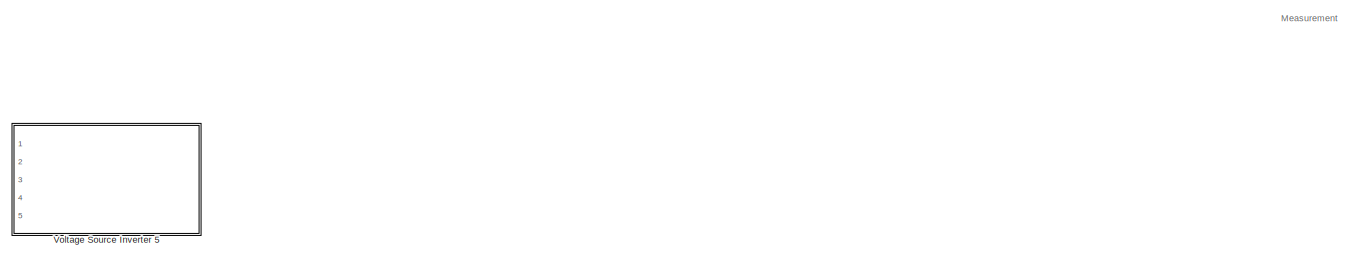
[diagram: root canvas - part 1/5, top center region]
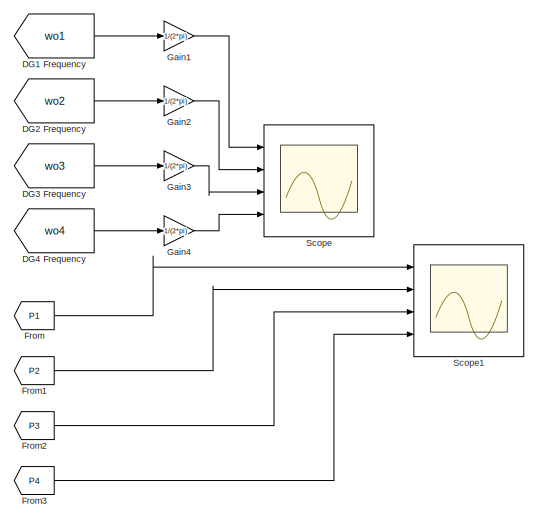
[diagram: root canvas - part 2/5, top right region]
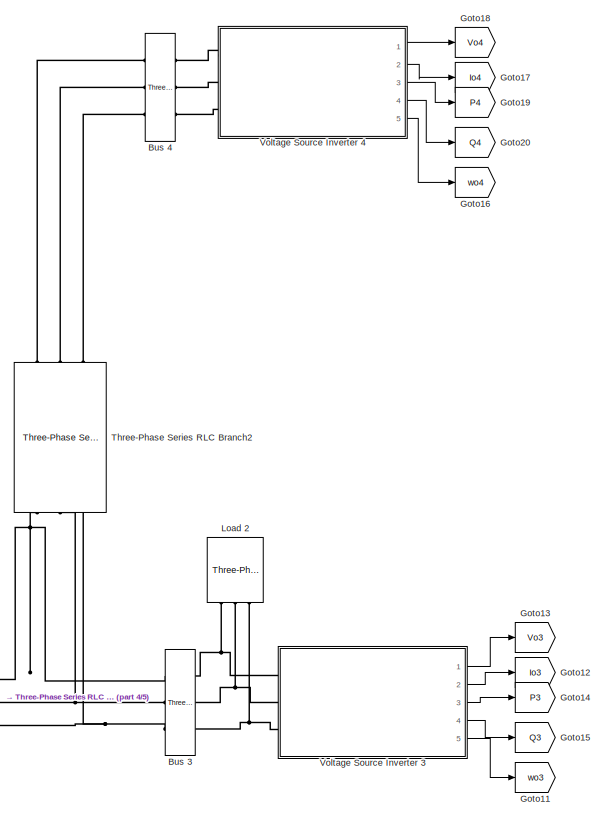
[diagram: root canvas - part 3/5, central region]
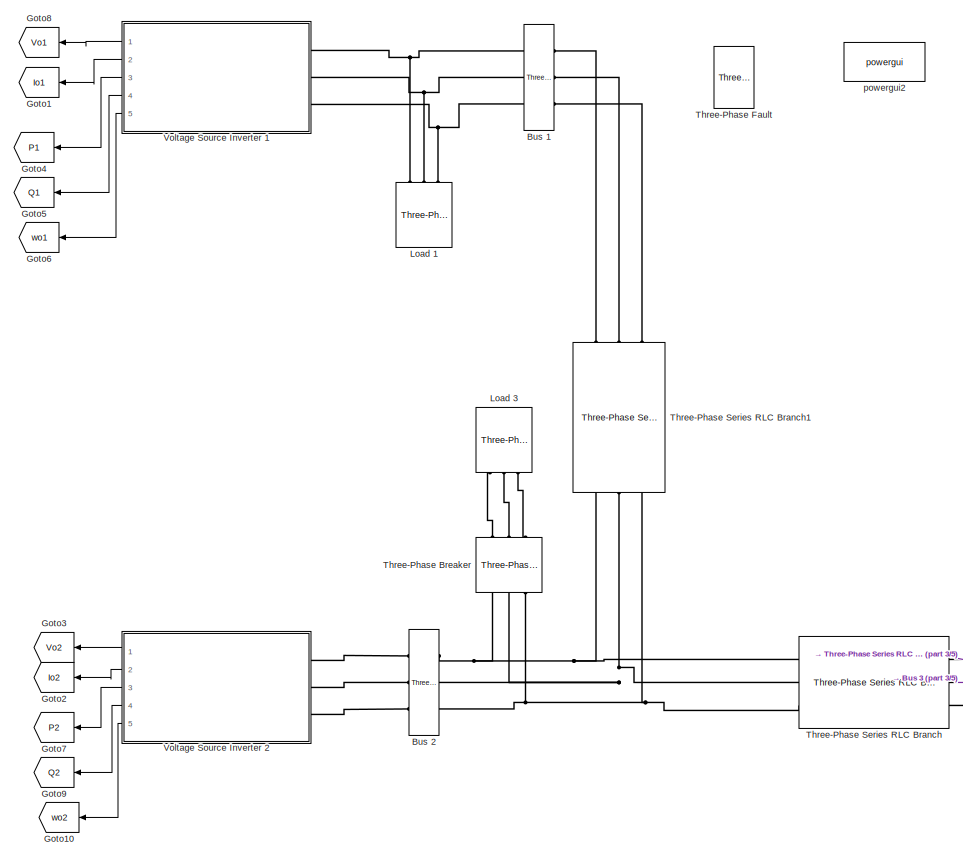
[diagram: root canvas - part 4/5, middle left region]
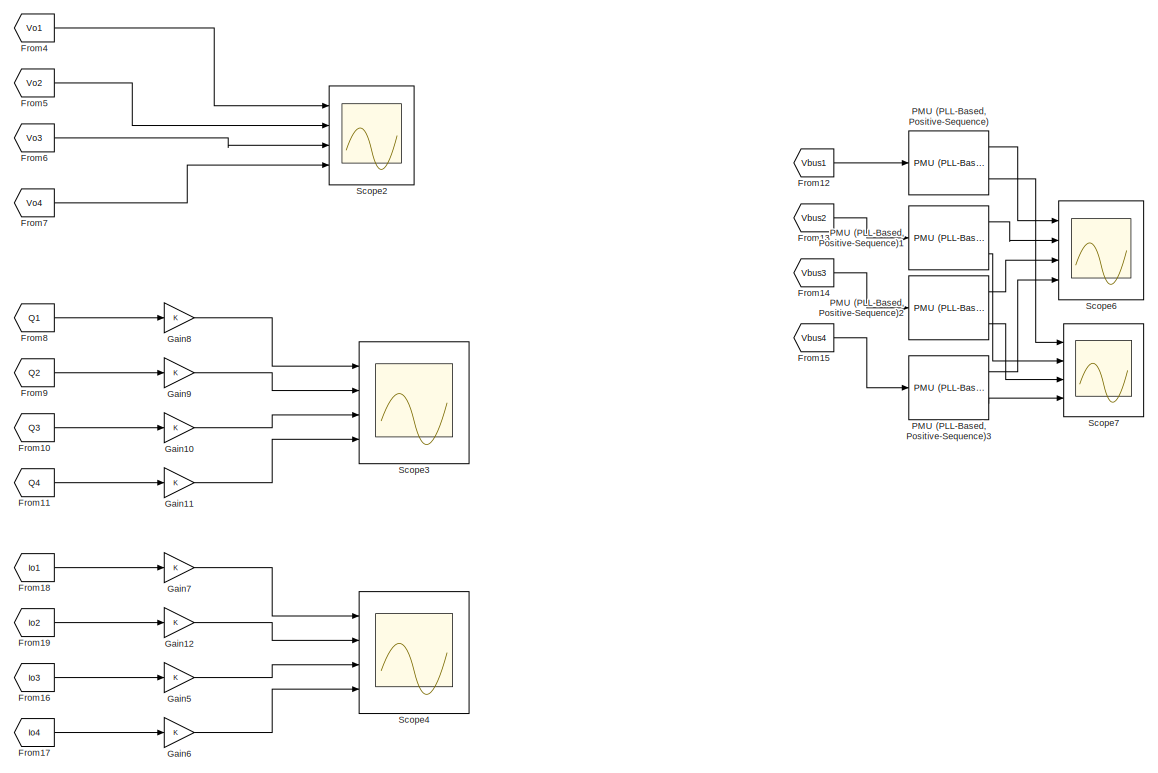
[diagram: root canvas - part 5/5, bottom right region]
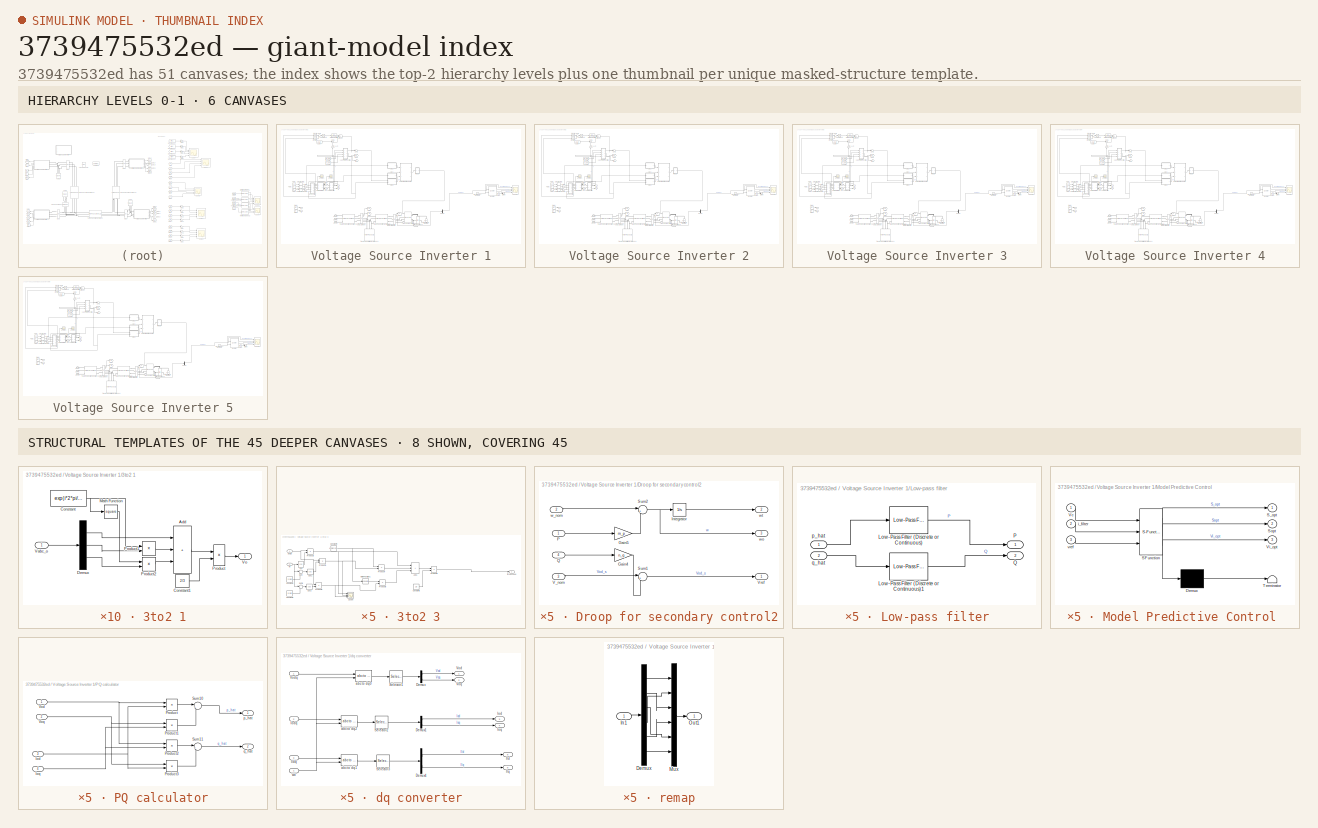
[diagram: thumbnail index - top-2 hierarchy levels (6 canvases) + 8 structural-template representatives of the remaining 45 canvases]
MODEL slx_3739475532ed
KIND model
CONFIG AbsTol = auto
CONFIG EnableMultiTasking = off
CONFIG FixedStep = auto
CONFIG MaxStep = auto
CONFIG MinStep = auto
CONFIG RelTol = 1e-3
CONFIG SampleTimeConstraint = Unconstrained
CONFIG SolverName = ode23tb
CONFIG StartTime = 0.0
CONFIG StopTime = 10
WORKSPACE source: mxarray member
WORKSPACE Ts: Simulink.Parameter (value not decoded)
WORKSPACE secondary_on: Simulink.Parameter (value not decoded)
BLOCK [Reference] Bus 1  REF=powerlib/Measurements/Three-Phase
V-I Measurement
  Ports = [0, 0, 0, 0, 0, 3, 3]
  SourceBlock = powerlib/Measurements/Three-Phase\nV-I Measurement
  SourceProductBaseCode = PS
  SourceType = Three-Phase VI Measurement
BLOCK [Reference] Bus 2  REF=powerlib/Measurements/Three-Phase
V-I Measurement
  Ports = [0, 0, 0, 0, 0, 3, 3]
  SourceBlock = powerlib/Measurements/Three-Phase\nV-I Measurement
  SourceProductBaseCode = PS
  SourceType = Three-Phase VI Measurement
BLOCK [Reference] Bus 3  REF=powerlib/Measurements/Three-Phase
V-I Measurement
  Ports = [0, 0, 0, 0, 0, 3, 3]
  SourceBlock = powerlib/Measurements/Three-Phase\nV-I Measurement
  SourceProductBaseCode = PS
  SourceType = Three-Phase VI Measurement
BLOCK [Reference] Bus 4  REF=powerlib/Measurements/Three-Phase
V-I Measurement
  Ports = [0, 0, 0, 0, 0, 3, 3]
  SourceBlock = powerlib/Measurements/Three-Phase\nV-I Measurement
  SourceProductBaseCode = PS
  SourceType = Three-Phase VI Measurement
BLOCK [From] DG1 Frequency
  GotoTag = wo1
BLOCK [From] DG2 Frequency
  GotoTag = wo2
BLOCK [From] DG3 Frequency
  GotoTag = wo3
BLOCK [From] DG4 Frequency
  GotoTag = wo4
BLOCK [From] From
  GotoTag = P1
BLOCK [From] From1
  GotoTag = P2
BLOCK [From] From10
  GotoTag = Q3
BLOCK [From] From11
  GotoTag = Q4
BLOCK [From] From12
  Commented = on
  GotoTag = Vbus1
  TagVisibility = global
BLOCK [From] From13
  Commented = on
  GotoTag = Vbus2
  TagVisibility = global
BLOCK [From] From14
  Commented = on
  GotoTag = Vbus3
  TagVisibility = global
BLOCK [From] From15
  Commented = on
  GotoTag = Vbus4
  TagVisibility = global
BLOCK [From] From16
  GotoTag = Io3
BLOCK [From] From17
  GotoTag = Io4
BLOCK [From] From18
  GotoTag = Io1
BLOCK [From] From19
  GotoTag = Io2
BLOCK [From] From2
  GotoTag = P3
BLOCK [From] From3
  GotoTag = P4
BLOCK [From] From4
  GotoTag = Vo1
BLOCK [From] From5
  GotoTag = Vo2
BLOCK [From] From6
  GotoTag = Vo3
BLOCK [From] From7
  GotoTag = Vo4
BLOCK [From] From8
  GotoTag = Q1
BLOCK [From] From9
  GotoTag = Q2
BLOCK [Gain] Gain1
  Gain = 1/(2*pi)
BLOCK [Gain] Gain10
BLOCK [Gain] Gain11
BLOCK [Gain] Gain12
BLOCK [Gain] Gain2
  Gain = 1/(2*pi)
BLOCK [Gain] Gain3
  Gain = 1/(2*pi)
BLOCK [Gain] Gain4
  Gain = 1/(2*pi)
BLOCK [Gain] Gain5
BLOCK [Gain] Gain6
BLOCK [Gain] Gain7
BLOCK [Gain] Gain8
BLOCK [Gain] Gain9
BLOCK [Goto] Goto1
  GotoTag = Io1
  NameLocation = top
BLOCK [Goto] Goto10
  GotoTag = wo2
  NameLocation = top
BLOCK [Goto] Goto11
  GotoTag = wo3
BLOCK [Goto] Goto12
  GotoTag = Io3
BLOCK [Goto] Goto13
  GotoTag = Vo3
BLOCK [Goto] Goto14
  GotoTag = P3
BLOCK [Goto] Goto15
  GotoTag = Q3
BLOCK [Goto] Goto16
  GotoTag = wo4
BLOCK [Goto] Goto17
  GotoTag = Io4
BLOCK [Goto] Goto18
  GotoTag = Vo4
BLOCK [Goto] Goto19
  GotoTag = P4
BLOCK [Goto] Goto2
  GotoTag = Io2
  NameLocation = top
BLOCK [Goto] Goto20
  GotoTag = Q4
BLOCK [Goto] Goto3
  GotoTag = Vo2
  NameLocation = top
BLOCK [Goto] Goto4
  GotoTag = P1
  NameLocation = top
BLOCK [Goto] Goto5
  GotoTag = Q1
  NameLocation = top
BLOCK [Goto] Goto6
  GotoTag = wo1
  NameLocation = top
BLOCK [Goto] Goto7
  GotoTag = P2
  NameLocation = top
BLOCK [Goto] Goto8
  GotoTag = Vo1
  NameLocation = top
BLOCK [Goto] Goto9
  GotoTag = Q2
  NameLocation = top
BLOCK [Reference] Load 1  REF=powerlib/Elements/Three-Phase
Series RLC Load
  AttributesFormatString = \n
  NameLocation = right
  Ports = [0, 0, 0, 0, 0, 3]
  SourceBlock = powerlib/Elements/Three-Phase\nSeries RLC Load
  SourceProductBaseCode = PS
  SourceType = Three-Phase Series RLC Load
BLOCK [Reference] Load 2  REF=powerlib/Elements/Three-Phase
Series RLC Load
  AttributesFormatString = \n
  NameLocation = right
  Ports = [0, 0, 0, 0, 0, 3]
  SourceBlock = powerlib/Elements/Three-Phase\nSeries RLC Load
  SourceProductBaseCode = PS
  SourceType = Three-Phase Series RLC Load
BLOCK [Reference] Load 3  REF=powerlib/Elements/Three-Phase
Series RLC Load
  AttributesFormatString = \n
  Commented = on
  NameLocation = left
  Ports = [0, 0, 0, 0, 0, 3]
  SourceBlock = powerlib/Elements/Three-Phase\nSeries RLC Load
  SourceProductBaseCode = PS
  SourceType = Three-Phase Series RLC Load
BLOCK [Reference] PMU (PLL-Based, Positive-Sequence)  REF=powerlib_meascontrol/Measurements/PMU
(PLL-Based,
Positive-Sequence)
  Commented = on
  Ports = [1, 3]
  SourceBlock = powerlib_meascontrol/Measurements/PMU\n(PLL-Based,\nPositive-Sequence)
  SourceProductBaseCode = PS
  SourceType = PMU (PLL-Based, Positive-Sequence)
BLOCK [Reference] PMU (PLL-Based, Positive-Sequence)1  REF=powerlib_meascontrol/Measurements/PMU
(PLL-Based,
Positive-Sequence)
  Commented = on
  Ports = [1, 3]
  SourceBlock = powerlib_meascontrol/Measurements/PMU\n(PLL-Based,\nPositive-Sequence)
  SourceProductBaseCode = PS
  SourceType = PMU (PLL-Based, Positive-Sequence)
BLOCK [Reference] PMU (PLL-Based, Positive-Sequence)2  REF=powerlib_meascontrol/Measurements/PMU
(PLL-Based,
Positive-Sequence)
  Commented = on
  Ports = [1, 3]
  SourceBlock = powerlib_meascontrol/Measurements/PMU\n(PLL-Based,\nPositive-Sequence)
  SourceProductBaseCode = PS
  SourceType = PMU (PLL-Based, Positive-Sequence)
BLOCK [Reference] PMU (PLL-Based, Positive-Sequence)3  REF=powerlib_meascontrol/Measurements/PMU
(PLL-Based,
Positive-Sequence)
  Commented = on
  Ports = [1, 3]
  SourceBlock = powerlib_meascontrol/Measurements/PMU\n(PLL-Based,\nPositive-Sequence)
  SourceProductBaseCode = PS
  SourceType = PMU (PLL-Based, Positive-Sequence)
BLOCK [Scope] Scope
  Floating = off
  NumInputPorts = 4
  Ports = [4]
  ScopeSpecificationString = Simulink.scopes.TimeScopeBlockCfg('CurrentConfiguration', extmgr.ConfigurationSet(extmgr.Configuration('Core','General UI',true,'FigureColor',[1 1 1]),extmgr.Configuration('Core','Source UI',true),extmgr.Configuration('Sources','WiredSimulink',true,'DataLoggingVariableName','ScopeData1'),extmgr.Configuration('Visuals','Time Domain',true,'SerializedDisplays',{struct('MinYLimReal','49.66579','MaxYLi...<+2348ch>
BLOCK [Scope] Scope1
  Floating = off
  NumInputPorts = 4
  Ports = [4]
  ScopeSpecificationString = Simulink.scopes.TimeScopeBlockCfg('CurrentConfiguration', extmgr.ConfigurationSet(extmgr.Configuration('Core','General UI',true,'FigureColor',[1 1 1]),extmgr.Configuration('Core','Source UI',true),extmgr.Configuration('Sources','WiredSimulink',true,'DataLoggingVariableName','ScopeData2'),extmgr.Configuration('Visuals','Time Domain',true,'SerializedDisplays',{struct('MinYLimReal','-2794.48265','Max...<+1970ch>
BLOCK [Scope] Scope2
  Floating = off
  NumInputPorts = 4
  Ports = [4]
  ScopeSpecificationString = Simulink.scopes.TimeScopeBlockCfg('CurrentConfiguration', extmgr.ConfigurationSet(extmgr.Configuration('Core','General UI',true,'FigureColor',[1 1 1]),extmgr.Configuration('Core','Source UI',true),extmgr.Configuration('Sources','WiredSimulink',true,'DataLoggingVariableName','ScopeData3','DataLogging',true),extmgr.Configuration('Visuals','Time Domain',true,'SerializedDisplays',{struct('MinYLimReal'...<+4400ch>
BLOCK [Scope] Scope3
  Floating = off
  NumInputPorts = 4
  Ports = [4]
  ScopeSpecificationString = Simulink.scopes.TimeScopeBlockCfg('CurrentConfiguration', extmgr.ConfigurationSet(extmgr.Configuration('Core','General UI',true),extmgr.Configuration('Core','Source UI',true),extmgr.Configuration('Sources','WiredSimulink',true,'DataLoggingVariableName','ScopeData4'),extmgr.Configuration('Visuals','Time Domain',true,'SerializedDisplays',{struct('MinYLimReal','-4459.17351','MaxYLimReal','28263.31736...<+1829ch>
BLOCK [Scope] Scope4
  Floating = off
  NumInputPorts = 4
  Ports = [4]
  ScopeSpecificationString = Simulink.scopes.TimeScopeBlockCfg('CurrentConfiguration', extmgr.ConfigurationSet(extmgr.Configuration('Core','General UI',true),extmgr.Configuration('Core','Source UI',true),extmgr.Configuration('Sources','WiredSimulink',true,'DataLoggingVariableName','ScopeData1'),extmgr.Configuration('Visuals','Time Domain',true,'SerializedDisplays',{struct('MinYLimReal','-79.68709','MaxYLimReal','83.20742','YL...<+3977ch>
BLOCK [Scope] Scope6
  Commented = on
  Floating = off
  NumInputPorts = 4
  Ports = [4]
  ScopeSpecificationString = Simulink.scopes.TimeScopeBlockCfg('CurrentConfiguration', extmgr.ConfigurationSet(extmgr.Configuration('Core','General UI',true,'FigureColor',[1 1 1]),extmgr.Configuration('Core','Source UI',true),extmgr.Configuration('Sources','WiredSimulink',true,'DataLoggingVariableName','ScopeData6'),extmgr.Configuration('Visuals','Time Domain',true,'SerializedDisplays',{struct('MinYLimReal','0.89706','MaxYLim...<+2081ch>
BLOCK [Scope] Scope7
  Commented = on
  Floating = off
  NumInputPorts = 4
  Ports = [4]
  ScopeSpecificationString = Simulink.scopes.TimeScopeBlockCfg('CurrentConfiguration', extmgr.ConfigurationSet(extmgr.Configuration('Core','General UI',true,'FigureColor',[1 1 1]),extmgr.Configuration('Core','Source UI',true),extmgr.Configuration('Sources','WiredSimulink',true,'DataLoggingVariableName','ScopeData7'),extmgr.Configuration('Visuals','Time Domain',true,'SerializedDisplays',{struct('MinYLimReal','49.48688','MaxYLi...<+1950ch>
BLOCK [Reference] Three-Phase Breaker  REF=powerlib/Elements/Three-Phase Breaker
  Commented = on
  NameLocation = right
  Ports = [0, 0, 0, 0, 0, 3, 3]
  SourceBlock = powerlib/Elements/Three-Phase Breaker
  SourceProductBaseCode = PS
  SourceType = Three-Phase Breaker
BLOCK [Reference] Three-Phase Fault  REF=powerlib/Elements/Three-Phase Fault
  Commented = on
  Ports = [0, 0, 0, 0, 0, 3]
  SourceBlock = powerlib/Elements/Three-Phase Fault
  SourceProductBaseCode = PS
  SourceType = Three-Phase Fault
BLOCK [Reference] Three-Phase Series RLC Branch  REF=powerlib/Elements/Three-Phase
Series RLC Branch
  AttributesFormatString = \n
  Ports = [0, 0, 0, 0, 0, 3, 3]
  SourceBlock = powerlib/Elements/Three-Phase\nSeries RLC Branch
  SourceProductBaseCode = PS
  SourceType = Three-Phase Series RLC Branch
BLOCK [Reference] Three-Phase Series RLC Branch1  REF=powerlib/Elements/Three-Phase
Series RLC Branch
  AttributesFormatString = \n
  NameLocation = left
  Ports = [0, 0, 0, 0, 0, 3, 3]
  SourceBlock = powerlib/Elements/Three-Phase\nSeries RLC Branch
  SourceProductBaseCode = PS
  SourceType = Three-Phase Series RLC Branch
BLOCK [Reference] Three-Phase Series RLC Branch2  REF=powerlib/Elements/Three-Phase
Series RLC Branch
  AttributesFormatString = \n
  NameLocation = left
  Ports = [0, 0, 0, 0, 0, 3, 3]
  SourceBlock = powerlib/Elements/Three-Phase\nSeries RLC Branch
  SourceProductBaseCode = PS
  SourceType = Three-Phase Series RLC Branch
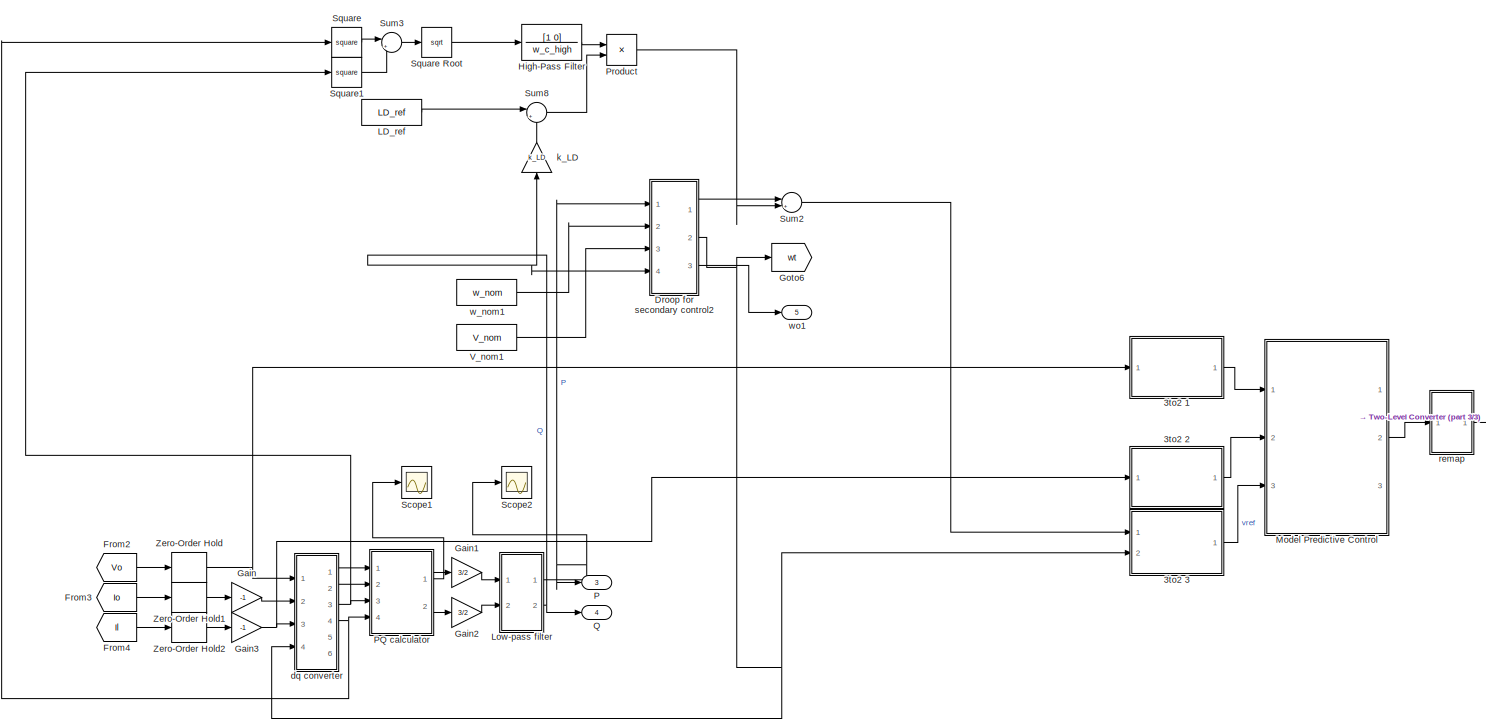
[diagram: Voltage Source Inverter 1 - part 1/3, top left region]
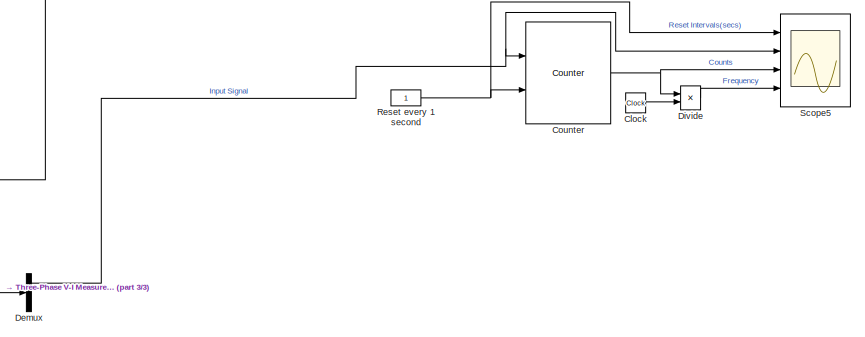
[diagram: Voltage Source Inverter 1 - part 2/3, middle right region]
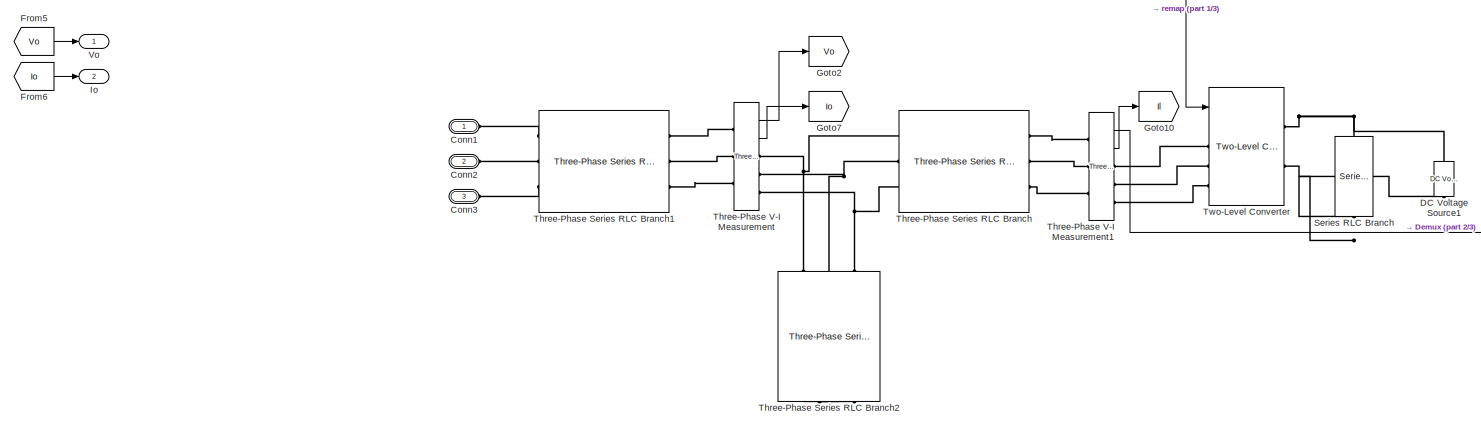
[diagram: Voltage Source Inverter 1 - part 3/3, bottom center region]
BLOCK [SubSystem] Voltage Source Inverter 1
  Ports = [0, 5, 0, 0, 0, 3]
  RequestExecContextInheritance = off
BLOCK [SubSystem] Voltage Source Inverter 1/3to2 1
  Ports = [1, 1]
  RequestExecContextInheritance = off
BLOCK [Sum] Voltage Source Inverter 1/3to2 1/Add
  IconShape = rectangular
  Inputs = +++
  Ports = [3, 1]
BLOCK [Constant] Voltage Source Inverter 1/3to2 1/Constant
  Value = exp(i*2*pi/3)
BLOCK [Constant] Voltage Source Inverter 1/3to2 1/Constant1
  Value = 2/3
BLOCK [Demux] Voltage Source Inverter 1/3to2 1/Demux
  NameLocation = top
  Outputs = 3
  Ports = [1, 3]
BLOCK [Math] Voltage Source Inverter 1/3to2 1/Math Function
  Operator = square
  Ports = [1, 1]
  SignedPower = on
BLOCK [Product] Voltage Source Inverter 1/3to2 1/Product
  Ports = [2, 1]
  RndMeth = Zero
BLOCK [Product] Voltage Source Inverter 1/3to2 1/Product1
  Ports = [2, 1]
  RndMeth = Zero
BLOCK [Product] Voltage Source Inverter 1/3to2 1/Product2
  Ports = [2, 1]
  RndMeth = Zero
BLOCK [Inport] Voltage Source Inverter 1/3to2 1/Vabc_o 
BLOCK [Outport] Voltage Source Inverter 1/3to2 1/Vo
  VectorParamsAs1DForOutWhenUnconnected = off
BLOCK [SubSystem] Voltage Source Inverter 1/3to2 2
  Ports = [1, 1]
  RequestExecContextInheritance = off
BLOCK [Sum] Voltage Source Inverter 1/3to2 2/Add
  IconShape = rectangular
  Inputs = +++
  Ports = [3, 1]
BLOCK [Constant] Voltage Source Inverter 1/3to2 2/Constant
  Value = exp(i*2*pi/3)
BLOCK [Constant] Voltage Source Inverter 1/3to2 2/Constant1
  Value = 2/3
BLOCK [Demux] Voltage Source Inverter 1/3to2 2/Demux
  NameLocation = top
  Outputs = 3
  Ports = [1, 3]
BLOCK [Inport] Voltage Source Inverter 1/3to2 2/Iabc_o 
BLOCK [Outport] Voltage Source Inverter 1/3to2 2/Il
  VectorParamsAs1DForOutWhenUnconnected = off
BLOCK [Math] Voltage Source Inverter 1/3to2 2/Math Function
  Operator = square
  Ports = [1, 1]
  SignedPower = on
BLOCK [Product] Voltage Source Inverter 1/3to2 2/Product
  Ports = [2, 1]
  RndMeth = Zero
BLOCK [Product] Voltage Source Inverter 1/3to2 2/Product1
  Ports = [2, 1]
  RndMeth = Zero
BLOCK [Product] Voltage Source Inverter 1/3to2 2/Product2
  Ports = [2, 1]
  RndMeth = Zero
BLOCK [SubSystem] Voltage Source Inverter 1/3to2 3
  Ports = [2, 1]
  RequestExecContextInheritance = off
BLOCK [Sum] Voltage Source Inverter 1/3to2 3/Add1
  IconShape = rectangular
  Inputs = +++
  Ports = [3, 1]
BLOCK [Constant] Voltage Source Inverter 1/3to2 3/Constant2
  Value = 2*pi/3
BLOCK [Constant] Voltage Source Inverter 1/3to2 3/Constant3
  Value = -2*pi/3
BLOCK [Constant] Voltage Source Inverter 1/3to2 3/Constant4
  Value = exp(i*2*pi/3)
BLOCK [Constant] Voltage Source Inverter 1/3to2 3/Constant5
  Value = 2/3
BLOCK [Trigonometry] Voltage Source Inverter 1/3to2 3/Cos
  Operator = cos
  Ports = [1, 1]
BLOCK [Trigonometry] Voltage Source Inverter 1/3to2 3/Cos1
  Operator = cos
  Ports = [1, 1]
BLOCK [Trigonometry] Voltage Source Inverter 1/3to2 3/Cos2
  Operator = cos
  Ports = [1, 1]
BLOCK [Math] Voltage Source Inverter 1/3to2 3/Math Function1
  Operator = square
  Ports = [1, 1]
  SignedPower = on
BLOCK [Product] Voltage Source Inverter 1/3to2 3/Product3
  Ports = [2, 1]
  RndMeth = Zero
BLOCK [Product] Voltage Source Inverter 1/3to2 3/Product4
  Ports = [2, 1]
  RndMeth = Zero
BLOCK [Product] Voltage Source Inverter 1/3to2 3/Product5
  Ports = [2, 1]
  RndMeth = Zero
BLOCK [Product] Voltage Source Inverter 1/3to2 3/Product6
  Ports = [2, 1]
  RndMeth = Zero
BLOCK [Product] Voltage Source Inverter 1/3to2 3/Product7
  Ports = [2, 1]
  RndMeth = Zero
BLOCK [Product] Voltage Source Inverter 1/3to2 3/Product8
  Ports = [2, 1]
  RndMeth = Zero
BLOCK [Scope] Voltage Source Inverter 1/3to2 3/Scope
  Floating = off
  NumInputPorts = 3
  Ports = [3]
  ScopeSpecificationString = Simulink.scopes.TimeScopeBlockCfg('CurrentConfiguration', extmgr.ConfigurationSet(extmgr.Configuration('Core','General UI',true),extmgr.Configuration('Core','Source UI',true),extmgr.Configuration('Sources','WiredSimulink',true,'DataLoggingVariableName','ScopeData4'),extmgr.Configuration('Visuals','Time Domain',true,'SerializedDisplays',{struct('MinYLimReal','-388.90873','MaxYLimReal','388.90873','...<+2068ch>  <repeated x5 — deduplicated; at blocks: Scope>
BLOCK [Sum] Voltage Source Inverter 1/3to2 3/Sum
  Inputs = |++
  Ports = [2, 1]
BLOCK [Sum] Voltage Source Inverter 1/3to2 3/Sum1
  Inputs = |++
  Ports = [2, 1]
BLOCK [Inport] Voltage Source Inverter 1/3to2 3/single 
BLOCK [Outport] Voltage Source Inverter 1/3to2 3/threePhase
  VectorParamsAs1DForOutWhenUnconnected = off
BLOCK [Inport] Voltage Source Inverter 1/3to2 3/wt 
  Port = 2
BLOCK [Clock] Voltage Source Inverter 1/Clock
  Decimation = 1
BLOCK [PMIOPort] Voltage Source Inverter 1/Conn1
  Side = Left
BLOCK [PMIOPort] Voltage Source Inverter 1/Conn2
  Port = 2
  Side = Left
BLOCK [PMIOPort] Voltage Source Inverter 1/Conn3
  Port = 3
  Side = Left
BLOCK [Reference] Voltage Source Inverter 1/Counter  REF=dspswit3/Counter
  Ports = [2, 1]
  SourceBlock = dspswit3/Counter
  SourceProductBaseCode = DS
  SourceType = Counter
BLOCK [Reference] Voltage Source Inverter 1/DC Voltage Source1  REF=powerlib/Electrical
Sources/DC Voltage Source
  NameLocation = right
  Ports = [0, 0, 0, 0, 0, 1, 1]
  SourceBlock = powerlib/Electrical\nSources/DC Voltage Source
  SourceProductBaseCode = PS
  SourceType = DC Voltage Source
BLOCK [Demux] Voltage Source Inverter 1/Demux
  Outputs = 3
  Ports = [1, 3]
BLOCK [Product] Voltage Source Inverter 1/Divide
  Inputs = */
  Ports = [2, 1]
BLOCK [SubSystem] Voltage Source Inverter 1/Droop for secondary control2
  Ports = [4, 3]
  RequestExecContextInheritance = off
BLOCK [Gain] Voltage Source Inverter 1/Droop for secondary control2/Gain4
  Gain = n_q
BLOCK [Gain] Voltage Source Inverter 1/Droop for secondary control2/Gain5
  Gain = m_p
BLOCK [Integrator] Voltage Source Inverter 1/Droop for secondary control2/Integrator
  Ports = [1, 1]
  WrapState = on
  WrappedStateLowerValue = 0
  WrappedStateUpperValue = 2*pi
BLOCK [Inport] Voltage Source Inverter 1/Droop for secondary control2/P
BLOCK [Inport] Voltage Source Inverter 1/Droop for secondary control2/Q
  Port = 4
BLOCK [Sum] Voltage Source Inverter 1/Droop for secondary control2/Sum1
  Inputs = |+-
  Ports = [2, 1]
BLOCK [Sum] Voltage Source Inverter 1/Droop for secondary control2/Sum2
  Inputs = |+-
  Ports = [2, 1]
BLOCK [Inport] Voltage Source Inverter 1/Droop for secondary control2/V_nom
  Port = 3
BLOCK [Outport] Voltage Source Inverter 1/Droop for secondary control2/Vref
BLOCK [Inport] Voltage Source Inverter 1/Droop for secondary control2/w_nom
  Port = 2
BLOCK [Outport] Voltage Source Inverter 1/Droop for secondary control2/wo
  Port = 3
BLOCK [Outport] Voltage Source Inverter 1/Droop for secondary control2/wt
  Port = 2
BLOCK [From] Voltage Source Inverter 1/From2
  GotoTag = Vo
BLOCK [From] Voltage Source Inverter 1/From3
  GotoTag = Io
BLOCK [From] Voltage Source Inverter 1/From4
  GotoTag = Il
BLOCK [From] Voltage Source Inverter 1/From5
  GotoTag = Vo
BLOCK [From] Voltage Source Inverter 1/From6
  GotoTag = Io
BLOCK [Gain] Voltage Source Inverter 1/Gain
  Gain = -1
BLOCK [Gain] Voltage Source Inverter 1/Gain1
  Gain = 3/2
BLOCK [Gain] Voltage Source Inverter 1/Gain2
  Gain = 3/2
BLOCK [Gain] Voltage Source Inverter 1/Gain3
  Gain = -1
BLOCK [Goto] Voltage Source Inverter 1/Goto10
  GotoTag = Il
BLOCK [Goto] Voltage Source Inverter 1/Goto2
  GotoTag = Vo
BLOCK [Goto] Voltage Source Inverter 1/Goto6
  GotoTag = wt
BLOCK [Goto] Voltage Source Inverter 1/Goto7
  GotoTag = Io
BLOCK [TransferFcn] Voltage Source Inverter 1/High-Pass Filter
  Denominator = w_c_high
  Numerator = [1 0]
BLOCK [Outport] Voltage Source Inverter 1/Io
  Port = 2
BLOCK [Constant] Voltage Source Inverter 1/LD_ref
  Value = LD_ref
BLOCK [SubSystem] Voltage Source Inverter 1/Low-pass filter
  Ports = [2, 2]
  RequestExecContextInheritance = off
BLOCK [Reference] Voltage Source Inverter 1/Low-pass filter/Low-Pass Filter (Discrete or Continuous)  REF=eeGeneralControl/Low-Pass Filter
(Discrete or Continuous)
  Ports = [1, 1]
  SourceBlock = eeGeneralControl/Low-Pass Filter\n(Discrete or Continuous)
  SourceProductBaseCode = PS
  SourceType = Low-Pass Filter (Discrete or Continuous)
BLOCK [Reference] Voltage Source Inverter 1/Low-pass filter/Low-Pass Filter (Discrete or Continuous)1  REF=eeGeneralControl/Low-Pass Filter
(Discrete or Continuous)
  Ports = [1, 1]
  SourceBlock = eeGeneralControl/Low-Pass Filter\n(Discrete or Continuous)
  SourceProductBaseCode = PS
  SourceType = Low-Pass Filter (Discrete or Continuous)
BLOCK [Outport] Voltage Source Inverter 1/Low-pass filter/P
BLOCK [Outport] Voltage Source Inverter 1/Low-pass filter/Q
  Port = 2
BLOCK [Inport] Voltage Source Inverter 1/Low-pass filter/p_hat
BLOCK [Inport] Voltage Source Inverter 1/Low-pass filter/q_hat
  Port = 2
BLOCK [SubSystem] Voltage Source Inverter 1/Model Predictive Control 
  ErrorFcn = Stateflow.Translate.translate
  NameLocation = top
  PermitHierarchicalResolution = ExplicitOnly
  Ports = [3, 3]
  RequestExecContextInheritance = off
  SFBlockType = MATLAB Function
  TreatAsAtomicUnit = on
BLOCK [Demux] Voltage Source Inverter 1/Model Predictive Control / Demux 
  Outputs = 1
  Ports = [1, 1]
BLOCK [S-Function] Voltage Source Inverter 1/Model Predictive Control / SFunction 
  EnableBusSupport = on
  FunctionName = sf_sfun
  Parameters = Cfilter,Lfilter,Vdc,modT
  PortCounts = [3 4]
  Ports = [3, 4]
  SFcnIsStateOwnerBlock = off
  SFunctionDeploymentMode = off
  Tag = Stateflow S-Function 2
BLOCK [Terminator] Voltage Source Inverter 1/Model Predictive Control / Terminator 
BLOCK [Outport] Voltage Source Inverter 1/Model Predictive Control /S_opt
  VectorParamsAs1DForOutWhenUnconnected = off
BLOCK [Outport] Voltage Source Inverter 1/Model Predictive Control /Sopt
  Port = 2
  VectorParamsAs1DForOutWhenUnconnected = off
BLOCK [Inport] Voltage Source Inverter 1/Model Predictive Control /Vc
BLOCK [Outport] Voltage Source Inverter 1/Model Predictive Control /Vi_opt
  Port = 3
  VectorParamsAs1DForOutWhenUnconnected = off
BLOCK [Inport] Voltage Source Inverter 1/Model Predictive Control /i_filter
  Port = 2
BLOCK [Inport] Voltage Source Inverter 1/Model Predictive Control /vref
  Port = 3
BLOCK [Outport] Voltage Source Inverter 1/P
  Port = 3
BLOCK [SubSystem] Voltage Source Inverter 1/PQ calculator
  Ports = [4, 2]
  RequestExecContextInheritance = off
BLOCK [Inport] Voltage Source Inverter 1/PQ calculator/Iod
  Port = 3
BLOCK [Inport] Voltage Source Inverter 1/PQ calculator/Ioq
  Port = 4
BLOCK [Product] Voltage Source Inverter 1/PQ calculator/Product
  Ports = [2, 1]
BLOCK [Product] Voltage Source Inverter 1/PQ calculator/Product1
  Ports = [2, 1]
BLOCK [Product] Voltage Source Inverter 1/PQ calculator/Product2
  Ports = [2, 1]
BLOCK [Product] Voltage Source Inverter 1/PQ calculator/Product3
  Ports = [2, 1]
BLOCK [Sum] Voltage Source Inverter 1/PQ calculator/Sum10
  Inputs = |++
  Ports = [2, 1]
BLOCK [Sum] Voltage Source Inverter 1/PQ calculator/Sum11
  Inputs = |+-
  Ports = [2, 1]
BLOCK [Inport] Voltage Source Inverter 1/PQ calculator/Vod
BLOCK [Inport] Voltage Source Inverter 1/PQ calculator/Voq
  Port = 2
BLOCK [Outport] Voltage Source Inverter 1/PQ calculator/p_hat
BLOCK [Outport] Voltage Source Inverter 1/PQ calculator/q_hat
  Port = 2
BLOCK [Product] Voltage Source Inverter 1/Product
  Ports = [2, 1]
BLOCK [Outport] Voltage Source Inverter 1/Q
  Port = 4
BLOCK [Constant] Voltage Source Inverter 1/Reset every 1 second
BLOCK [Scope] Voltage Source Inverter 1/Scope1
  Floating = off
  NumInputPorts = 1
  Ports = [1]
  ScopeSpecificationString = Simulink.scopes.TimeScopeBlockCfg('CurrentConfiguration', extmgr.ConfigurationSet(extmgr.Configuration('Core','General UI',true),extmgr.Configuration('Core','Source UI',true),extmgr.Configuration('Sources','WiredSimulink',true,'DataLoggingVariableName','ScopeData1'),extmgr.Configuration('Visuals','Time Domain',true,'SerializedDisplays',{struct('MinYLimReal','-26212.54117','MaxYLimReal','19346.5566...<+1483ch>  <repeated x5 — deduplicated; at blocks: Scope1>
BLOCK [Scope] Voltage Source Inverter 1/Scope2
  Floating = off
  NumInputPorts = 1
  Ports = [1]
  ScopeSpecificationString = Simulink.scopes.TimeScopeBlockCfg('CurrentConfiguration', extmgr.ConfigurationSet(extmgr.Configuration('Core','General UI',true),extmgr.Configuration('Core','Source UI',true),extmgr.Configuration('Sources','WiredSimulink',true,'DataLoggingVariableName','ScopeData3'),extmgr.Configuration('Visuals','Time Domain',true,'SerializedDisplays',{struct('MinYLimReal','-11554.77092','MaxYLimReal','22904.3564...<+1468ch>  <repeated x5 — deduplicated; at blocks: Scope2>
BLOCK [Scope] Voltage Source Inverter 1/Scope5
  Floating = off
  NumInputPorts = 4
  Ports = [4]
  ScopeSpecificationString = Simulink.scopes.TimeScopeBlockCfg('CurrentConfiguration', extmgr.ConfigurationSet(extmgr.Configuration('Core','General UI',true,'FigureColor',[1 1 1]),extmgr.Configuration('Core','Source UI',true),extmgr.Configuration('Sources','WiredSimulink',true,'DataLoggingVariableName','ScopeData2'),extmgr.Configuration('Visuals','Time Domain',true,'TimeAxisLabels','All','SerializedDisplays',{struct('MinYLimR...<+4465ch>
BLOCK [Reference] Voltage Source Inverter 1/Series RLC Branch  REF=powerlib/Elements/Series RLC Branch
  NameLocation = left
  Ports = [0, 0, 0, 0, 0, 1, 1]
  SourceBlock = powerlib/Elements/Series RLC Branch
  SourceProductBaseCode = PS
  SourceType = Series RLC Branch
BLOCK [Math] Voltage Source Inverter 1/Square
  Operator = square
  Ports = [1, 1]
BLOCK [Sqrt] Voltage Source Inverter 1/Square Root
BLOCK [Math] Voltage Source Inverter 1/Square1
  Operator = square
  Ports = [1, 1]
BLOCK [Sum] Voltage Source Inverter 1/Sum2
  Inputs = |+-
  Ports = [2, 1]
BLOCK [Sum] Voltage Source Inverter 1/Sum3
  Inputs = |++
  Ports = [2, 1]
BLOCK [Sum] Voltage Source Inverter 1/Sum8
  Inputs = |++
  Ports = [2, 1]
BLOCK [Reference] Voltage Source Inverter 1/Three-Phase Series RLC Branch  REF=powerlib/Elements/Three-Phase
Series RLC Branch
  AttributesFormatString = \n
  Ports = [0, 0, 0, 0, 0, 3, 3]
  SourceBlock = powerlib/Elements/Three-Phase\nSeries RLC Branch
  SourceProductBaseCode = PS
  SourceType = Three-Phase Series RLC Branch
BLOCK [Reference] Voltage Source Inverter 1/Three-Phase Series RLC Branch1  REF=powerlib/Elements/Three-Phase
Series RLC Branch
  AttributesFormatString = \n
  Ports = [0, 0, 0, 0, 0, 3, 3]
  SourceBlock = powerlib/Elements/Three-Phase\nSeries RLC Branch
  SourceProductBaseCode = PS
  SourceType = Three-Phase Series RLC Branch
BLOCK [Reference] Voltage Source Inverter 1/Three-Phase Series RLC Branch2  REF=powerlib/Elements/Three-Phase
Series RLC Branch
  AttributesFormatString = \n
  NameLocation = left
  Ports = [0, 0, 0, 0, 0, 3, 3]
  SourceBlock = powerlib/Elements/Three-Phase\nSeries RLC Branch
  SourceProductBaseCode = PS
  SourceType = Three-Phase Series RLC Branch
BLOCK [Reference] Voltage Source Inverter 1/Three-Phase V-I Measurement  REF=powerlib/Measurements/Three-Phase
V-I Measurement
  Ports = [0, 2, 0, 0, 0, 3, 3]
  SourceBlock = powerlib/Measurements/Three-Phase\nV-I Measurement
  SourceProductBaseCode = PS
  SourceType = Three-Phase VI Measurement
BLOCK [Reference] Voltage Source Inverter 1/Three-Phase V-I Measurement1  REF=powerlib/Measurements/Three-Phase
V-I Measurement
  Ports = [0, 2, 0, 0, 0, 3, 3]
  SourceBlock = powerlib/Measurements/Three-Phase\nV-I Measurement
  SourceProductBaseCode = PS
  SourceType = Three-Phase VI Measurement
BLOCK [Reference] Voltage Source Inverter 1/Two-Level Converter  REF=powerlib/Power
Electronics/Two-Level Converter
  Ports = [2, 0, 0, 0, 0, 3, 2]
  SourceBlock = powerlib/Power\nElectronics/Two-Level Converter
  SourceProductBaseCode = PS
  SourceType = Two-Level Converter
BLOCK [Constant] Voltage Source Inverter 1/V_nom1
  Value = V_nom
BLOCK [Outport] Voltage Source Inverter 1/Vo
BLOCK [ZeroOrderHold] Voltage Source Inverter 1/Zero-Order Hold
  SampleTime = modT
BLOCK [ZeroOrderHold] Voltage Source Inverter 1/Zero-Order Hold1
  SampleTime = modT
BLOCK [ZeroOrderHold] Voltage Source Inverter 1/Zero-Order Hold2
  SampleTime = modT
BLOCK [SubSystem] Voltage Source Inverter 1/dq converter
  Ports = [4, 6]
  RequestExecContextInheritance = off
BLOCK [Demux] Voltage Source Inverter 1/dq converter/Demux
  Outputs = 2
  Ports = [1, 2]
BLOCK [Demux] Voltage Source Inverter 1/dq converter/Demux1
  Outputs = 2
  Ports = [1, 2]
BLOCK [Demux] Voltage Source Inverter 1/dq converter/Demux4
  Outputs = 2
  Ports = [1, 2]
BLOCK [Outport] Voltage Source Inverter 1/dq converter/Ild
  Port = 5
BLOCK [Inport] Voltage Source Inverter 1/dq converter/Ildq
  Port = 3
BLOCK [Outport] Voltage Source Inverter 1/dq converter/Ilq
  Port = 6
BLOCK [Outport] Voltage Source Inverter 1/dq converter/Iod
  Port = 3
BLOCK [Inport] Voltage Source Inverter 1/dq converter/Iodq
  Port = 2
BLOCK [Outport] Voltage Source Inverter 1/dq converter/Ioq
  Port = 4
BLOCK [Selector] Voltage Source Inverter 1/dq converter/Selector1
  IndexOptions = Index vector (dialog)
  Indices = [1 2]
  InputPortWidth = 3
  OutputSizes = 1
  Ports = [1, 1]
BLOCK [Selector] Voltage Source Inverter 1/dq converter/Selector2
  IndexOptions = Index vector (dialog)
  Indices = [1 2]
  InputPortWidth = 3
  OutputSizes = 1
  Ports = [1, 1]
BLOCK [Selector] Voltage Source Inverter 1/dq converter/Selector3
  IndexOptions = Index vector (dialog)
  Indices = [1 2]
  InputPortWidth = 3
  OutputSizes = 1
  Ports = [1, 1]
BLOCK [Outport] Voltage Source Inverter 1/dq converter/Vod
BLOCK [Inport] Voltage Source Inverter 1/dq converter/Vodq
BLOCK [Outport] Voltage Source Inverter 1/dq converter/Voq
  Port = 2
BLOCK [Reference] Voltage Source Inverter 1/dq converter/abc to dq0  REF=powerlib_meascontrol/Transformations/abc to dq0
  Ports = [2, 1]
  SourceBlock = powerlib_meascontrol/Transformations/abc to dq0
  SourceProductBaseCode = PS
  SourceType = abc to dq0 Transformation
BLOCK [Reference] Voltage Source Inverter 1/dq converter/abc to dq1  REF=powerlib_meascontrol/Transformations/abc to dq0
  Ports = [2, 1]
  SourceBlock = powerlib_meascontrol/Transformations/abc to dq0
  SourceProductBaseCode = PS
  SourceType = abc to dq0 Transformation
BLOCK [Reference] Voltage Source Inverter 1/dq converter/abc to dq2  REF=powerlib_meascontrol/Transformations/abc to dq0
  Ports = [2, 1]
  SourceBlock = powerlib_meascontrol/Transformations/abc to dq0
  SourceProductBaseCode = PS
  SourceType = abc to dq0 Transformation
BLOCK [Inport] Voltage Source Inverter 1/dq converter/wo
  Port = 4
BLOCK [Gain] Voltage Source Inverter 1/k_LD
  Gain = k_LD
  NameLocation = right
BLOCK [SubSystem] Voltage Source Inverter 1/remap
  Ports = [1, 1]
  RequestExecContextInheritance = off
BLOCK [Demux] Voltage Source Inverter 1/remap/Demux
  NameLocation = top
  Outputs = 6
  Ports = [1, 6]
BLOCK [Inport] Voltage Source Inverter 1/remap/In1
BLOCK [Mux] Voltage Source Inverter 1/remap/Mux
  DisplayOption = bar
  Inputs = 6
  Ports = [6, 1]
BLOCK [Outport] Voltage Source Inverter 1/remap/Out1
BLOCK [Constant] Voltage Source Inverter 1/w_nom1
  Value = w_nom
BLOCK [Outport] Voltage Source Inverter 1/wo1
  Port = 5
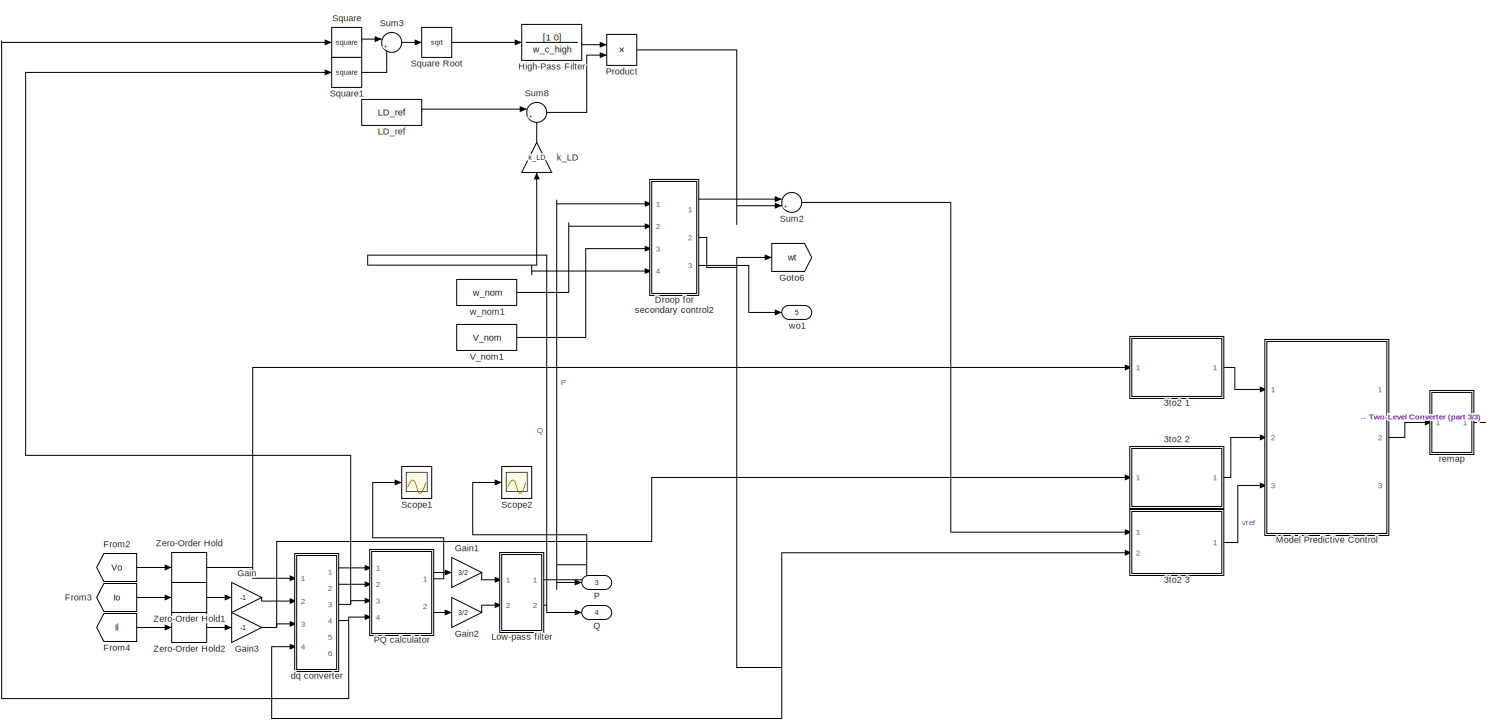
[diagram: Voltage Source Inverter 2 - part 1/3, top left region]
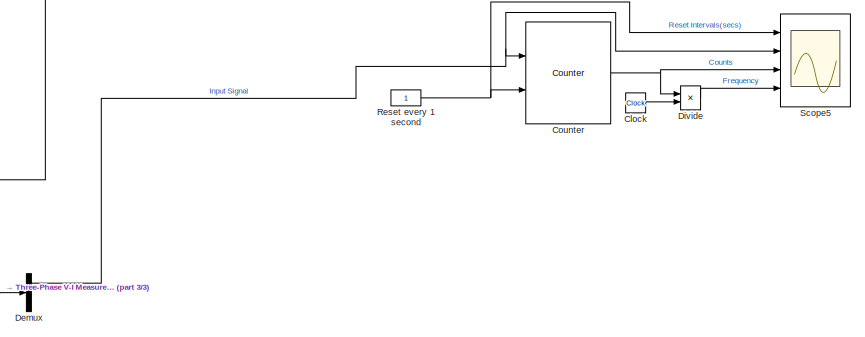
[diagram: Voltage Source Inverter 2 - part 2/3, middle right region]
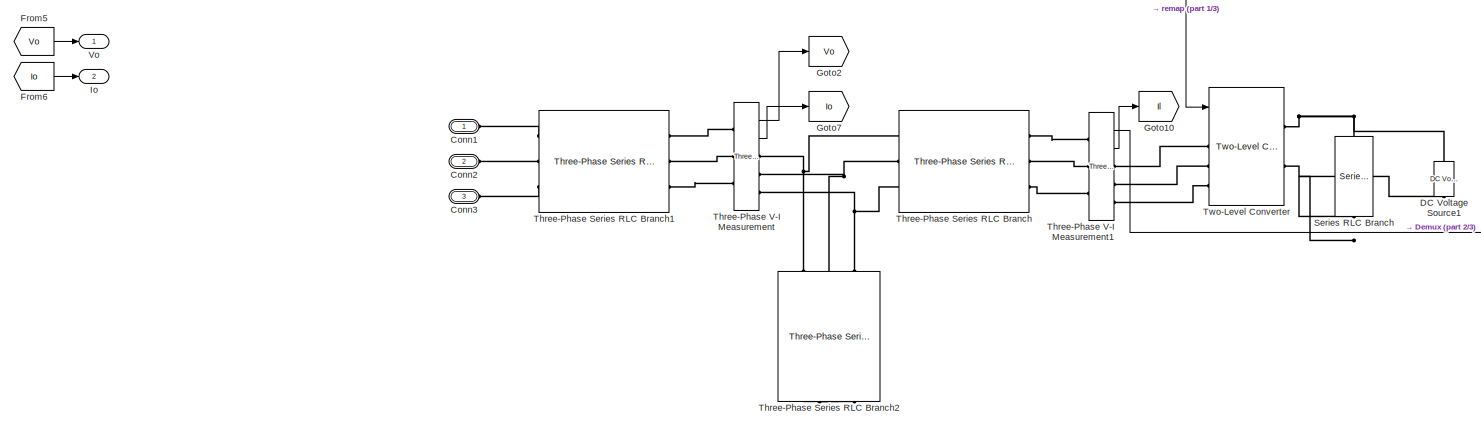
[diagram: Voltage Source Inverter 2 - part 3/3, bottom center region]
BLOCK [SubSystem] Voltage Source Inverter 2
  Ports = [0, 5, 0, 0, 0, 3]
  RequestExecContextInheritance = off
BLOCK [SubSystem] Voltage Source Inverter 2/3to2 1
  Ports = [1, 1]
  RequestExecContextInheritance = off
BLOCK [Sum] Voltage Source Inverter 2/3to2 1/Add
  IconShape = rectangular
  Inputs = +++
  Ports = [3, 1]
BLOCK [Constant] Voltage Source Inverter 2/3to2 1/Constant
  Value = exp(i*2*pi/3)
BLOCK [Constant] Voltage Source Inverter 2/3to2 1/Constant1
  Value = 2/3
BLOCK [Demux] Voltage Source Inverter 2/3to2 1/Demux
  NameLocation = top
  Outputs = 3
  Ports = [1, 3]
BLOCK [Math] Voltage Source Inverter 2/3to2 1/Math Function
  Operator = square
  Ports = [1, 1]
  SignedPower = on
BLOCK [Product] Voltage Source Inverter 2/3to2 1/Product
  Ports = [2, 1]
  RndMeth = Zero
BLOCK [Product] Voltage Source Inverter 2/3to2 1/Product1
  Ports = [2, 1]
  RndMeth = Zero
BLOCK [Product] Voltage Source Inverter 2/3to2 1/Product2
  Ports = [2, 1]
  RndMeth = Zero
BLOCK [Inport] Voltage Source Inverter 2/3to2 1/Vabc_o 
BLOCK [Outport] Voltage Source Inverter 2/3to2 1/Vo
  VectorParamsAs1DForOutWhenUnconnected = off
BLOCK [SubSystem] Voltage Source Inverter 2/3to2 2
  Ports = [1, 1]
  RequestExecContextInheritance = off
BLOCK [Sum] Voltage Source Inverter 2/3to2 2/Add
  IconShape = rectangular
  Inputs = +++
  Ports = [3, 1]
BLOCK [Constant] Voltage Source Inverter 2/3to2 2/Constant
  Value = exp(i*2*pi/3)
BLOCK [Constant] Voltage Source Inverter 2/3to2 2/Constant1
  Value = 2/3
BLOCK [Demux] Voltage Source Inverter 2/3to2 2/Demux
  NameLocation = top
  Outputs = 3
  Ports = [1, 3]
BLOCK [Inport] Voltage Source Inverter 2/3to2 2/Iabc_o 
BLOCK [Outport] Voltage Source Inverter 2/3to2 2/Il
  VectorParamsAs1DForOutWhenUnconnected = off
BLOCK [Math] Voltage Source Inverter 2/3to2 2/Math Function
  Operator = square
  Ports = [1, 1]
  SignedPower = on
BLOCK [Product] Voltage Source Inverter 2/3to2 2/Product
  Ports = [2, 1]
  RndMeth = Zero
BLOCK [Product] Voltage Source Inverter 2/3to2 2/Product1
  Ports = [2, 1]
  RndMeth = Zero
BLOCK [Product] Voltage Source Inverter 2/3to2 2/Product2
  Ports = [2, 1]
  RndMeth = Zero
BLOCK [SubSystem] Voltage Source Inverter 2/3to2 3
  Ports = [2, 1]
  RequestExecContextInheritance = off
BLOCK [Sum] Voltage Source Inverter 2/3to2 3/Add1
  IconShape = rectangular
  Inputs = +++
  Ports = [3, 1]
BLOCK [Constant] Voltage Source Inverter 2/3to2 3/Constant2
  Value = 2*pi/3
BLOCK [Constant] Voltage Source Inverter 2/3to2 3/Constant3
  Value = -2*pi/3
BLOCK [Constant] Voltage Source Inverter 2/3to2 3/Constant4
  Value = exp(i*2*pi/3)
BLOCK [Constant] Voltage Source Inverter 2/3to2 3/Constant5
  Value = 2/3
BLOCK [Trigonometry] Voltage Source Inverter 2/3to2 3/Cos
  Operator = cos
  Ports = [1, 1]
BLOCK [Trigonometry] Voltage Source Inverter 2/3to2 3/Cos1
  Operator = cos
  Ports = [1, 1]
BLOCK [Trigonometry] Voltage Source Inverter 2/3to2 3/Cos2
  Operator = cos
  Ports = [1, 1]
BLOCK [Math] Voltage Source Inverter 2/3to2 3/Math Function1
  Operator = square
  Ports = [1, 1]
  SignedPower = on
BLOCK [Product] Voltage Source Inverter 2/3to2 3/Product3
  Ports = [2, 1]
  RndMeth = Zero
BLOCK [Product] Voltage Source Inverter 2/3to2 3/Product4
  Ports = [2, 1]
  RndMeth = Zero
BLOCK [Product] Voltage Source Inverter 2/3to2 3/Product5
  Ports = [2, 1]
  RndMeth = Zero
BLOCK [Product] Voltage Source Inverter 2/3to2 3/Product6
  Ports = [2, 1]
  RndMeth = Zero
BLOCK [Product] Voltage Source Inverter 2/3to2 3/Product7
  Ports = [2, 1]
  RndMeth = Zero
BLOCK [Product] Voltage Source Inverter 2/3to2 3/Product8
  Ports = [2, 1]
  RndMeth = Zero
BLOCK [Scope] Voltage Source Inverter 2/3to2 3/Scope
  Floating = off
  NumInputPorts = 3
  Ports = [3]
BLOCK [Sum] Voltage Source Inverter 2/3to2 3/Sum
  Inputs = |++
  Ports = [2, 1]
BLOCK [Sum] Voltage Source Inverter 2/3to2 3/Sum1
  Inputs = |++
  Ports = [2, 1]
BLOCK [Inport] Voltage Source Inverter 2/3to2 3/single 
BLOCK [Outport] Voltage Source Inverter 2/3to2 3/threePhase
  VectorParamsAs1DForOutWhenUnconnected = off
BLOCK [Inport] Voltage Source Inverter 2/3to2 3/wt 
  Port = 2
BLOCK [Clock] Voltage Source Inverter 2/Clock
  Decimation = 1
BLOCK [PMIOPort] Voltage Source Inverter 2/Conn1
  Side = Left
BLOCK [PMIOPort] Voltage Source Inverter 2/Conn2
  Port = 2
  Side = Left
BLOCK [PMIOPort] Voltage Source Inverter 2/Conn3
  Port = 3
  Side = Left
BLOCK [Reference] Voltage Source Inverter 2/Counter  REF=dspswit3/Counter
  Ports = [2, 1]
  SourceBlock = dspswit3/Counter
  SourceProductBaseCode = DS
  SourceType = Counter
BLOCK [Reference] Voltage Source Inverter 2/DC Voltage Source1  REF=powerlib/Electrical
Sources/DC Voltage Source
  NameLocation = right
  Ports = [0, 0, 0, 0, 0, 1, 1]
  SourceBlock = powerlib/Electrical\nSources/DC Voltage Source
  SourceProductBaseCode = PS
  SourceType = DC Voltage Source
BLOCK [Demux] Voltage Source Inverter 2/Demux
  Outputs = 3
  Ports = [1, 3]
BLOCK [Product] Voltage Source Inverter 2/Divide
  Inputs = */
  Ports = [2, 1]
BLOCK [SubSystem] Voltage Source Inverter 2/Droop for secondary control2
  Ports = [4, 3]
  RequestExecContextInheritance = off
BLOCK [Gain] Voltage Source Inverter 2/Droop for secondary control2/Gain4
  Gain = n_q
BLOCK [Gain] Voltage Source Inverter 2/Droop for secondary control2/Gain5
  Gain = m_p
BLOCK [Integrator] Voltage Source Inverter 2/Droop for secondary control2/Integrator
  Ports = [1, 1]
  WrapState = on
  WrappedStateLowerValue = 0
  WrappedStateUpperValue = 2*pi
BLOCK [Inport] Voltage Source Inverter 2/Droop for secondary control2/P
BLOCK [Inport] Voltage Source Inverter 2/Droop for secondary control2/Q
  Port = 4
BLOCK [Sum] Voltage Source Inverter 2/Droop for secondary control2/Sum1
  Inputs = |+-
  Ports = [2, 1]
BLOCK [Sum] Voltage Source Inverter 2/Droop for secondary control2/Sum2
  Inputs = |+-
  Ports = [2, 1]
BLOCK [Inport] Voltage Source Inverter 2/Droop for secondary control2/V_nom
  Port = 3
BLOCK [Outport] Voltage Source Inverter 2/Droop for secondary control2/Vref
BLOCK [Inport] Voltage Source Inverter 2/Droop for secondary control2/w_nom
  Port = 2
BLOCK [Outport] Voltage Source Inverter 2/Droop for secondary control2/wo
  Port = 3
BLOCK [Outport] Voltage Source Inverter 2/Droop for secondary control2/wt
  Port = 2
BLOCK [From] Voltage Source Inverter 2/From2
  GotoTag = Vo
BLOCK [From] Voltage Source Inverter 2/From3
  GotoTag = Io
BLOCK [From] Voltage Source Inverter 2/From4
  GotoTag = Il
BLOCK [From] Voltage Source Inverter 2/From5
  GotoTag = Vo
BLOCK [From] Voltage Source Inverter 2/From6
  GotoTag = Io
BLOCK [Gain] Voltage Source Inverter 2/Gain
  Gain = -1
BLOCK [Gain] Voltage Source Inverter 2/Gain1
  Gain = 3/2
BLOCK [Gain] Voltage Source Inverter 2/Gain2
  Gain = 3/2
BLOCK [Gain] Voltage Source Inverter 2/Gain3
  Gain = -1
BLOCK [Goto] Voltage Source Inverter 2/Goto10
  GotoTag = Il
BLOCK [Goto] Voltage Source Inverter 2/Goto2
  GotoTag = Vo
BLOCK [Goto] Voltage Source Inverter 2/Goto6
  GotoTag = wt
BLOCK [Goto] Voltage Source Inverter 2/Goto7
  GotoTag = Io
BLOCK [TransferFcn] Voltage Source Inverter 2/High-Pass Filter
  Denominator = w_c_high
  Numerator = [1 0]
BLOCK [Outport] Voltage Source Inverter 2/Io
  Port = 2
BLOCK [Constant] Voltage Source Inverter 2/LD_ref
  Value = LD_ref
BLOCK [SubSystem] Voltage Source Inverter 2/Low-pass filter
  Ports = [2, 2]
  RequestExecContextInheritance = off
BLOCK [Reference] Voltage Source Inverter 2/Low-pass filter/Low-Pass Filter (Discrete or Continuous)  REF=eeGeneralControl/Low-Pass Filter
(Discrete or Continuous)
  Ports = [1, 1]
  SourceBlock = eeGeneralControl/Low-Pass Filter\n(Discrete or Continuous)
  SourceProductBaseCode = PS
  SourceType = Low-Pass Filter (Discrete or Continuous)
BLOCK [Reference] Voltage Source Inverter 2/Low-pass filter/Low-Pass Filter (Discrete or Continuous)1  REF=eeGeneralControl/Low-Pass Filter
(Discrete or Continuous)
  Ports = [1, 1]
  SourceBlock = eeGeneralControl/Low-Pass Filter\n(Discrete or Continuous)
  SourceProductBaseCode = PS
  SourceType = Low-Pass Filter (Discrete or Continuous)
BLOCK [Outport] Voltage Source Inverter 2/Low-pass filter/P
BLOCK [Outport] Voltage Source Inverter 2/Low-pass filter/Q
  Port = 2
BLOCK [Inport] Voltage Source Inverter 2/Low-pass filter/p_hat
BLOCK [Inport] Voltage Source Inverter 2/Low-pass filter/q_hat
  Port = 2
BLOCK [SubSystem] Voltage Source Inverter 2/Model Predictive Control 
  ErrorFcn = Stateflow.Translate.translate
  NameLocation = top
  PermitHierarchicalResolution = ExplicitOnly
  Ports = [3, 3]
  RequestExecContextInheritance = off
  SFBlockType = MATLAB Function
  TreatAsAtomicUnit = on
BLOCK [Demux] Voltage Source Inverter 2/Model Predictive Control / Demux 
  Outputs = 1
  Ports = [1, 1]
BLOCK [S-Function] Voltage Source Inverter 2/Model Predictive Control / SFunction 
  EnableBusSupport = on
  FunctionName = sf_sfun
  Parameters = Cfilter,Lfilter,Vdc,modT
  PortCounts = [3 4]
  Ports = [3, 4]
  SFcnIsStateOwnerBlock = off
  SFunctionDeploymentMode = off
  Tag = Stateflow S-Function 1
BLOCK [Terminator] Voltage Source Inverter 2/Model Predictive Control / Terminator 
BLOCK [Outport] Voltage Source Inverter 2/Model Predictive Control /S_opt
  VectorParamsAs1DForOutWhenUnconnected = off
BLOCK [Outport] Voltage Source Inverter 2/Model Predictive Control /Sopt
  Port = 2
  VectorParamsAs1DForOutWhenUnconnected = off
BLOCK [Inport] Voltage Source Inverter 2/Model Predictive Control /Vc
BLOCK [Outport] Voltage Source Inverter 2/Model Predictive Control /Vi_opt
  Port = 3
  VectorParamsAs1DForOutWhenUnconnected = off
BLOCK [Inport] Voltage Source Inverter 2/Model Predictive Control /i_filter
  Port = 2
BLOCK [Inport] Voltage Source Inverter 2/Model Predictive Control /vref
  Port = 3
BLOCK [Outport] Voltage Source Inverter 2/P
  Port = 3
BLOCK [SubSystem] Voltage Source Inverter 2/PQ calculator
  Ports = [4, 2]
  RequestExecContextInheritance = off
BLOCK [Inport] Voltage Source Inverter 2/PQ calculator/Iod
  Port = 3
BLOCK [Inport] Voltage Source Inverter 2/PQ calculator/Ioq
  Port = 4
BLOCK [Product] Voltage Source Inverter 2/PQ calculator/Product
  Ports = [2, 1]
BLOCK [Product] Voltage Source Inverter 2/PQ calculator/Product1
  Ports = [2, 1]
BLOCK [Product] Voltage Source Inverter 2/PQ calculator/Product2
  Ports = [2, 1]
BLOCK [Product] Voltage Source Inverter 2/PQ calculator/Product3
  Ports = [2, 1]
BLOCK [Sum] Voltage Source Inverter 2/PQ calculator/Sum10
  Inputs = |++
  Ports = [2, 1]
BLOCK [Sum] Voltage Source Inverter 2/PQ calculator/Sum11
  Inputs = |+-
  Ports = [2, 1]
BLOCK [Inport] Voltage Source Inverter 2/PQ calculator/Vod
BLOCK [Inport] Voltage Source Inverter 2/PQ calculator/Voq
  Port = 2
BLOCK [Outport] Voltage Source Inverter 2/PQ calculator/p_hat
BLOCK [Outport] Voltage Source Inverter 2/PQ calculator/q_hat
  Port = 2
BLOCK [Product] Voltage Source Inverter 2/Product
  Ports = [2, 1]
BLOCK [Outport] Voltage Source Inverter 2/Q
  Port = 4
BLOCK [Constant] Voltage Source Inverter 2/Reset every 1 second
BLOCK [Scope] Voltage Source Inverter 2/Scope1
  Floating = off
  NumInputPorts = 1
  Ports = [1]
BLOCK [Scope] Voltage Source Inverter 2/Scope2
  Floating = off
  NumInputPorts = 1
  Ports = [1]
BLOCK [Scope] Voltage Source Inverter 2/Scope5
  Floating = off
  NumInputPorts = 4
  Ports = [4]
  ScopeSpecificationString = Simulink.scopes.TimeScopeBlockCfg('CurrentConfiguration', extmgr.ConfigurationSet(extmgr.Configuration('Core','General UI',true,'FigureColor',[1 1 1]),extmgr.Configuration('Core','Source UI',true),extmgr.Configuration('Sources','WiredSimulink',true,'DataLoggingVariableName','ScopeData2'),extmgr.Configuration('Visuals','Time Domain',true,'TimeAxisLabels','All','SerializedDisplays',{struct('MinYLimR...<+4437ch>  <repeated x4 — deduplicated; at blocks: Scope5>
BLOCK [Reference] Voltage Source Inverter 2/Series RLC Branch  REF=powerlib/Elements/Series RLC Branch
  NameLocation = left
  Ports = [0, 0, 0, 0, 0, 1, 1]
  SourceBlock = powerlib/Elements/Series RLC Branch
  SourceProductBaseCode = PS
  SourceType = Series RLC Branch
BLOCK [Math] Voltage Source Inverter 2/Square
  Operator = square
  Ports = [1, 1]
BLOCK [Sqrt] Voltage Source Inverter 2/Square Root
BLOCK [Math] Voltage Source Inverter 2/Square1
  Operator = square
  Ports = [1, 1]
BLOCK [Sum] Voltage Source Inverter 2/Sum2
  Inputs = |+-
  Ports = [2, 1]
BLOCK [Sum] Voltage Source Inverter 2/Sum3
  Inputs = |++
  Ports = [2, 1]
BLOCK [Sum] Voltage Source Inverter 2/Sum8
  Inputs = |++
  Ports = [2, 1]
BLOCK [Reference] Voltage Source Inverter 2/Three-Phase Series RLC Branch  REF=powerlib/Elements/Three-Phase
Series RLC Branch
  AttributesFormatString = \n
  Ports = [0, 0, 0, 0, 0, 3, 3]
  SourceBlock = powerlib/Elements/Three-Phase\nSeries RLC Branch
  SourceProductBaseCode = PS
  SourceType = Three-Phase Series RLC Branch
BLOCK [Reference] Voltage Source Inverter 2/Three-Phase Series RLC Branch1  REF=powerlib/Elements/Three-Phase
Series RLC Branch
  AttributesFormatString = \n
  Ports = [0, 0, 0, 0, 0, 3, 3]
  SourceBlock = powerlib/Elements/Three-Phase\nSeries RLC Branch
  SourceProductBaseCode = PS
  SourceType = Three-Phase Series RLC Branch
BLOCK [Reference] Voltage Source Inverter 2/Three-Phase Series RLC Branch2  REF=powerlib/Elements/Three-Phase
Series RLC Branch
  AttributesFormatString = \n
  NameLocation = left
  Ports = [0, 0, 0, 0, 0, 3, 3]
  SourceBlock = powerlib/Elements/Three-Phase\nSeries RLC Branch
  SourceProductBaseCode = PS
  SourceType = Three-Phase Series RLC Branch
BLOCK [Reference] Voltage Source Inverter 2/Three-Phase V-I Measurement  REF=powerlib/Measurements/Three-Phase
V-I Measurement
  Ports = [0, 2, 0, 0, 0, 3, 3]
  SourceBlock = powerlib/Measurements/Three-Phase\nV-I Measurement
  SourceProductBaseCode = PS
  SourceType = Three-Phase VI Measurement
BLOCK [Reference] Voltage Source Inverter 2/Three-Phase V-I Measurement1  REF=powerlib/Measurements/Three-Phase
V-I Measurement
  Ports = [0, 2, 0, 0, 0, 3, 3]
  SourceBlock = powerlib/Measurements/Three-Phase\nV-I Measurement
  SourceProductBaseCode = PS
  SourceType = Three-Phase VI Measurement
BLOCK [Reference] Voltage Source Inverter 2/Two-Level Converter  REF=powerlib/Power
Electronics/Two-Level Converter
  Ports = [2, 0, 0, 0, 0, 3, 2]
  SourceBlock = powerlib/Power\nElectronics/Two-Level Converter
  SourceProductBaseCode = PS
  SourceType = Two-Level Converter
BLOCK [Constant] Voltage Source Inverter 2/V_nom1
  Value = V_nom
BLOCK [Outport] Voltage Source Inverter 2/Vo
BLOCK [ZeroOrderHold] Voltage Source Inverter 2/Zero-Order Hold
  SampleTime = modT
BLOCK [ZeroOrderHold] Voltage Source Inverter 2/Zero-Order Hold1
  SampleTime = modT
BLOCK [ZeroOrderHold] Voltage Source Inverter 2/Zero-Order Hold2
  SampleTime = modT
BLOCK [SubSystem] Voltage Source Inverter 2/dq converter
  Ports = [4, 6]
  RequestExecContextInheritance = off
BLOCK [Demux] Voltage Source Inverter 2/dq converter/Demux
  Outputs = 2
  Ports = [1, 2]
BLOCK [Demux] Voltage Source Inverter 2/dq converter/Demux1
  Outputs = 2
  Ports = [1, 2]
BLOCK [Demux] Voltage Source Inverter 2/dq converter/Demux4
  Outputs = 2
  Ports = [1, 2]
BLOCK [Outport] Voltage Source Inverter 2/dq converter/Ild
  Port = 5
BLOCK [Inport] Voltage Source Inverter 2/dq converter/Ildq
  Port = 3
BLOCK [Outport] Voltage Source Inverter 2/dq converter/Ilq
  Port = 6
BLOCK [Outport] Voltage Source Inverter 2/dq converter/Iod
  Port = 3
BLOCK [Inport] Voltage Source Inverter 2/dq converter/Iodq
  Port = 2
BLOCK [Outport] Voltage Source Inverter 2/dq converter/Ioq
  Port = 4
BLOCK [Selector] Voltage Source Inverter 2/dq converter/Selector1
  IndexOptions = Index vector (dialog)
  Indices = [1 2]
  InputPortWidth = 3
  OutputSizes = 1
  Ports = [1, 1]
BLOCK [Selector] Voltage Source Inverter 2/dq converter/Selector2
  IndexOptions = Index vector (dialog)
  Indices = [1 2]
  InputPortWidth = 3
  OutputSizes = 1
  Ports = [1, 1]
BLOCK [Selector] Voltage Source Inverter 2/dq converter/Selector3
  IndexOptions = Index vector (dialog)
  Indices = [1 2]
  InputPortWidth = 3
  OutputSizes = 1
  Ports = [1, 1]
BLOCK [Outport] Voltage Source Inverter 2/dq converter/Vod
BLOCK [Inport] Voltage Source Inverter 2/dq converter/Vodq
BLOCK [Outport] Voltage Source Inverter 2/dq converter/Voq
  Port = 2
BLOCK [Reference] Voltage Source Inverter 2/dq converter/abc to dq0  REF=powerlib_meascontrol/Transformations/abc to dq0
  Ports = [2, 1]
  SourceBlock = powerlib_meascontrol/Transformations/abc to dq0
  SourceProductBaseCode = PS
  SourceType = abc to dq0 Transformation
BLOCK [Reference] Voltage Source Inverter 2/dq converter/abc to dq1  REF=powerlib_meascontrol/Transformations/abc to dq0
  Ports = [2, 1]
  SourceBlock = powerlib_meascontrol/Transformations/abc to dq0
  SourceProductBaseCode = PS
  SourceType = abc to dq0 Transformation
BLOCK [Reference] Voltage Source Inverter 2/dq converter/abc to dq2  REF=powerlib_meascontrol/Transformations/abc to dq0
  Ports = [2, 1]
  SourceBlock = powerlib_meascontrol/Transformations/abc to dq0
  SourceProductBaseCode = PS
  SourceType = abc to dq0 Transformation
BLOCK [Inport] Voltage Source Inverter 2/dq converter/wo
  Port = 4
BLOCK [Gain] Voltage Source Inverter 2/k_LD
  Gain = k_LD
  NameLocation = right
BLOCK [SubSystem] Voltage Source Inverter 2/remap
  Ports = [1, 1]
  RequestExecContextInheritance = off
BLOCK [Demux] Voltage Source Inverter 2/remap/Demux
  NameLocation = top
  Outputs = 6
  Ports = [1, 6]
BLOCK [Inport] Voltage Source Inverter 2/remap/In1
BLOCK [Mux] Voltage Source Inverter 2/remap/Mux
  DisplayOption = bar
  Inputs = 6
  Ports = [6, 1]
BLOCK [Outport] Voltage Source Inverter 2/remap/Out1
BLOCK [Constant] Voltage Source Inverter 2/w_nom1
  Value = w_nom
BLOCK [Outport] Voltage Source Inverter 2/wo1
  Port = 5
BLOCK [SubSystem] Voltage Source Inverter 3
  NameLocation = top
  Ports = [0, 5, 0, 0, 0, 3]
  RequestExecContextInheritance = off
BLOCK [SubSystem] Voltage Source Inverter 3/3to2 1
  Ports = [1, 1]
  RequestExecContextInheritance = off
BLOCK [Sum] Voltage Source Inverter 3/3to2 1/Add
  IconShape = rectangular
  Inputs = +++
  Ports = [3, 1]
BLOCK [Constant] Voltage Source Inverter 3/3to2 1/Constant
  Value = exp(i*2*pi/3)
BLOCK [Constant] Voltage Source Inverter 3/3to2 1/Constant1
  Value = 2/3
BLOCK [Demux] Voltage Source Inverter 3/3to2 1/Demux
  NameLocation = top
  Outputs = 3
  Ports = [1, 3]
BLOCK [Math] Voltage Source Inverter 3/3to2 1/Math Function
  Operator = square
  Ports = [1, 1]
  SignedPower = on
BLOCK [Product] Voltage Source Inverter 3/3to2 1/Product
  Ports = [2, 1]
  RndMeth = Zero
BLOCK [Product] Voltage Source Inverter 3/3to2 1/Product1
  Ports = [2, 1]
  RndMeth = Zero
BLOCK [Product] Voltage Source Inverter 3/3to2 1/Product2
  Ports = [2, 1]
  RndMeth = Zero
BLOCK [Inport] Voltage Source Inverter 3/3to2 1/Vabc_o 
BLOCK [Outport] Voltage Source Inverter 3/3to2 1/Vo
  VectorParamsAs1DForOutWhenUnconnected = off
BLOCK [SubSystem] Voltage Source Inverter 3/3to2 2
  Ports = [1, 1]
  RequestExecContextInheritance = off
BLOCK [Sum] Voltage Source Inverter 3/3to2 2/Add
  IconShape = rectangular
  Inputs = +++
  Ports = [3, 1]
BLOCK [Constant] Voltage Source Inverter 3/3to2 2/Constant
  Value = exp(i*2*pi/3)
BLOCK [Constant] Voltage Source Inverter 3/3to2 2/Constant1
  Value = 2/3
BLOCK [Demux] Voltage Source Inverter 3/3to2 2/Demux
  NameLocation = top
  Outputs = 3
  Ports = [1, 3]
BLOCK [Inport] Voltage Source Inverter 3/3to2 2/Iabc_o 
BLOCK [Outport] Voltage Source Inverter 3/3to2 2/Il
  VectorParamsAs1DForOutWhenUnconnected = off
BLOCK [Math] Voltage Source Inverter 3/3to2 2/Math Function
  Operator = square
  Ports = [1, 1]
  SignedPower = on
BLOCK [Product] Voltage Source Inverter 3/3to2 2/Product
  Ports = [2, 1]
  RndMeth = Zero
BLOCK [Product] Voltage Source Inverter 3/3to2 2/Product1
  Ports = [2, 1]
  RndMeth = Zero
BLOCK [Product] Voltage Source Inverter 3/3to2 2/Product2
  Ports = [2, 1]
  RndMeth = Zero
BLOCK [SubSystem] Voltage Source Inverter 3/3to2 3
  Ports = [2, 1]
  RequestExecContextInheritance = off
BLOCK [Sum] Voltage Source Inverter 3/3to2 3/Add1
  IconShape = rectangular
  Inputs = +++
  Ports = [3, 1]
BLOCK [Constant] Voltage Source Inverter 3/3to2 3/Constant2
  Value = 2*pi/3
BLOCK [Constant] Voltage Source Inverter 3/3to2 3/Constant3
  Value = -2*pi/3
BLOCK [Constant] Voltage Source Inverter 3/3to2 3/Constant4
  Value = exp(i*2*pi/3)
BLOCK [Constant] Voltage Source Inverter 3/3to2 3/Constant5
  Value = 2/3
BLOCK [Trigonometry] Voltage Source Inverter 3/3to2 3/Cos
  Operator = cos
  Ports = [1, 1]
BLOCK [Trigonometry] Voltage Source Inverter 3/3to2 3/Cos1
  Operator = cos
  Ports = [1, 1]
BLOCK [Trigonometry] Voltage Source Inverter 3/3to2 3/Cos2
  Operator = cos
  Ports = [1, 1]
BLOCK [Math] Voltage Source Inverter 3/3to2 3/Math Function1
  Operator = square
  Ports = [1, 1]
  SignedPower = on
BLOCK [Product] Voltage Source Inverter 3/3to2 3/Product3
  Ports = [2, 1]
  RndMeth = Zero
BLOCK [Product] Voltage Source Inverter 3/3to2 3/Product4
  Ports = [2, 1]
  RndMeth = Zero
BLOCK [Product] Voltage Source Inverter 3/3to2 3/Product5
  Ports = [2, 1]
  RndMeth = Zero
BLOCK [Product] Voltage Source Inverter 3/3to2 3/Product6
  Ports = [2, 1]
  RndMeth = Zero
BLOCK [Product] Voltage Source Inverter 3/3to2 3/Product7
  Ports = [2, 1]
  RndMeth = Zero
BLOCK [Product] Voltage Source Inverter 3/3to2 3/Product8
  Ports = [2, 1]
  RndMeth = Zero
BLOCK [Scope] Voltage Source Inverter 3/3to2 3/Scope
  Floating = off
  NumInputPorts = 3
  Ports = [3]
BLOCK [Sum] Voltage Source Inverter 3/3to2 3/Sum
  Inputs = |++
  Ports = [2, 1]
BLOCK [Sum] Voltage Source Inverter 3/3to2 3/Sum1
  Inputs = |++
  Ports = [2, 1]
BLOCK [Inport] Voltage Source Inverter 3/3to2 3/single 
BLOCK [Outport] Voltage Source Inverter 3/3to2 3/threePhase
  VectorParamsAs1DForOutWhenUnconnected = off
BLOCK [Inport] Voltage Source Inverter 3/3to2 3/wt 
  Port = 2
BLOCK [Clock] Voltage Source Inverter 3/Clock
  Decimation = 1
BLOCK [PMIOPort] Voltage Source Inverter 3/Conn1
  Side = Left
BLOCK [PMIOPort] Voltage Source Inverter 3/Conn2
  Port = 2
  Side = Left
BLOCK [PMIOPort] Voltage Source Inverter 3/Conn3
  Port = 3
  Side = Left
BLOCK [Reference] Voltage Source Inverter 3/Counter  REF=dspswit3/Counter
  Ports = [2, 1]
  SourceBlock = dspswit3/Counter
  SourceProductBaseCode = DS
  SourceType = Counter
BLOCK [Reference] Voltage Source Inverter 3/DC Voltage Source1  REF=powerlib/Electrical
Sources/DC Voltage Source
  NameLocation = right
  Ports = [0, 0, 0, 0, 0, 1, 1]
  SourceBlock = powerlib/Electrical\nSources/DC Voltage Source
  SourceProductBaseCode = PS
  SourceType = DC Voltage Source
BLOCK [Demux] Voltage Source Inverter 3/Demux
  Outputs = 3
  Ports = [1, 3]
BLOCK [Product] Voltage Source Inverter 3/Divide
  Inputs = */
  Ports = [2, 1]
BLOCK [SubSystem] Voltage Source Inverter 3/Droop for secondary control2
  Ports = [4, 3]
  RequestExecContextInheritance = off
BLOCK [Gain] Voltage Source Inverter 3/Droop for secondary control2/Gain4
  Gain = n_q
BLOCK [Gain] Voltage Source Inverter 3/Droop for secondary control2/Gain5
  Gain = m_p
BLOCK [Integrator] Voltage Source Inverter 3/Droop for secondary control2/Integrator
  Ports = [1, 1]
  WrapState = on
  WrappedStateLowerValue = 0
  WrappedStateUpperValue = 2*pi
BLOCK [Inport] Voltage Source Inverter 3/Droop for secondary control2/P
BLOCK [Inport] Voltage Source Inverter 3/Droop for secondary control2/Q
  Port = 4
BLOCK [Sum] Voltage Source Inverter 3/Droop for secondary control2/Sum1
  Inputs = |+-
  Ports = [2, 1]
BLOCK [Sum] Voltage Source Inverter 3/Droop for secondary control2/Sum2
  Inputs = |+-
  Ports = [2, 1]
BLOCK [Inport] Voltage Source Inverter 3/Droop for secondary control2/V_nom
  Port = 3
BLOCK [Outport] Voltage Source Inverter 3/Droop for secondary control2/Vref
BLOCK [Inport] Voltage Source Inverter 3/Droop for secondary control2/w_nom
  Port = 2
BLOCK [Outport] Voltage Source Inverter 3/Droop for secondary control2/wo
  Port = 3
BLOCK [Outport] Voltage Source Inverter 3/Droop for secondary control2/wt
  Port = 2
BLOCK [From] Voltage Source Inverter 3/From2
  GotoTag = Vo
BLOCK [From] Voltage Source Inverter 3/From3
  GotoTag = Io
BLOCK [From] Voltage Source Inverter 3/From4
  GotoTag = Il
BLOCK [From] Voltage Source Inverter 3/From5
  GotoTag = Vo
BLOCK [From] Voltage Source Inverter 3/From6
  GotoTag = Io
BLOCK [Gain] Voltage Source Inverter 3/Gain
  Gain = -1
BLOCK [Gain] Voltage Source Inverter 3/Gain1
  Gain = 3/2
BLOCK [Gain] Voltage Source Inverter 3/Gain2
  Gain = 3/2
BLOCK [Gain] Voltage Source Inverter 3/Gain3
  Gain = -1
BLOCK [Goto] Voltage Source Inverter 3/Goto10
  GotoTag = Il
BLOCK [Goto] Voltage Source Inverter 3/Goto2
  GotoTag = Vo
BLOCK [Goto] Voltage Source Inverter 3/Goto6
  GotoTag = wt
BLOCK [Goto] Voltage Source Inverter 3/Goto7
  GotoTag = Io
BLOCK [TransferFcn] Voltage Source Inverter 3/High-Pass Filter
  Denominator = w_c_high
  Numerator = [1 0]
BLOCK [Outport] Voltage Source Inverter 3/Io
  Port = 2
BLOCK [Constant] Voltage Source Inverter 3/LD_ref
  Value = LD_ref
BLOCK [SubSystem] Voltage Source Inverter 3/Low-pass filter
  Ports = [2, 2]
  RequestExecContextInheritance = off
BLOCK [Reference] Voltage Source Inverter 3/Low-pass filter/Low-Pass Filter (Discrete or Continuous)  REF=eeGeneralControl/Low-Pass Filter
(Discrete or Continuous)
  Ports = [1, 1]
  SourceBlock = eeGeneralControl/Low-Pass Filter\n(Discrete or Continuous)
  SourceProductBaseCode = PS
  SourceType = Low-Pass Filter (Discrete or Continuous)
BLOCK [Reference] Voltage Source Inverter 3/Low-pass filter/Low-Pass Filter (Discrete or Continuous)1  REF=eeGeneralControl/Low-Pass Filter
(Discrete or Continuous)
  Ports = [1, 1]
  SourceBlock = eeGeneralControl/Low-Pass Filter\n(Discrete or Continuous)
  SourceProductBaseCode = PS
  SourceType = Low-Pass Filter (Discrete or Continuous)
BLOCK [Outport] Voltage Source Inverter 3/Low-pass filter/P
BLOCK [Outport] Voltage Source Inverter 3/Low-pass filter/Q
  Port = 2
BLOCK [Inport] Voltage Source Inverter 3/Low-pass filter/p_hat
BLOCK [Inport] Voltage Source Inverter 3/Low-pass filter/q_hat
  Port = 2
BLOCK [SubSystem] Voltage Source Inverter 3/Model Predictive Control 
  ErrorFcn = Stateflow.Translate.translate
  NameLocation = top
  PermitHierarchicalResolution = ExplicitOnly
  Ports = [3, 3]
  RequestExecContextInheritance = off
  SFBlockType = MATLAB Function
  TreatAsAtomicUnit = on
BLOCK [Demux] Voltage Source Inverter 3/Model Predictive Control / Demux 
  Outputs = 1
  Ports = [1, 1]
BLOCK [S-Function] Voltage Source Inverter 3/Model Predictive Control / SFunction 
  EnableBusSupport = on
  FunctionName = sf_sfun
  Parameters = Cfilter,Lfilter,Vdc,modT
  PortCounts = [3 4]
  Ports = [3, 4]
  SFcnIsStateOwnerBlock = off
  SFunctionDeploymentMode = off
  Tag = Stateflow S-Function 3
BLOCK [Terminator] Voltage Source Inverter 3/Model Predictive Control / Terminator 
BLOCK [Outport] Voltage Source Inverter 3/Model Predictive Control /S_opt
  VectorParamsAs1DForOutWhenUnconnected = off
BLOCK [Outport] Voltage Source Inverter 3/Model Predictive Control /Sopt
  Port = 2
  VectorParamsAs1DForOutWhenUnconnected = off
BLOCK [Inport] Voltage Source Inverter 3/Model Predictive Control /Vc
BLOCK [Outport] Voltage Source Inverter 3/Model Predictive Control /Vi_opt
  Port = 3
  VectorParamsAs1DForOutWhenUnconnected = off
BLOCK [Inport] Voltage Source Inverter 3/Model Predictive Control /i_filter
  Port = 2
BLOCK [Inport] Voltage Source Inverter 3/Model Predictive Control /vref
  Port = 3
BLOCK [Outport] Voltage Source Inverter 3/P
  Port = 3
BLOCK [SubSystem] Voltage Source Inverter 3/PQ calculator
  Ports = [4, 2]
  RequestExecContextInheritance = off
BLOCK [Inport] Voltage Source Inverter 3/PQ calculator/Iod
  Port = 3
BLOCK [Inport] Voltage Source Inverter 3/PQ calculator/Ioq
  Port = 4
BLOCK [Product] Voltage Source Inverter 3/PQ calculator/Product
  Ports = [2, 1]
BLOCK [Product] Voltage Source Inverter 3/PQ calculator/Product1
  Ports = [2, 1]
BLOCK [Product] Voltage Source Inverter 3/PQ calculator/Product2
  Ports = [2, 1]
BLOCK [Product] Voltage Source Inverter 3/PQ calculator/Product3
  Ports = [2, 1]
BLOCK [Sum] Voltage Source Inverter 3/PQ calculator/Sum10
  Inputs = |++
  Ports = [2, 1]
BLOCK [Sum] Voltage Source Inverter 3/PQ calculator/Sum11
  Inputs = |+-
  Ports = [2, 1]
BLOCK [Inport] Voltage Source Inverter 3/PQ calculator/Vod
BLOCK [Inport] Voltage Source Inverter 3/PQ calculator/Voq
  Port = 2
BLOCK [Outport] Voltage Source Inverter 3/PQ calculator/p_hat
BLOCK [Outport] Voltage Source Inverter 3/PQ calculator/q_hat
  Port = 2
BLOCK [Product] Voltage Source Inverter 3/Product
  Ports = [2, 1]
BLOCK [Outport] Voltage Source Inverter 3/Q
  Port = 4
BLOCK [Constant] Voltage Source Inverter 3/Reset every 1 second
BLOCK [Scope] Voltage Source Inverter 3/Scope1
  Floating = off
  NumInputPorts = 1
  Ports = [1]
BLOCK [Scope] Voltage Source Inverter 3/Scope2
  Floating = off
  NumInputPorts = 1
  Ports = [1]
BLOCK [Scope] Voltage Source Inverter 3/Scope5
  Floating = off
  NumInputPorts = 4
  Ports = [4]
BLOCK [Reference] Voltage Source Inverter 3/Series RLC Branch  REF=powerlib/Elements/Series RLC Branch
  NameLocation = left
  Ports = [0, 0, 0, 0, 0, 1, 1]
  SourceBlock = powerlib/Elements/Series RLC Branch
  SourceProductBaseCode = PS
  SourceType = Series RLC Branch
BLOCK [Math] Voltage Source Inverter 3/Square
  Operator = square
  Ports = [1, 1]
BLOCK [Sqrt] Voltage Source Inverter 3/Square Root
BLOCK [Math] Voltage Source Inverter 3/Square1
  Operator = square
  Ports = [1, 1]
BLOCK [Sum] Voltage Source Inverter 3/Sum2
  Inputs = |+-
  Ports = [2, 1]
BLOCK [Sum] Voltage Source Inverter 3/Sum3
  Inputs = |++
  Ports = [2, 1]
BLOCK [Sum] Voltage Source Inverter 3/Sum8
  Inputs = |++
  Ports = [2, 1]
BLOCK [Reference] Voltage Source Inverter 3/Three-Phase Series RLC Branch  REF=powerlib/Elements/Three-Phase
Series RLC Branch
  AttributesFormatString = \n
  Ports = [0, 0, 0, 0, 0, 3, 3]
  SourceBlock = powerlib/Elements/Three-Phase\nSeries RLC Branch
  SourceProductBaseCode = PS
  SourceType = Three-Phase Series RLC Branch
BLOCK [Reference] Voltage Source Inverter 3/Three-Phase Series RLC Branch1  REF=powerlib/Elements/Three-Phase
Series RLC Branch
  AttributesFormatString = \n
  Ports = [0, 0, 0, 0, 0, 3, 3]
  SourceBlock = powerlib/Elements/Three-Phase\nSeries RLC Branch
  SourceProductBaseCode = PS
  SourceType = Three-Phase Series RLC Branch
BLOCK [Reference] Voltage Source Inverter 3/Three-Phase Series RLC Branch2  REF=powerlib/Elements/Three-Phase
Series RLC Branch
  AttributesFormatString = \n
  NameLocation = left
  Ports = [0, 0, 0, 0, 0, 3, 3]
  SourceBlock = powerlib/Elements/Three-Phase\nSeries RLC Branch
  SourceProductBaseCode = PS
  SourceType = Three-Phase Series RLC Branch
BLOCK [Reference] Voltage Source Inverter 3/Three-Phase V-I Measurement  REF=powerlib/Measurements/Three-Phase
V-I Measurement
  Ports = [0, 2, 0, 0, 0, 3, 3]
  SourceBlock = powerlib/Measurements/Three-Phase\nV-I Measurement
  SourceProductBaseCode = PS
  SourceType = Three-Phase VI Measurement
BLOCK [Reference] Voltage Source Inverter 3/Three-Phase V-I Measurement1  REF=powerlib/Measurements/Three-Phase
V-I Measurement
  Ports = [0, 2, 0, 0, 0, 3, 3]
  SourceBlock = powerlib/Measurements/Three-Phase\nV-I Measurement
  SourceProductBaseCode = PS
  SourceType = Three-Phase VI Measurement
BLOCK [Reference] Voltage Source Inverter 3/Two-Level Converter  REF=powerlib/Power
Electronics/Two-Level Converter
  Ports = [2, 0, 0, 0, 0, 3, 2]
  SourceBlock = powerlib/Power\nElectronics/Two-Level Converter
  SourceProductBaseCode = PS
  SourceType = Two-Level Converter
BLOCK [Constant] Voltage Source Inverter 3/V_nom1
  Value = V_nom
BLOCK [Outport] Voltage Source Inverter 3/Vo
BLOCK [ZeroOrderHold] Voltage Source Inverter 3/Zero-Order Hold
  SampleTime = modT
BLOCK [ZeroOrderHold] Voltage Source Inverter 3/Zero-Order Hold1
  SampleTime = modT
BLOCK [ZeroOrderHold] Voltage Source Inverter 3/Zero-Order Hold2
  SampleTime = modT
BLOCK [SubSystem] Voltage Source Inverter 3/dq converter
  Ports = [4, 6]
  RequestExecContextInheritance = off
BLOCK [Demux] Voltage Source Inverter 3/dq converter/Demux
  Outputs = 2
  Ports = [1, 2]
BLOCK [Demux] Voltage Source Inverter 3/dq converter/Demux1
  Outputs = 2
  Ports = [1, 2]
BLOCK [Demux] Voltage Source Inverter 3/dq converter/Demux4
  Outputs = 2
  Ports = [1, 2]
BLOCK [Outport] Voltage Source Inverter 3/dq converter/Ild
  Port = 5
BLOCK [Inport] Voltage Source Inverter 3/dq converter/Ildq
  Port = 3
BLOCK [Outport] Voltage Source Inverter 3/dq converter/Ilq
  Port = 6
BLOCK [Outport] Voltage Source Inverter 3/dq converter/Iod
  Port = 3
BLOCK [Inport] Voltage Source Inverter 3/dq converter/Iodq
  Port = 2
BLOCK [Outport] Voltage Source Inverter 3/dq converter/Ioq
  Port = 4
BLOCK [Selector] Voltage Source Inverter 3/dq converter/Selector1
  IndexOptions = Index vector (dialog)
  Indices = [1 2]
  InputPortWidth = 3
  OutputSizes = 1
  Ports = [1, 1]
BLOCK [Selector] Voltage Source Inverter 3/dq converter/Selector2
  IndexOptions = Index vector (dialog)
  Indices = [1 2]
  InputPortWidth = 3
  OutputSizes = 1
  Ports = [1, 1]
BLOCK [Selector] Voltage Source Inverter 3/dq converter/Selector3
  IndexOptions = Index vector (dialog)
  Indices = [1 2]
  InputPortWidth = 3
  OutputSizes = 1
  Ports = [1, 1]
BLOCK [Outport] Voltage Source Inverter 3/dq converter/Vod
BLOCK [Inport] Voltage Source Inverter 3/dq converter/Vodq
BLOCK [Outport] Voltage Source Inverter 3/dq converter/Voq
  Port = 2
BLOCK [Reference] Voltage Source Inverter 3/dq converter/abc to dq0  REF=powerlib_meascontrol/Transformations/abc to dq0
  Ports = [2, 1]
  SourceBlock = powerlib_meascontrol/Transformations/abc to dq0
  SourceProductBaseCode = PS
  SourceType = abc to dq0 Transformation
BLOCK [Reference] Voltage Source Inverter 3/dq converter/abc to dq1  REF=powerlib_meascontrol/Transformations/abc to dq0
  Ports = [2, 1]
  SourceBlock = powerlib_meascontrol/Transformations/abc to dq0
  SourceProductBaseCode = PS
  SourceType = abc to dq0 Transformation
BLOCK [Reference] Voltage Source Inverter 3/dq converter/abc to dq2  REF=powerlib_meascontrol/Transformations/abc to dq0
  Ports = [2, 1]
  SourceBlock = powerlib_meascontrol/Transformations/abc to dq0
  SourceProductBaseCode = PS
  SourceType = abc to dq0 Transformation
BLOCK [Inport] Voltage Source Inverter 3/dq converter/wo
  Port = 4
BLOCK [Gain] Voltage Source Inverter 3/k_LD
  Gain = k_LD
  NameLocation = right
BLOCK [SubSystem] Voltage Source Inverter 3/remap
  Ports = [1, 1]
  RequestExecContextInheritance = off
BLOCK [Demux] Voltage Source Inverter 3/remap/Demux
  NameLocation = top
  Outputs = 6
  Ports = [1, 6]
BLOCK [Inport] Voltage Source Inverter 3/remap/In1
BLOCK [Mux] Voltage Source Inverter 3/remap/Mux
  DisplayOption = bar
  Inputs = 6
  Ports = [6, 1]
BLOCK [Outport] Voltage Source Inverter 3/remap/Out1
BLOCK [Constant] Voltage Source Inverter 3/w_nom1
  Value = w_nom
BLOCK [Outport] Voltage Source Inverter 3/wo1
  Port = 5
BLOCK [SubSystem] Voltage Source Inverter 4
  NameLocation = top
  Ports = [0, 5, 0, 0, 0, 3]
  RequestExecContextInheritance = off
BLOCK [SubSystem] Voltage Source Inverter 4/3to2 1
  Ports = [1, 1]
  RequestExecContextInheritance = off
BLOCK [Sum] Voltage Source Inverter 4/3to2 1/Add
  IconShape = rectangular
  Inputs = +++
  Ports = [3, 1]
BLOCK [Constant] Voltage Source Inverter 4/3to2 1/Constant
  Value = exp(i*2*pi/3)
BLOCK [Constant] Voltage Source Inverter 4/3to2 1/Constant1
  Value = 2/3
BLOCK [Demux] Voltage Source Inverter 4/3to2 1/Demux
  NameLocation = top
  Outputs = 3
  Ports = [1, 3]
BLOCK [Math] Voltage Source Inverter 4/3to2 1/Math Function
  Operator = square
  Ports = [1, 1]
  SignedPower = on
BLOCK [Product] Voltage Source Inverter 4/3to2 1/Product
  Ports = [2, 1]
  RndMeth = Zero
BLOCK [Product] Voltage Source Inverter 4/3to2 1/Product1
  Ports = [2, 1]
  RndMeth = Zero
BLOCK [Product] Voltage Source Inverter 4/3to2 1/Product2
  Ports = [2, 1]
  RndMeth = Zero
BLOCK [Inport] Voltage Source Inverter 4/3to2 1/Vabc_o 
BLOCK [Outport] Voltage Source Inverter 4/3to2 1/Vo
  VectorParamsAs1DForOutWhenUnconnected = off
BLOCK [SubSystem] Voltage Source Inverter 4/3to2 2
  Ports = [1, 1]
  RequestExecContextInheritance = off
BLOCK [Sum] Voltage Source Inverter 4/3to2 2/Add
  IconShape = rectangular
  Inputs = +++
  Ports = [3, 1]
BLOCK [Constant] Voltage Source Inverter 4/3to2 2/Constant
  Value = exp(i*2*pi/3)
BLOCK [Constant] Voltage Source Inverter 4/3to2 2/Constant1
  Value = 2/3
BLOCK [Demux] Voltage Source Inverter 4/3to2 2/Demux
  NameLocation = top
  Outputs = 3
  Ports = [1, 3]
BLOCK [Inport] Voltage Source Inverter 4/3to2 2/Iabc_o 
BLOCK [Outport] Voltage Source Inverter 4/3to2 2/Il
  VectorParamsAs1DForOutWhenUnconnected = off
BLOCK [Math] Voltage Source Inverter 4/3to2 2/Math Function
  Operator = square
  Ports = [1, 1]
  SignedPower = on
BLOCK [Product] Voltage Source Inverter 4/3to2 2/Product
  Ports = [2, 1]
  RndMeth = Zero
BLOCK [Product] Voltage Source Inverter 4/3to2 2/Product1
  Ports = [2, 1]
  RndMeth = Zero
BLOCK [Product] Voltage Source Inverter 4/3to2 2/Product2
  Ports = [2, 1]
  RndMeth = Zero
BLOCK [SubSystem] Voltage Source Inverter 4/3to2 3
  Ports = [2, 1]
  RequestExecContextInheritance = off
BLOCK [Sum] Voltage Source Inverter 4/3to2 3/Add1
  IconShape = rectangular
  Inputs = +++
  Ports = [3, 1]
BLOCK [Constant] Voltage Source Inverter 4/3to2 3/Constant2
  Value = 2*pi/3
BLOCK [Constant] Voltage Source Inverter 4/3to2 3/Constant3
  Value = -2*pi/3
BLOCK [Constant] Voltage Source Inverter 4/3to2 3/Constant4
  Value = exp(i*2*pi/3)
BLOCK [Constant] Voltage Source Inverter 4/3to2 3/Constant5
  Value = 2/3
BLOCK [Trigonometry] Voltage Source Inverter 4/3to2 3/Cos
  Operator = cos
  Ports = [1, 1]
BLOCK [Trigonometry] Voltage Source Inverter 4/3to2 3/Cos1
  Operator = cos
  Ports = [1, 1]
BLOCK [Trigonometry] Voltage Source Inverter 4/3to2 3/Cos2
  Operator = cos
  Ports = [1, 1]
BLOCK [Math] Voltage Source Inverter 4/3to2 3/Math Function1
  Operator = square
  Ports = [1, 1]
  SignedPower = on
BLOCK [Product] Voltage Source Inverter 4/3to2 3/Product3
  Ports = [2, 1]
  RndMeth = Zero
BLOCK [Product] Voltage Source Inverter 4/3to2 3/Product4
  Ports = [2, 1]
  RndMeth = Zero
BLOCK [Product] Voltage Source Inverter 4/3to2 3/Product5
  Ports = [2, 1]
  RndMeth = Zero
BLOCK [Product] Voltage Source Inverter 4/3to2 3/Product6
  Ports = [2, 1]
  RndMeth = Zero
BLOCK [Product] Voltage Source Inverter 4/3to2 3/Product7
  Ports = [2, 1]
  RndMeth = Zero
BLOCK [Product] Voltage Source Inverter 4/3to2 3/Product8
  Ports = [2, 1]
  RndMeth = Zero
BLOCK [Scope] Voltage Source Inverter 4/3to2 3/Scope
  Floating = off
  NumInputPorts = 3
  Ports = [3]
BLOCK [Sum] Voltage Source Inverter 4/3to2 3/Sum
  Inputs = |++
  Ports = [2, 1]
BLOCK [Sum] Voltage Source Inverter 4/3to2 3/Sum1
  Inputs = |++
  Ports = [2, 1]
BLOCK [Inport] Voltage Source Inverter 4/3to2 3/single 
BLOCK [Outport] Voltage Source Inverter 4/3to2 3/threePhase
  VectorParamsAs1DForOutWhenUnconnected = off
BLOCK [Inport] Voltage Source Inverter 4/3to2 3/wt 
  Port = 2
BLOCK [Clock] Voltage Source Inverter 4/Clock
  Decimation = 1
BLOCK [PMIOPort] Voltage Source Inverter 4/Conn1
  Side = Left
BLOCK [PMIOPort] Voltage Source Inverter 4/Conn2
  Port = 2
  Side = Left
BLOCK [PMIOPort] Voltage Source Inverter 4/Conn3
  Port = 3
  Side = Left
BLOCK [Reference] Voltage Source Inverter 4/Counter  REF=dspswit3/Counter
  Ports = [2, 1]
  SourceBlock = dspswit3/Counter
  SourceProductBaseCode = DS
  SourceType = Counter
BLOCK [Reference] Voltage Source Inverter 4/DC Voltage Source1  REF=powerlib/Electrical
Sources/DC Voltage Source
  NameLocation = right
  Ports = [0, 0, 0, 0, 0, 1, 1]
  SourceBlock = powerlib/Electrical\nSources/DC Voltage Source
  SourceProductBaseCode = PS
  SourceType = DC Voltage Source
BLOCK [Demux] Voltage Source Inverter 4/Demux
  Outputs = 3
  Ports = [1, 3]
BLOCK [Product] Voltage Source Inverter 4/Divide
  Inputs = */
  Ports = [2, 1]
BLOCK [SubSystem] Voltage Source Inverter 4/Droop for secondary control2
  Ports = [4, 3]
  RequestExecContextInheritance = off
BLOCK [Gain] Voltage Source Inverter 4/Droop for secondary control2/Gain4
  Gain = n_q
BLOCK [Gain] Voltage Source Inverter 4/Droop for secondary control2/Gain5
  Gain = m_p
BLOCK [Integrator] Voltage Source Inverter 4/Droop for secondary control2/Integrator
  Ports = [1, 1]
  WrapState = on
  WrappedStateLowerValue = 0
  WrappedStateUpperValue = 2*pi
BLOCK [Inport] Voltage Source Inverter 4/Droop for secondary control2/P
BLOCK [Inport] Voltage Source Inverter 4/Droop for secondary control2/Q
  Port = 4
BLOCK [Sum] Voltage Source Inverter 4/Droop for secondary control2/Sum1
  Inputs = |+-
  Ports = [2, 1]
BLOCK [Sum] Voltage Source Inverter 4/Droop for secondary control2/Sum2
  Inputs = |+-
  Ports = [2, 1]
BLOCK [Inport] Voltage Source Inverter 4/Droop for secondary control2/V_nom
  Port = 3
BLOCK [Outport] Voltage Source Inverter 4/Droop for secondary control2/Vref
BLOCK [Inport] Voltage Source Inverter 4/Droop for secondary control2/w_nom
  Port = 2
BLOCK [Outport] Voltage Source Inverter 4/Droop for secondary control2/wo
  Port = 3
BLOCK [Outport] Voltage Source Inverter 4/Droop for secondary control2/wt
  Port = 2
BLOCK [From] Voltage Source Inverter 4/From2
  GotoTag = Vo
BLOCK [From] Voltage Source Inverter 4/From3
  GotoTag = Io
BLOCK [From] Voltage Source Inverter 4/From4
  GotoTag = Il
BLOCK [From] Voltage Source Inverter 4/From5
  GotoTag = Vo
BLOCK [From] Voltage Source Inverter 4/From6
  GotoTag = Io
BLOCK [Gain] Voltage Source Inverter 4/Gain
  Gain = -1
BLOCK [Gain] Voltage Source Inverter 4/Gain1
  Gain = 3/2
BLOCK [Gain] Voltage Source Inverter 4/Gain2
  Gain = 3/2
BLOCK [Gain] Voltage Source Inverter 4/Gain3
  Gain = -1
BLOCK [Goto] Voltage Source Inverter 4/Goto10
  GotoTag = Il
BLOCK [Goto] Voltage Source Inverter 4/Goto2
  GotoTag = Vo
BLOCK [Goto] Voltage Source Inverter 4/Goto6
  GotoTag = wt
BLOCK [Goto] Voltage Source Inverter 4/Goto7
  GotoTag = Io
BLOCK [TransferFcn] Voltage Source Inverter 4/High-Pass Filter
  Denominator = w_c_high
  Numerator = [1 0]
BLOCK [Outport] Voltage Source Inverter 4/Io
  Port = 2
BLOCK [Constant] Voltage Source Inverter 4/LD_ref
  Value = LD_ref
BLOCK [SubSystem] Voltage Source Inverter 4/Low-pass filter
  Ports = [2, 2]
  RequestExecContextInheritance = off
BLOCK [Reference] Voltage Source Inverter 4/Low-pass filter/Low-Pass Filter (Discrete or Continuous)  REF=eeGeneralControl/Low-Pass Filter
(Discrete or Continuous)
  Ports = [1, 1]
  SourceBlock = eeGeneralControl/Low-Pass Filter\n(Discrete or Continuous)
  SourceProductBaseCode = PS
  SourceType = Low-Pass Filter (Discrete or Continuous)
BLOCK [Reference] Voltage Source Inverter 4/Low-pass filter/Low-Pass Filter (Discrete or Continuous)1  REF=eeGeneralControl/Low-Pass Filter
(Discrete or Continuous)
  Ports = [1, 1]
  SourceBlock = eeGeneralControl/Low-Pass Filter\n(Discrete or Continuous)
  SourceProductBaseCode = PS
  SourceType = Low-Pass Filter (Discrete or Continuous)
BLOCK [Outport] Voltage Source Inverter 4/Low-pass filter/P
BLOCK [Outport] Voltage Source Inverter 4/Low-pass filter/Q
  Port = 2
BLOCK [Inport] Voltage Source Inverter 4/Low-pass filter/p_hat
BLOCK [Inport] Voltage Source Inverter 4/Low-pass filter/q_hat
  Port = 2
BLOCK [SubSystem] Voltage Source Inverter 4/Model Predictive Control 
  ErrorFcn = Stateflow.Translate.translate
  NameLocation = top
  PermitHierarchicalResolution = ExplicitOnly
  Ports = [3, 3]
  RequestExecContextInheritance = off
  SFBlockType = MATLAB Function
  TreatAsAtomicUnit = on
BLOCK [Demux] Voltage Source Inverter 4/Model Predictive Control / Demux 
  Outputs = 1
  Ports = [1, 1]
BLOCK [S-Function] Voltage Source Inverter 4/Model Predictive Control / SFunction 
  EnableBusSupport = on
  FunctionName = sf_sfun
  Parameters = Cfilter,Lfilter,Vdc,modT
  PortCounts = [3 4]
  Ports = [3, 4]
  SFcnIsStateOwnerBlock = off
  SFunctionDeploymentMode = off
  Tag = Stateflow S-Function 4
BLOCK [Terminator] Voltage Source Inverter 4/Model Predictive Control / Terminator 
BLOCK [Outport] Voltage Source Inverter 4/Model Predictive Control /S_opt
  VectorParamsAs1DForOutWhenUnconnected = off
BLOCK [Outport] Voltage Source Inverter 4/Model Predictive Control /Sopt
  Port = 2
  VectorParamsAs1DForOutWhenUnconnected = off
BLOCK [Inport] Voltage Source Inverter 4/Model Predictive Control /Vc
BLOCK [Outport] Voltage Source Inverter 4/Model Predictive Control /Vi_opt
  Port = 3
  VectorParamsAs1DForOutWhenUnconnected = off
BLOCK [Inport] Voltage Source Inverter 4/Model Predictive Control /i_filter
  Port = 2
BLOCK [Inport] Voltage Source Inverter 4/Model Predictive Control /vref
  Port = 3
BLOCK [Outport] Voltage Source Inverter 4/P
  Port = 3
BLOCK [SubSystem] Voltage Source Inverter 4/PQ calculator
  Ports = [4, 2]
  RequestExecContextInheritance = off
BLOCK [Inport] Voltage Source Inverter 4/PQ calculator/Iod
  Port = 3
BLOCK [Inport] Voltage Source Inverter 4/PQ calculator/Ioq
  Port = 4
BLOCK [Product] Voltage Source Inverter 4/PQ calculator/Product
  Ports = [2, 1]
BLOCK [Product] Voltage Source Inverter 4/PQ calculator/Product1
  Ports = [2, 1]
BLOCK [Product] Voltage Source Inverter 4/PQ calculator/Product2
  Ports = [2, 1]
BLOCK [Product] Voltage Source Inverter 4/PQ calculator/Product3
  Ports = [2, 1]
BLOCK [Sum] Voltage Source Inverter 4/PQ calculator/Sum10
  Inputs = |++
  Ports = [2, 1]
BLOCK [Sum] Voltage Source Inverter 4/PQ calculator/Sum11
  Inputs = |+-
  Ports = [2, 1]
BLOCK [Inport] Voltage Source Inverter 4/PQ calculator/Vod
BLOCK [Inport] Voltage Source Inverter 4/PQ calculator/Voq
  Port = 2
BLOCK [Outport] Voltage Source Inverter 4/PQ calculator/p_hat
BLOCK [Outport] Voltage Source Inverter 4/PQ calculator/q_hat
  Port = 2
BLOCK [Product] Voltage Source Inverter 4/Product
  Ports = [2, 1]
BLOCK [Outport] Voltage Source Inverter 4/Q
  Port = 4
BLOCK [Constant] Voltage Source Inverter 4/Reset every 1 second
BLOCK [Scope] Voltage Source Inverter 4/Scope1
  Floating = off
  NumInputPorts = 1
  Ports = [1]
BLOCK [Scope] Voltage Source Inverter 4/Scope2
  Floating = off
  NumInputPorts = 1
  Ports = [1]
BLOCK [Scope] Voltage Source Inverter 4/Scope5
  Floating = off
  NumInputPorts = 4
  Ports = [4]
BLOCK [Reference] Voltage Source Inverter 4/Series RLC Branch  REF=powerlib/Elements/Series RLC Branch
  NameLocation = left
  Ports = [0, 0, 0, 0, 0, 1, 1]
  SourceBlock = powerlib/Elements/Series RLC Branch
  SourceProductBaseCode = PS
  SourceType = Series RLC Branch
BLOCK [Math] Voltage Source Inverter 4/Square
  Operator = square
  Ports = [1, 1]
BLOCK [Sqrt] Voltage Source Inverter 4/Square Root
BLOCK [Math] Voltage Source Inverter 4/Square1
  Operator = square
  Ports = [1, 1]
BLOCK [Sum] Voltage Source Inverter 4/Sum2
  Inputs = |+-
  Ports = [2, 1]
BLOCK [Sum] Voltage Source Inverter 4/Sum3
  Inputs = |++
  Ports = [2, 1]
BLOCK [Sum] Voltage Source Inverter 4/Sum8
  Inputs = |++
  Ports = [2, 1]
BLOCK [Reference] Voltage Source Inverter 4/Three-Phase Series RLC Branch  REF=powerlib/Elements/Three-Phase
Series RLC Branch
  AttributesFormatString = \n
  Ports = [0, 0, 0, 0, 0, 3, 3]
  SourceBlock = powerlib/Elements/Three-Phase\nSeries RLC Branch
  SourceProductBaseCode = PS
  SourceType = Three-Phase Series RLC Branch
BLOCK [Reference] Voltage Source Inverter 4/Three-Phase Series RLC Branch1  REF=powerlib/Elements/Three-Phase
Series RLC Branch
  AttributesFormatString = \n
  Ports = [0, 0, 0, 0, 0, 3, 3]
  SourceBlock = powerlib/Elements/Three-Phase\nSeries RLC Branch
  SourceProductBaseCode = PS
  SourceType = Three-Phase Series RLC Branch
BLOCK [Reference] Voltage Source Inverter 4/Three-Phase Series RLC Branch2  REF=powerlib/Elements/Three-Phase
Series RLC Branch
  AttributesFormatString = \n
  NameLocation = left
  Ports = [0, 0, 0, 0, 0, 3, 3]
  SourceBlock = powerlib/Elements/Three-Phase\nSeries RLC Branch
  SourceProductBaseCode = PS
  SourceType = Three-Phase Series RLC Branch
BLOCK [Reference] Voltage Source Inverter 4/Three-Phase V-I Measurement  REF=powerlib/Measurements/Three-Phase
V-I Measurement
  Ports = [0, 2, 0, 0, 0, 3, 3]
  SourceBlock = powerlib/Measurements/Three-Phase\nV-I Measurement
  SourceProductBaseCode = PS
  SourceType = Three-Phase VI Measurement
BLOCK [Reference] Voltage Source Inverter 4/Three-Phase V-I Measurement1  REF=powerlib/Measurements/Three-Phase
V-I Measurement
  Ports = [0, 2, 0, 0, 0, 3, 3]
  SourceBlock = powerlib/Measurements/Three-Phase\nV-I Measurement
  SourceProductBaseCode = PS
  SourceType = Three-Phase VI Measurement
BLOCK [Reference] Voltage Source Inverter 4/Two-Level Converter  REF=powerlib/Power
Electronics/Two-Level Converter
  Ports = [2, 0, 0, 0, 0, 3, 2]
  SourceBlock = powerlib/Power\nElectronics/Two-Level Converter
  SourceProductBaseCode = PS
  SourceType = Two-Level Converter
BLOCK [Constant] Voltage Source Inverter 4/V_nom1
  Value = V_nom
BLOCK [Outport] Voltage Source Inverter 4/Vo
BLOCK [ZeroOrderHold] Voltage Source Inverter 4/Zero-Order Hold
  SampleTime = modT
BLOCK [ZeroOrderHold] Voltage Source Inverter 4/Zero-Order Hold1
  SampleTime = modT
BLOCK [ZeroOrderHold] Voltage Source Inverter 4/Zero-Order Hold2
  SampleTime = modT
BLOCK [SubSystem] Voltage Source Inverter 4/dq converter
  Ports = [4, 6]
  RequestExecContextInheritance = off
BLOCK [Demux] Voltage Source Inverter 4/dq converter/Demux
  Outputs = 2
  Ports = [1, 2]
BLOCK [Demux] Voltage Source Inverter 4/dq converter/Demux1
  Outputs = 2
  Ports = [1, 2]
BLOCK [Demux] Voltage Source Inverter 4/dq converter/Demux4
  Outputs = 2
  Ports = [1, 2]
BLOCK [Outport] Voltage Source Inverter 4/dq converter/Ild
  Port = 5
BLOCK [Inport] Voltage Source Inverter 4/dq converter/Ildq
  Port = 3
BLOCK [Outport] Voltage Source Inverter 4/dq converter/Ilq
  Port = 6
BLOCK [Outport] Voltage Source Inverter 4/dq converter/Iod
  Port = 3
BLOCK [Inport] Voltage Source Inverter 4/dq converter/Iodq
  Port = 2
BLOCK [Outport] Voltage Source Inverter 4/dq converter/Ioq
  Port = 4
BLOCK [Selector] Voltage Source Inverter 4/dq converter/Selector1
  IndexOptions = Index vector (dialog)
  Indices = [1 2]
  InputPortWidth = 3
  OutputSizes = 1
  Ports = [1, 1]
BLOCK [Selector] Voltage Source Inverter 4/dq converter/Selector2
  IndexOptions = Index vector (dialog)
  Indices = [1 2]
  InputPortWidth = 3
  OutputSizes = 1
  Ports = [1, 1]
BLOCK [Selector] Voltage Source Inverter 4/dq converter/Selector3
  IndexOptions = Index vector (dialog)
  Indices = [1 2]
  InputPortWidth = 3
  OutputSizes = 1
  Ports = [1, 1]
BLOCK [Outport] Voltage Source Inverter 4/dq converter/Vod
BLOCK [Inport] Voltage Source Inverter 4/dq converter/Vodq
BLOCK [Outport] Voltage Source Inverter 4/dq converter/Voq
  Port = 2
BLOCK [Reference] Voltage Source Inverter 4/dq converter/abc to dq0  REF=powerlib_meascontrol/Transformations/abc to dq0
  Ports = [2, 1]
  SourceBlock = powerlib_meascontrol/Transformations/abc to dq0
  SourceProductBaseCode = PS
  SourceType = abc to dq0 Transformation
BLOCK [Reference] Voltage Source Inverter 4/dq converter/abc to dq1  REF=powerlib_meascontrol/Transformations/abc to dq0
  Ports = [2, 1]
  SourceBlock = powerlib_meascontrol/Transformations/abc to dq0
  SourceProductBaseCode = PS
  SourceType = abc to dq0 Transformation
BLOCK [Reference] Voltage Source Inverter 4/dq converter/abc to dq2  REF=powerlib_meascontrol/Transformations/abc to dq0
  Ports = [2, 1]
  SourceBlock = powerlib_meascontrol/Transformations/abc to dq0
  SourceProductBaseCode = PS
  SourceType = abc to dq0 Transformation
BLOCK [Inport] Voltage Source Inverter 4/dq converter/wo
  Port = 4
BLOCK [Gain] Voltage Source Inverter 4/k_LD
  Gain = k_LD
  NameLocation = right
BLOCK [SubSystem] Voltage Source Inverter 4/remap
  Ports = [1, 1]
  RequestExecContextInheritance = off
BLOCK [Demux] Voltage Source Inverter 4/remap/Demux
  NameLocation = top
  Outputs = 6
  Ports = [1, 6]
BLOCK [Inport] Voltage Source Inverter 4/remap/In1
BLOCK [Mux] Voltage Source Inverter 4/remap/Mux
  DisplayOption = bar
  Inputs = 6
  Ports = [6, 1]
BLOCK [Outport] Voltage Source Inverter 4/remap/Out1
BLOCK [Constant] Voltage Source Inverter 4/w_nom1
  Value = w_nom
BLOCK [Outport] Voltage Source Inverter 4/wo1
  Port = 5
BLOCK [SubSystem] Voltage Source Inverter 5
  Commented = on
  Ports = [0, 5, 0, 0, 0, 3]
  RequestExecContextInheritance = off
BLOCK [SubSystem] Voltage Source Inverter 5/3to2 1
  Ports = [1, 1]
  RequestExecContextInheritance = off
BLOCK [Sum] Voltage Source Inverter 5/3to2 1/Add
  IconShape = rectangular
  Inputs = +++
  Ports = [3, 1]
BLOCK [Constant] Voltage Source Inverter 5/3to2 1/Constant
  Value = exp(i*2*pi/3)
BLOCK [Constant] Voltage Source Inverter 5/3to2 1/Constant1
  Value = 2/3
BLOCK [Demux] Voltage Source Inverter 5/3to2 1/Demux
  NameLocation = top
  Outputs = 3
  Ports = [1, 3]
BLOCK [Math] Voltage Source Inverter 5/3to2 1/Math Function
  Operator = square
  Ports = [1, 1]
  SignedPower = on
BLOCK [Product] Voltage Source Inverter 5/3to2 1/Product
  Ports = [2, 1]
  RndMeth = Zero
BLOCK [Product] Voltage Source Inverter 5/3to2 1/Product1
  Ports = [2, 1]
  RndMeth = Zero
BLOCK [Product] Voltage Source Inverter 5/3to2 1/Product2
  Ports = [2, 1]
  RndMeth = Zero
BLOCK [Inport] Voltage Source Inverter 5/3to2 1/Vabc_o 
BLOCK [Outport] Voltage Source Inverter 5/3to2 1/Vo
  VectorParamsAs1DForOutWhenUnconnected = off
BLOCK [SubSystem] Voltage Source Inverter 5/3to2 2
  Ports = [1, 1]
  RequestExecContextInheritance = off
BLOCK [Sum] Voltage Source Inverter 5/3to2 2/Add
  IconShape = rectangular
  Inputs = +++
  Ports = [3, 1]
BLOCK [Constant] Voltage Source Inverter 5/3to2 2/Constant
  Value = exp(i*2*pi/3)
BLOCK [Constant] Voltage Source Inverter 5/3to2 2/Constant1
  Value = 2/3
BLOCK [Demux] Voltage Source Inverter 5/3to2 2/Demux
  NameLocation = top
  Outputs = 3
  Ports = [1, 3]
BLOCK [Inport] Voltage Source Inverter 5/3to2 2/Iabc_o 
BLOCK [Outport] Voltage Source Inverter 5/3to2 2/Il
  VectorParamsAs1DForOutWhenUnconnected = off
BLOCK [Math] Voltage Source Inverter 5/3to2 2/Math Function
  Operator = square
  Ports = [1, 1]
  SignedPower = on
BLOCK [Product] Voltage Source Inverter 5/3to2 2/Product
  Ports = [2, 1]
  RndMeth = Zero
BLOCK [Product] Voltage Source Inverter 5/3to2 2/Product1
  Ports = [2, 1]
  RndMeth = Zero
BLOCK [Product] Voltage Source Inverter 5/3to2 2/Product2
  Ports = [2, 1]
  RndMeth = Zero
BLOCK [SubSystem] Voltage Source Inverter 5/3to2 3
  Ports = [2, 1]
  RequestExecContextInheritance = off
BLOCK [Sum] Voltage Source Inverter 5/3to2 3/Add1
  IconShape = rectangular
  Inputs = +++
  Ports = [3, 1]
BLOCK [Constant] Voltage Source Inverter 5/3to2 3/Constant2
  Value = 2*pi/3
BLOCK [Constant] Voltage Source Inverter 5/3to2 3/Constant3
  Value = -2*pi/3
BLOCK [Constant] Voltage Source Inverter 5/3to2 3/Constant4
  Value = exp(i*2*pi/3)
BLOCK [Constant] Voltage Source Inverter 5/3to2 3/Constant5
  Value = 2/3
BLOCK [Trigonometry] Voltage Source Inverter 5/3to2 3/Cos
  Operator = cos
  Ports = [1, 1]
BLOCK [Trigonometry] Voltage Source Inverter 5/3to2 3/Cos1
  Operator = cos
  Ports = [1, 1]
BLOCK [Trigonometry] Voltage Source Inverter 5/3to2 3/Cos2
  Operator = cos
  Ports = [1, 1]
BLOCK [Math] Voltage Source Inverter 5/3to2 3/Math Function1
  Operator = square
  Ports = [1, 1]
  SignedPower = on
BLOCK [Product] Voltage Source Inverter 5/3to2 3/Product3
  Ports = [2, 1]
  RndMeth = Zero
BLOCK [Product] Voltage Source Inverter 5/3to2 3/Product4
  Ports = [2, 1]
  RndMeth = Zero
BLOCK [Product] Voltage Source Inverter 5/3to2 3/Product5
  Ports = [2, 1]
  RndMeth = Zero
BLOCK [Product] Voltage Source Inverter 5/3to2 3/Product6
  Ports = [2, 1]
  RndMeth = Zero
BLOCK [Product] Voltage Source Inverter 5/3to2 3/Product7
  Ports = [2, 1]
  RndMeth = Zero
BLOCK [Product] Voltage Source Inverter 5/3to2 3/Product8
  Ports = [2, 1]
  RndMeth = Zero
BLOCK [Scope] Voltage Source Inverter 5/3to2 3/Scope
  Floating = off
  NumInputPorts = 3
  Ports = [3]
BLOCK [Sum] Voltage Source Inverter 5/3to2 3/Sum
  Inputs = |++
  Ports = [2, 1]
BLOCK [Sum] Voltage Source Inverter 5/3to2 3/Sum1
  Inputs = |++
  Ports = [2, 1]
BLOCK [Inport] Voltage Source Inverter 5/3to2 3/single 
BLOCK [Outport] Voltage Source Inverter 5/3to2 3/threePhase
  VectorParamsAs1DForOutWhenUnconnected = off
BLOCK [Inport] Voltage Source Inverter 5/3to2 3/wt 
  Port = 2
BLOCK [Clock] Voltage Source Inverter 5/Clock
  Decimation = 1
BLOCK [PMIOPort] Voltage Source Inverter 5/Conn1
  Side = Left
BLOCK [PMIOPort] Voltage Source Inverter 5/Conn2
  Port = 2
  Side = Left
BLOCK [PMIOPort] Voltage Source Inverter 5/Conn3
  Port = 3
  Side = Left
BLOCK [Reference] Voltage Source Inverter 5/Counter  REF=dspswit3/Counter
  Ports = [2, 1]
  SourceBlock = dspswit3/Counter
  SourceProductBaseCode = DS
  SourceType = Counter
BLOCK [Reference] Voltage Source Inverter 5/DC Voltage Source1  REF=powerlib/Electrical
Sources/DC Voltage Source
  NameLocation = right
  Ports = [0, 0, 0, 0, 0, 1, 1]
  SourceBlock = powerlib/Electrical\nSources/DC Voltage Source
  SourceProductBaseCode = PS
  SourceType = DC Voltage Source
BLOCK [Demux] Voltage Source Inverter 5/Demux
  Outputs = 3
  Ports = [1, 3]
BLOCK [Product] Voltage Source Inverter 5/Divide
  Inputs = */
  Ports = [2, 1]
BLOCK [SubSystem] Voltage Source Inverter 5/Droop for secondary control2
  Ports = [4, 3]
  RequestExecContextInheritance = off
BLOCK [Gain] Voltage Source Inverter 5/Droop for secondary control2/Gain4
  Gain = n_q
BLOCK [Gain] Voltage Source Inverter 5/Droop for secondary control2/Gain5
  Gain = m_p
BLOCK [Integrator] Voltage Source Inverter 5/Droop for secondary control2/Integrator
  Ports = [1, 1]
  WrapState = on
  WrappedStateLowerValue = 0
  WrappedStateUpperValue = 2*pi
BLOCK [Inport] Voltage Source Inverter 5/Droop for secondary control2/P
BLOCK [Inport] Voltage Source Inverter 5/Droop for secondary control2/Q
  Port = 4
BLOCK [Sum] Voltage Source Inverter 5/Droop for secondary control2/Sum1
  Inputs = |+-
  Ports = [2, 1]
BLOCK [Sum] Voltage Source Inverter 5/Droop for secondary control2/Sum2
  Inputs = |+-
  Ports = [2, 1]
BLOCK [Inport] Voltage Source Inverter 5/Droop for secondary control2/V_nom
  Port = 3
BLOCK [Outport] Voltage Source Inverter 5/Droop for secondary control2/Vref
BLOCK [Inport] Voltage Source Inverter 5/Droop for secondary control2/w_nom
  Port = 2
BLOCK [Outport] Voltage Source Inverter 5/Droop for secondary control2/wo
  Port = 3
BLOCK [Outport] Voltage Source Inverter 5/Droop for secondary control2/wt
  Port = 2
BLOCK [From] Voltage Source Inverter 5/From2
  GotoTag = Vo
BLOCK [From] Voltage Source Inverter 5/From3
  GotoTag = Io
BLOCK [From] Voltage Source Inverter 5/From4
  GotoTag = Il
BLOCK [From] Voltage Source Inverter 5/From5
  GotoTag = Vo
BLOCK [From] Voltage Source Inverter 5/From6
  GotoTag = Io
BLOCK [Gain] Voltage Source Inverter 5/Gain
  Gain = -1
BLOCK [Gain] Voltage Source Inverter 5/Gain1
  Gain = 3/2
BLOCK [Gain] Voltage Source Inverter 5/Gain2
  Gain = 3/2
BLOCK [Gain] Voltage Source Inverter 5/Gain3
  Gain = -1
BLOCK [Goto] Voltage Source Inverter 5/Goto10
  GotoTag = Il
BLOCK [Goto] Voltage Source Inverter 5/Goto2
  GotoTag = Vo
BLOCK [Goto] Voltage Source Inverter 5/Goto6
  GotoTag = wt
BLOCK [Goto] Voltage Source Inverter 5/Goto7
  GotoTag = Io
BLOCK [TransferFcn] Voltage Source Inverter 5/High-Pass Filter
  Denominator = w_c_high
  Numerator = [1 0]
BLOCK [Outport] Voltage Source Inverter 5/Io
  Port = 2
BLOCK [Constant] Voltage Source Inverter 5/LD_ref
  Value = LD_ref
BLOCK [SubSystem] Voltage Source Inverter 5/Low-pass filter
  Ports = [2, 2]
  RequestExecContextInheritance = off
BLOCK [Reference] Voltage Source Inverter 5/Low-pass filter/Low-Pass Filter (Discrete or Continuous)  REF=eeGeneralControl/Low-Pass Filter
(Discrete or Continuous)
  Ports = [1, 1]
  SourceBlock = eeGeneralControl/Low-Pass Filter\n(Discrete or Continuous)
  SourceProductBaseCode = PS
  SourceType = Low-Pass Filter (Discrete or Continuous)
BLOCK [Reference] Voltage Source Inverter 5/Low-pass filter/Low-Pass Filter (Discrete or Continuous)1  REF=eeGeneralControl/Low-Pass Filter
(Discrete or Continuous)
  Ports = [1, 1]
  SourceBlock = eeGeneralControl/Low-Pass Filter\n(Discrete or Continuous)
  SourceProductBaseCode = PS
  SourceType = Low-Pass Filter (Discrete or Continuous)
BLOCK [Outport] Voltage Source Inverter 5/Low-pass filter/P
BLOCK [Outport] Voltage Source Inverter 5/Low-pass filter/Q
  Port = 2
BLOCK [Inport] Voltage Source Inverter 5/Low-pass filter/p_hat
BLOCK [Inport] Voltage Source Inverter 5/Low-pass filter/q_hat
  Port = 2
BLOCK [SubSystem] Voltage Source Inverter 5/Model Predictive Control 
  ErrorFcn = Stateflow.Translate.translate
  NameLocation = top
  PermitHierarchicalResolution = ExplicitOnly
  Ports = [3, 3]
  RequestExecContextInheritance = off
  SFBlockType = MATLAB Function
  TreatAsAtomicUnit = on
BLOCK [Demux] Voltage Source Inverter 5/Model Predictive Control / Demux 
  Outputs = 1
  Ports = [1, 1]
BLOCK [S-Function] Voltage Source Inverter 5/Model Predictive Control / SFunction 
  EnableBusSupport = on
  FunctionName = sf_sfun
  Parameters = Cfilter,Lfilter,Vdc,modT
  PortCounts = [3 4]
  Ports = [3, 4]
  SFcnIsStateOwnerBlock = off
  SFunctionDeploymentMode = off
  Tag = Stateflow S-Function 5
BLOCK [Terminator] Voltage Source Inverter 5/Model Predictive Control / Terminator 
BLOCK [Outport] Voltage Source Inverter 5/Model Predictive Control /S_opt
  VectorParamsAs1DForOutWhenUnconnected = off
BLOCK [Outport] Voltage Source Inverter 5/Model Predictive Control /Sopt
  Port = 2
  VectorParamsAs1DForOutWhenUnconnected = off
BLOCK [Inport] Voltage Source Inverter 5/Model Predictive Control /Vc
BLOCK [Outport] Voltage Source Inverter 5/Model Predictive Control /Vi_opt
  Port = 3
  VectorParamsAs1DForOutWhenUnconnected = off
BLOCK [Inport] Voltage Source Inverter 5/Model Predictive Control /i_filter
  Port = 2
BLOCK [Inport] Voltage Source Inverter 5/Model Predictive Control /vref
  Port = 3
BLOCK [Outport] Voltage Source Inverter 5/P
  Port = 3
BLOCK [SubSystem] Voltage Source Inverter 5/PQ calculator
  Ports = [4, 2]
  RequestExecContextInheritance = off
BLOCK [Inport] Voltage Source Inverter 5/PQ calculator/Iod
  Port = 3
BLOCK [Inport] Voltage Source Inverter 5/PQ calculator/Ioq
  Port = 4
BLOCK [Product] Voltage Source Inverter 5/PQ calculator/Product
  Ports = [2, 1]
BLOCK [Product] Voltage Source Inverter 5/PQ calculator/Product1
  Ports = [2, 1]
BLOCK [Product] Voltage Source Inverter 5/PQ calculator/Product2
  Ports = [2, 1]
BLOCK [Product] Voltage Source Inverter 5/PQ calculator/Product3
  Ports = [2, 1]
BLOCK [Sum] Voltage Source Inverter 5/PQ calculator/Sum10
  Inputs = |++
  Ports = [2, 1]
BLOCK [Sum] Voltage Source Inverter 5/PQ calculator/Sum11
  Inputs = |+-
  Ports = [2, 1]
BLOCK [Inport] Voltage Source Inverter 5/PQ calculator/Vod
BLOCK [Inport] Voltage Source Inverter 5/PQ calculator/Voq
  Port = 2
BLOCK [Outport] Voltage Source Inverter 5/PQ calculator/p_hat
BLOCK [Outport] Voltage Source Inverter 5/PQ calculator/q_hat
  Port = 2
BLOCK [Product] Voltage Source Inverter 5/Product
  Ports = [2, 1]
BLOCK [Outport] Voltage Source Inverter 5/Q
  Port = 4
BLOCK [Constant] Voltage Source Inverter 5/Reset every 1 second
BLOCK [Scope] Voltage Source Inverter 5/Scope1
  Floating = off
  NumInputPorts = 1
  Ports = [1]
BLOCK [Scope] Voltage Source Inverter 5/Scope2
  Floating = off
  NumInputPorts = 1
  Ports = [1]
BLOCK [Scope] Voltage Source Inverter 5/Scope5
  Floating = off
  NumInputPorts = 4
  Ports = [4]
BLOCK [Reference] Voltage Source Inverter 5/Series RLC Branch  REF=powerlib/Elements/Series RLC Branch
  NameLocation = left
  Ports = [0, 0, 0, 0, 0, 1, 1]
  SourceBlock = powerlib/Elements/Series RLC Branch
  SourceProductBaseCode = PS
  SourceType = Series RLC Branch
BLOCK [Math] Voltage Source Inverter 5/Square
  Operator = square
  Ports = [1, 1]
BLOCK [Sqrt] Voltage Source Inverter 5/Square Root
BLOCK [Math] Voltage Source Inverter 5/Square1
  Operator = square
  Ports = [1, 1]
BLOCK [Sum] Voltage Source Inverter 5/Sum2
  Inputs = |+-
  Ports = [2, 1]
BLOCK [Sum] Voltage Source Inverter 5/Sum3
  Inputs = |++
  Ports = [2, 1]
BLOCK [Sum] Voltage Source Inverter 5/Sum8
  Inputs = |++
  Ports = [2, 1]
BLOCK [Reference] Voltage Source Inverter 5/Three-Phase Series RLC Branch  REF=powerlib/Elements/Three-Phase
Series RLC Branch
  AttributesFormatString = \n
  Ports = [0, 0, 0, 0, 0, 3, 3]
  SourceBlock = powerlib/Elements/Three-Phase\nSeries RLC Branch
  SourceProductBaseCode = PS
  SourceType = Three-Phase Series RLC Branch
BLOCK [Reference] Voltage Source Inverter 5/Three-Phase Series RLC Branch1  REF=powerlib/Elements/Three-Phase
Series RLC Branch
  AttributesFormatString = \n
  Ports = [0, 0, 0, 0, 0, 3, 3]
  SourceBlock = powerlib/Elements/Three-Phase\nSeries RLC Branch
  SourceProductBaseCode = PS
  SourceType = Three-Phase Series RLC Branch
BLOCK [Reference] Voltage Source Inverter 5/Three-Phase Series RLC Branch2  REF=powerlib/Elements/Three-Phase
Series RLC Branch
  AttributesFormatString = \n
  NameLocation = left
  Ports = [0, 0, 0, 0, 0, 3, 3]
  SourceBlock = powerlib/Elements/Three-Phase\nSeries RLC Branch
  SourceProductBaseCode = PS
  SourceType = Three-Phase Series RLC Branch
BLOCK [Reference] Voltage Source Inverter 5/Three-Phase V-I Measurement  REF=powerlib/Measurements/Three-Phase
V-I Measurement
  Ports = [0, 2, 0, 0, 0, 3, 3]
  SourceBlock = powerlib/Measurements/Three-Phase\nV-I Measurement
  SourceProductBaseCode = PS
  SourceType = Three-Phase VI Measurement
BLOCK [Reference] Voltage Source Inverter 5/Three-Phase V-I Measurement1  REF=powerlib/Measurements/Three-Phase
V-I Measurement
  Ports = [0, 2, 0, 0, 0, 3, 3]
  SourceBlock = powerlib/Measurements/Three-Phase\nV-I Measurement
  SourceProductBaseCode = PS
  SourceType = Three-Phase VI Measurement
BLOCK [Reference] Voltage Source Inverter 5/Two-Level Converter  REF=powerlib/Power
Electronics/Two-Level Converter
  Ports = [2, 0, 0, 0, 0, 3, 2]
  SourceBlock = powerlib/Power\nElectronics/Two-Level Converter
  SourceProductBaseCode = PS
  SourceType = Two-Level Converter
BLOCK [Constant] Voltage Source Inverter 5/V_nom1
  Value = V_nom
BLOCK [Outport] Voltage Source Inverter 5/Vo
BLOCK [ZeroOrderHold] Voltage Source Inverter 5/Zero-Order Hold
  SampleTime = modT
BLOCK [ZeroOrderHold] Voltage Source Inverter 5/Zero-Order Hold1
  SampleTime = modT
BLOCK [ZeroOrderHold] Voltage Source Inverter 5/Zero-Order Hold2
  SampleTime = modT
BLOCK [SubSystem] Voltage Source Inverter 5/dq converter
  Ports = [4, 6]
  RequestExecContextInheritance = off
BLOCK [Demux] Voltage Source Inverter 5/dq converter/Demux
  Outputs = 2
  Ports = [1, 2]
BLOCK [Demux] Voltage Source Inverter 5/dq converter/Demux1
  Outputs = 2
  Ports = [1, 2]
BLOCK [Demux] Voltage Source Inverter 5/dq converter/Demux4
  Outputs = 2
  Ports = [1, 2]
BLOCK [Outport] Voltage Source Inverter 5/dq converter/Ild
  Port = 5
BLOCK [Inport] Voltage Source Inverter 5/dq converter/Ildq
  Port = 3
BLOCK [Outport] Voltage Source Inverter 5/dq converter/Ilq
  Port = 6
BLOCK [Outport] Voltage Source Inverter 5/dq converter/Iod
  Port = 3
BLOCK [Inport] Voltage Source Inverter 5/dq converter/Iodq
  Port = 2
BLOCK [Outport] Voltage Source Inverter 5/dq converter/Ioq
  Port = 4
BLOCK [Selector] Voltage Source Inverter 5/dq converter/Selector1
  IndexOptions = Index vector (dialog)
  Indices = [1 2]
  InputPortWidth = 3
  OutputSizes = 1
  Ports = [1, 1]
BLOCK [Selector] Voltage Source Inverter 5/dq converter/Selector2
  IndexOptions = Index vector (dialog)
  Indices = [1 2]
  InputPortWidth = 3
  OutputSizes = 1
  Ports = [1, 1]
BLOCK [Selector] Voltage Source Inverter 5/dq converter/Selector3
  IndexOptions = Index vector (dialog)
  Indices = [1 2]
  InputPortWidth = 3
  OutputSizes = 1
  Ports = [1, 1]
BLOCK [Outport] Voltage Source Inverter 5/dq converter/Vod
BLOCK [Inport] Voltage Source Inverter 5/dq converter/Vodq
BLOCK [Outport] Voltage Source Inverter 5/dq converter/Voq
  Port = 2
BLOCK [Reference] Voltage Source Inverter 5/dq converter/abc to dq0  REF=powerlib_meascontrol/Transformations/abc to dq0
  Ports = [2, 1]
  SourceBlock = powerlib_meascontrol/Transformations/abc to dq0
  SourceProductBaseCode = PS
  SourceType = abc to dq0 Transformation
BLOCK [Reference] Voltage Source Inverter 5/dq converter/abc to dq1  REF=powerlib_meascontrol/Transformations/abc to dq0
  Ports = [2, 1]
  SourceBlock = powerlib_meascontrol/Transformations/abc to dq0
  SourceProductBaseCode = PS
  SourceType = abc to dq0 Transformation
BLOCK [Reference] Voltage Source Inverter 5/dq converter/abc to dq2  REF=powerlib_meascontrol/Transformations/abc to dq0
  Ports = [2, 1]
  SourceBlock = powerlib_meascontrol/Transformations/abc to dq0
  SourceProductBaseCode = PS
  SourceType = abc to dq0 Transformation
BLOCK [Inport] Voltage Source Inverter 5/dq converter/wo
  Port = 4
BLOCK [Gain] Voltage Source Inverter 5/k_LD
  Gain = k_LD
  NameLocation = right
BLOCK [SubSystem] Voltage Source Inverter 5/remap
  Ports = [1, 1]
  RequestExecContextInheritance = off
BLOCK [Demux] Voltage Source Inverter 5/remap/Demux
  NameLocation = top
  Outputs = 6
  Ports = [1, 6]
BLOCK [Inport] Voltage Source Inverter 5/remap/In1
BLOCK [Mux] Voltage Source Inverter 5/remap/Mux
  DisplayOption = bar
  Inputs = 6
  Ports = [6, 1]
BLOCK [Outport] Voltage Source Inverter 5/remap/Out1
BLOCK [Constant] Voltage Source Inverter 5/w_nom1
  Value = w_nom
BLOCK [Outport] Voltage Source Inverter 5/wo1
  Port = 5
BLOCK [Reference] powergui2  REF=powerlib/powergui
  Ports = []
  Priority = 1
  SourceBlock = powerlib/powergui
  SourceProductBaseCode = PS
  SourceType = PSB option menu block
ANNOTATION (root): Measurement
LINE DG1 Frequency:1 -> Gain1:1
LINE DG2 Frequency:1 -> Gain2:1
LINE DG3 Frequency:1 -> Gain3:1
LINE DG4 Frequency:1 -> Gain4:1
LINE From10:1 -> Gain10:1
LINE From11:1 -> Gain11:1
LINE From12:1 -> PMU (PLL-Based, Positive-Sequence):1
LINE From13:1 -> PMU (PLL-Based, Positive-Sequence)1:1
LINE From14:1 -> PMU (PLL-Based, Positive-Sequence)2:1
LINE From15:1 -> PMU (PLL-Based, Positive-Sequence)3:1
LINE From16:1 -> Gain5:1
LINE From17:1 -> Gain6:1
LINE From18:1 -> Gain7:1
LINE From19:1 -> Gain12:1
LINE From1:1 -> Scope1:2
LINE From2:1 -> Scope1:3
LINE From3:1 -> Scope1:4
LINE From4:1 -> Scope2:1
LINE From5:1 -> Scope2:2
LINE From6:1 -> Scope2:3
LINE From7:1 -> Scope2:4
LINE From8:1 -> Gain8:1
LINE From9:1 -> Gain9:1
LINE From:1 -> Scope1:1
LINE Gain10:1 -> Scope3:3
LINE Gain11:1 -> Scope3:4
LINE Gain12:1 -> Scope4:2
LINE Gain1:1 -> Scope:1
LINE Gain2:1 -> Scope:2
LINE Gain3:1 -> Scope:3
LINE Gain4:1 -> Scope:4
LINE Gain5:1 -> Scope4:3
LINE Gain6:1 -> Scope4:4
LINE Gain7:1 -> Scope4:1
LINE Gain8:1 -> Scope3:1
LINE Gain9:1 -> Scope3:2
LINE PMU (PLL-Based, Positive-Sequence)1:1 -> Scope6:2
LINE PMU (PLL-Based, Positive-Sequence)1:3 -> Scope7:2
LINE PMU (PLL-Based, Positive-Sequence)2:1 -> Scope6:3
LINE PMU (PLL-Based, Positive-Sequence)2:3 -> Scope7:3
LINE PMU (PLL-Based, Positive-Sequence)3:1 -> Scope6:4
LINE PMU (PLL-Based, Positive-Sequence)3:3 -> Scope7:4
LINE PMU (PLL-Based, Positive-Sequence):1 -> Scope6:1
LINE PMU (PLL-Based, Positive-Sequence):3 -> Scope7:1
LINE Voltage Source Inverter 1/3to2 1/Add:1 -> Voltage Source Inverter 1/3to2 1/Product:1
LINE Voltage Source Inverter 1/3to2 1/Constant1:1 -> Voltage Source Inverter 1/3to2 1/Product:2
NET Voltage Source Inverter 1/3to2 1/Constant:1 -> Voltage Source Inverter 1/3to2 1/Math Function:1, Voltage Source Inverter 1/3to2 1/Product1:1
LINE Voltage Source Inverter 1/3to2 1/Demux:1 -> Voltage Source Inverter 1/3to2 1/Add:1
LINE Voltage Source Inverter 1/3to2 1/Demux:2 -> Voltage Source Inverter 1/3to2 1/Product1:2
LINE Voltage Source Inverter 1/3to2 1/Demux:3 -> Voltage Source Inverter 1/3to2 1/Product2:2
LINE Voltage Source Inverter 1/3to2 1/Math Function:1 -> Voltage Source Inverter 1/3to2 1/Product2:1
LINE Voltage Source Inverter 1/3to2 1/Product1:1 -> Voltage Source Inverter 1/3to2 1/Add:2
LINE Voltage Source Inverter 1/3to2 1/Product2:1 -> Voltage Source Inverter 1/3to2 1/Add:3
LINE Voltage Source Inverter 1/3to2 1/Product:1 -> Voltage Source Inverter 1/3to2 1/Vo:1
LINE Voltage Source Inverter 1/3to2 1/Vabc_o :1 -> Voltage Source Inverter 1/3to2 1/Demux:1
LINE Voltage Source Inverter 1/3to2 1:1 -> Voltage Source Inverter 1/Model Predictive Control :1
LINE Voltage Source Inverter 1/3to2 2/Add:1 -> Voltage Source Inverter 1/3to2 2/Product:1
LINE Voltage Source Inverter 1/3to2 2/Constant1:1 -> Voltage Source Inverter 1/3to2 2/Product:2
NET Voltage Source Inverter 1/3to2 2/Constant:1 -> Voltage Source Inverter 1/3to2 2/Math Function:1, Voltage Source Inverter 1/3to2 2/Product1:1
LINE Voltage Source Inverter 1/3to2 2/Demux:1 -> Voltage Source Inverter 1/3to2 2/Add:1
LINE Voltage Source Inverter 1/3to2 2/Demux:2 -> Voltage Source Inverter 1/3to2 2/Product1:2
LINE Voltage Source Inverter 1/3to2 2/Demux:3 -> Voltage Source Inverter 1/3to2 2/Product2:2
LINE Voltage Source Inverter 1/3to2 2/Iabc_o :1 -> Voltage Source Inverter 1/3to2 2/Demux:1
LINE Voltage Source Inverter 1/3to2 2/Math Function:1 -> Voltage Source Inverter 1/3to2 2/Product2:1
LINE Voltage Source Inverter 1/3to2 2/Product1:1 -> Voltage Source Inverter 1/3to2 2/Add:2
LINE Voltage Source Inverter 1/3to2 2/Product2:1 -> Voltage Source Inverter 1/3to2 2/Add:3
LINE Voltage Source Inverter 1/3to2 2/Product:1 -> Voltage Source Inverter 1/3to2 2/Il:1
LINE Voltage Source Inverter 1/3to2 2:1 -> Voltage Source Inverter 1/Model Predictive Control :2
LINE Voltage Source Inverter 1/3to2 3/Add1:1 -> Voltage Source Inverter 1/3to2 3/Product6:1
LINE Voltage Source Inverter 1/3to2 3/Constant2:1 -> Voltage Source Inverter 1/3to2 3/Sum:2
LINE Voltage Source Inverter 1/3to2 3/Constant3:1 -> Voltage Source Inverter 1/3to2 3/Sum1:2
NET Voltage Source Inverter 1/3to2 3/Constant4:1 -> Voltage Source Inverter 1/3to2 3/Math Function1:1, Voltage Source Inverter 1/3to2 3/Product7:1
LINE Voltage Source Inverter 1/3to2 3/Constant5:1 -> Voltage Source Inverter 1/3to2 3/Product6:2
LINE Voltage Source Inverter 1/3to2 3/Cos1:1 -> Voltage Source Inverter 1/3to2 3/Product4:2
LINE Voltage Source Inverter 1/3to2 3/Cos2:1 -> Voltage Source Inverter 1/3to2 3/Product5:2
LINE Voltage Source Inverter 1/3to2 3/Cos:1 -> Voltage Source Inverter 1/3to2 3/Product3:2
LINE Voltage Source Inverter 1/3to2 3/Math Function1:1 -> Voltage Source Inverter 1/3to2 3/Product8:1
NET Voltage Source Inverter 1/3to2 3/Product3:1 -> Voltage Source Inverter 1/3to2 3/Add1:1, Voltage Source Inverter 1/3to2 3/Scope:1
NET Voltage Source Inverter 1/3to2 3/Product4:1 -> Voltage Source Inverter 1/3to2 3/Product7:2, Voltage Source Inverter 1/3to2 3/Scope:2
NET Voltage Source Inverter 1/3to2 3/Product5:1 -> Voltage Source Inverter 1/3to2 3/Product8:2, Voltage Source Inverter 1/3to2 3/Scope:3
LINE Voltage Source Inverter 1/3to2 3/Product6:1 -> Voltage Source Inverter 1/3to2 3/threePhase:1
LINE Voltage Source Inverter 1/3to2 3/Product7:1 -> Voltage Source Inverter 1/3to2 3/Add1:2
LINE Voltage Source Inverter 1/3to2 3/Product8:1 -> Voltage Source Inverter 1/3to2 3/Add1:3
LINE Voltage Source Inverter 1/3to2 3/Sum1:1 -> Voltage Source Inverter 1/3to2 3/Cos2:1
LINE Voltage Source Inverter 1/3to2 3/Sum:1 -> Voltage Source Inverter 1/3to2 3/Cos1:1
NET Voltage Source Inverter 1/3to2 3/single :1 -> Voltage Source Inverter 1/3to2 3/Product3:1, Voltage Source Inverter 1/3to2 3/Product4:1, Voltage Source Inverter 1/3to2 3/Product5:1
NET Voltage Source Inverter 1/3to2 3/wt :1 -> Voltage Source Inverter 1/3to2 3/Cos:1, Voltage Source Inverter 1/3to2 3/Sum1:1, Voltage Source Inverter 1/3to2 3/Sum:1
LINE Voltage Source Inverter 1/3to2 3:1 -> Voltage Source Inverter 1/Model Predictive Control :3
LINE Voltage Source Inverter 1/Clock:1 -> Voltage Source Inverter 1/Divide:2
NET Voltage Source Inverter 1/Counter:1 -> Voltage Source Inverter 1/Divide:1, Voltage Source Inverter 1/Scope5:3
NET Voltage Source Inverter 1/Demux:1 -> Voltage Source Inverter 1/Counter:1, Voltage Source Inverter 1/Scope5:2
LINE Voltage Source Inverter 1/Divide:1 -> Voltage Source Inverter 1/Scope5:4
LINE Voltage Source Inverter 1/Droop for secondary control2/Gain4:1 -> Voltage Source Inverter 1/Droop for secondary control2/Sum1:2
LINE Voltage Source Inverter 1/Droop for secondary control2/Gain5:1 -> Voltage Source Inverter 1/Droop for secondary control2/Sum2:2
LINE Voltage Source Inverter 1/Droop for secondary control2/Integrator:1 -> Voltage Source Inverter 1/Droop for secondary control2/wt:1
LINE Voltage Source Inverter 1/Droop for secondary control2/P:1 -> Voltage Source Inverter 1/Droop for secondary control2/Gain5:1
LINE Voltage Source Inverter 1/Droop for secondary control2/Q:1 -> Voltage Source Inverter 1/Droop for secondary control2/Gain4:1
LINE Voltage Source Inverter 1/Droop for secondary control2/Sum1:1 -> Voltage Source Inverter 1/Droop for secondary control2/Vref:1
NET Voltage Source Inverter 1/Droop for secondary control2/Sum2:1 -> Voltage Source Inverter 1/Droop for secondary control2/Integrator:1, Voltage Source Inverter 1/Droop for secondary control2/wo:1
LINE Voltage Source Inverter 1/Droop for secondary control2/V_nom:1 -> Voltage Source Inverter 1/Droop for secondary control2/Sum1:1
LINE Voltage Source Inverter 1/Droop for secondary control2/w_nom:1 -> Voltage Source Inverter 1/Droop for secondary control2/Sum2:1
LINE Voltage Source Inverter 1/Droop for secondary control2:1 -> Voltage Source Inverter 1/Sum2:1
NET Voltage Source Inverter 1/Droop for secondary control2:2 -> Voltage Source Inverter 1/3to2 3:2, Voltage Source Inverter 1/Goto6:1, Voltage Source Inverter 1/dq converter:4
LINE Voltage Source Inverter 1/Droop for secondary control2:3 -> Voltage Source Inverter 1/wo1:1
LINE Voltage Source Inverter 1/From2:1 -> Voltage Source Inverter 1/Zero-Order Hold:1
LINE Voltage Source Inverter 1/From3:1 -> Voltage Source Inverter 1/Zero-Order Hold1:1
LINE Voltage Source Inverter 1/From4:1 -> Voltage Source Inverter 1/Zero-Order Hold2:1
LINE Voltage Source Inverter 1/From5:1 -> Voltage Source Inverter 1/Vo:1
LINE Voltage Source Inverter 1/From6:1 -> Voltage Source Inverter 1/Io:1
LINE Voltage Source Inverter 1/Gain1:1 -> Voltage Source Inverter 1/Low-pass filter:1
LINE Voltage Source Inverter 1/Gain2:1 -> Voltage Source Inverter 1/Low-pass filter:2
NET Voltage Source Inverter 1/Gain3:1 -> Voltage Source Inverter 1/3to2 2:1, Voltage Source Inverter 1/dq converter:3
LINE Voltage Source Inverter 1/Gain:1 -> Voltage Source Inverter 1/dq converter:2
LINE Voltage Source Inverter 1/High-Pass Filter:1 -> Voltage Source Inverter 1/Product:1
LINE Voltage Source Inverter 1/LD_ref:1 -> Voltage Source Inverter 1/Sum8:1
LINE Voltage Source Inverter 1/Low-pass filter/Low-Pass Filter (Discrete or Continuous)1:1 -> Voltage Source Inverter 1/Low-pass filter/Q:1
LINE Voltage Source Inverter 1/Low-pass filter/Low-Pass Filter (Discrete or Continuous):1 -> Voltage Source Inverter 1/Low-pass filter/P:1
LINE Voltage Source Inverter 1/Low-pass filter/p_hat:1 -> Voltage Source Inverter 1/Low-pass filter/Low-Pass Filter (Discrete or Continuous):1
LINE Voltage Source Inverter 1/Low-pass filter/q_hat:1 -> Voltage Source Inverter 1/Low-pass filter/Low-Pass Filter (Discrete or Continuous)1:1
NET Voltage Source Inverter 1/Low-pass filter:1 -> Voltage Source Inverter 1/Droop for secondary control2:1, Voltage Source Inverter 1/P:1, Voltage Source Inverter 1/Scope2:1
NET Voltage Source Inverter 1/Low-pass filter:2 -> Voltage Source Inverter 1/Droop for secondary control2:4, Voltage Source Inverter 1/Q:1, Voltage Source Inverter 1/k_LD:1
LINE Voltage Source Inverter 1/Model Predictive Control :2 -> Voltage Source Inverter 1/remap:1
NET Voltage Source Inverter 1/PQ calculator/Iod:1 -> Voltage Source Inverter 1/PQ calculator/Product3:2, Voltage Source Inverter 1/PQ calculator/Product:2
NET Voltage Source Inverter 1/PQ calculator/Ioq:1 -> Voltage Source Inverter 1/PQ calculator/Product1:2, Voltage Source Inverter 1/PQ calculator/Product2:2
LINE Voltage Source Inverter 1/PQ calculator/Product1:1 -> Voltage Source Inverter 1/PQ calculator/Sum10:2
LINE Voltage Source Inverter 1/PQ calculator/Product2:1 -> Voltage Source Inverter 1/PQ calculator/Sum11:1
LINE Voltage Source Inverter 1/PQ calculator/Product3:1 -> Voltage Source Inverter 1/PQ calculator/Sum11:2
LINE Voltage Source Inverter 1/PQ calculator/Product:1 -> Voltage Source Inverter 1/PQ calculator/Sum10:1
LINE Voltage Source Inverter 1/PQ calculator/Sum10:1 -> Voltage Source Inverter 1/PQ calculator/p_hat:1
LINE Voltage Source Inverter 1/PQ calculator/Sum11:1 -> Voltage Source Inverter 1/PQ calculator/q_hat:1
NET Voltage Source Inverter 1/PQ calculator/Vod:1 -> Voltage Source Inverter 1/PQ calculator/Product2:1, Voltage Source Inverter 1/PQ calculator/Product:1
NET Voltage Source Inverter 1/PQ calculator/Voq:1 -> Voltage Source Inverter 1/PQ calculator/Product1:1, Voltage Source Inverter 1/PQ calculator/Product3:1
NET Voltage Source Inverter 1/PQ calculator:1 -> Voltage Source Inverter 1/Gain1:1, Voltage Source Inverter 1/Scope1:1
LINE Voltage Source Inverter 1/PQ calculator:2 -> Voltage Source Inverter 1/Gain2:1
LINE Voltage Source Inverter 1/Product:1 -> Voltage Source Inverter 1/Sum2:2
NET Voltage Source Inverter 1/Reset every 1 second:1 -> Voltage Source Inverter 1/Counter:2, Voltage Source Inverter 1/Scope5:1
LINE Voltage Source Inverter 1/Square Root:1 -> Voltage Source Inverter 1/High-Pass Filter:1
LINE Voltage Source Inverter 1/Square1:1 -> Voltage Source Inverter 1/Sum3:2
LINE Voltage Source Inverter 1/Square:1 -> Voltage Source Inverter 1/Sum3:1
LINE Voltage Source Inverter 1/Sum2:1 -> Voltage Source Inverter 1/3to2 3:1
LINE Voltage Source Inverter 1/Sum3:1 -> Voltage Source Inverter 1/Square Root:1
LINE Voltage Source Inverter 1/Sum8:1 -> Voltage Source Inverter 1/Product:2
LINE Voltage Source Inverter 1/Three-Phase V-I Measurement1:1 -> Voltage Source Inverter 1/Demux:1
LINE Voltage Source Inverter 1/Three-Phase V-I Measurement1:2 -> Voltage Source Inverter 1/Goto10:1
LINE Voltage Source Inverter 1/Three-Phase V-I Measurement:1 -> Voltage Source Inverter 1/Goto2:1
LINE Voltage Source Inverter 1/Three-Phase V-I Measurement:2 -> Voltage Source Inverter 1/Goto7:1
LINE Voltage Source Inverter 1/V_nom1:1 -> Voltage Source Inverter 1/Droop for secondary control2:3
LINE Voltage Source Inverter 1/Zero-Order Hold1:1 -> Voltage Source Inverter 1/Gain:1
LINE Voltage Source Inverter 1/Zero-Order Hold2:1 -> Voltage Source Inverter 1/Gain3:1
NET Voltage Source Inverter 1/Zero-Order Hold:1 -> Voltage Source Inverter 1/3to2 1:1, Voltage Source Inverter 1/dq converter:1
LINE Voltage Source Inverter 1/dq converter/Demux1:1 -> Voltage Source Inverter 1/dq converter/Iod:1
LINE Voltage Source Inverter 1/dq converter/Demux1:2 -> Voltage Source Inverter 1/dq converter/Ioq:1
LINE Voltage Source Inverter 1/dq converter/Demux4:1 -> Voltage Source Inverter 1/dq converter/Ild:1
LINE Voltage Source Inverter 1/dq converter/Demux4:2 -> Voltage Source Inverter 1/dq converter/Ilq:1
LINE Voltage Source Inverter 1/dq converter/Demux:1 -> Voltage Source Inverter 1/dq converter/Vod:1
LINE Voltage Source Inverter 1/dq converter/Demux:2 -> Voltage Source Inverter 1/dq converter/Voq:1
LINE Voltage Source Inverter 1/dq converter/Ildq:1 -> Voltage Source Inverter 1/dq converter/abc to dq1:1
LINE Voltage Source Inverter 1/dq converter/Iodq:1 -> Voltage Source Inverter 1/dq converter/abc to dq2:1
LINE Voltage Source Inverter 1/dq converter/Selector1:1 -> Voltage Source Inverter 1/dq converter/Demux:1
LINE Voltage Source Inverter 1/dq converter/Selector2:1 -> Voltage Source Inverter 1/dq converter/Demux1:1
LINE Voltage Source Inverter 1/dq converter/Selector3:1 -> Voltage Source Inverter 1/dq converter/Demux4:1
LINE Voltage Source Inverter 1/dq converter/Vodq:1 -> Voltage Source Inverter 1/dq converter/abc to dq0:1
LINE Voltage Source Inverter 1/dq converter/abc to dq0:1 -> Voltage Source Inverter 1/dq converter/Selector1:1
LINE Voltage Source Inverter 1/dq converter/abc to dq1:1 -> Voltage Source Inverter 1/dq converter/Selector3:1
LINE Voltage Source Inverter 1/dq converter/abc to dq2:1 -> Voltage Source Inverter 1/dq converter/Selector2:1
NET Voltage Source Inverter 1/dq converter/wo:1 -> Voltage Source Inverter 1/dq converter/abc to dq0:2, Voltage Source Inverter 1/dq converter/abc to dq1:2, Voltage Source Inverter 1/dq converter/abc to dq2:2
LINE Voltage Source Inverter 1/dq converter:1 -> Voltage Source Inverter 1/PQ calculator:1
LINE Voltage Source Inverter 1/dq converter:2 -> Voltage Source Inverter 1/PQ calculator:2
NET Voltage Source Inverter 1/dq converter:3 -> Voltage Source Inverter 1/PQ calculator:3, Voltage Source Inverter 1/Square1:1
NET Voltage Source Inverter 1/dq converter:4 -> Voltage Source Inverter 1/PQ calculator:4, Voltage Source Inverter 1/Square:1
LINE Voltage Source Inverter 1/k_LD:1 -> Voltage Source Inverter 1/Sum8:2
LINE Voltage Source Inverter 1/remap/Demux:1 -> Voltage Source Inverter 1/remap/Mux:1
LINE Voltage Source Inverter 1/remap/Demux:2 -> Voltage Source Inverter 1/remap/Mux:3
LINE Voltage Source Inverter 1/remap/Demux:3 -> Voltage Source Inverter 1/remap/Mux:5
LINE Voltage Source Inverter 1/remap/Demux:4 -> Voltage Source Inverter 1/remap/Mux:2
LINE Voltage Source Inverter 1/remap/Demux:5 -> Voltage Source Inverter 1/remap/Mux:4
LINE Voltage Source Inverter 1/remap/Demux:6 -> Voltage Source Inverter 1/remap/Mux:6
LINE Voltage Source Inverter 1/remap/In1:1 -> Voltage Source Inverter 1/remap/Demux:1
LINE Voltage Source Inverter 1/remap/Mux:1 -> Voltage Source Inverter 1/remap/Out1:1
LINE Voltage Source Inverter 1/remap:1 -> Voltage Source Inverter 1/Two-Level Converter:1
LINE Voltage Source Inverter 1/w_nom1:1 -> Voltage Source Inverter 1/Droop for secondary control2:2
LINE Voltage Source Inverter 1:1 -> Goto8:1
LINE Voltage Source Inverter 1:2 -> Goto1:1
LINE Voltage Source Inverter 1:3 -> Goto4:1
LINE Voltage Source Inverter 1:4 -> Goto5:1
LINE Voltage Source Inverter 1:5 -> Goto6:1
LINE Voltage Source Inverter 2/3to2 1/Add:1 -> Voltage Source Inverter 2/3to2 1/Product:1
LINE Voltage Source Inverter 2/3to2 1/Constant1:1 -> Voltage Source Inverter 2/3to2 1/Product:2
NET Voltage Source Inverter 2/3to2 1/Constant:1 -> Voltage Source Inverter 2/3to2 1/Math Function:1, Voltage Source Inverter 2/3to2 1/Product1:1
LINE Voltage Source Inverter 2/3to2 1/Demux:1 -> Voltage Source Inverter 2/3to2 1/Add:1
LINE Voltage Source Inverter 2/3to2 1/Demux:2 -> Voltage Source Inverter 2/3to2 1/Product1:2
LINE Voltage Source Inverter 2/3to2 1/Demux:3 -> Voltage Source Inverter 2/3to2 1/Product2:2
LINE Voltage Source Inverter 2/3to2 1/Math Function:1 -> Voltage Source Inverter 2/3to2 1/Product2:1
LINE Voltage Source Inverter 2/3to2 1/Product1:1 -> Voltage Source Inverter 2/3to2 1/Add:2
LINE Voltage Source Inverter 2/3to2 1/Product2:1 -> Voltage Source Inverter 2/3to2 1/Add:3
LINE Voltage Source Inverter 2/3to2 1/Product:1 -> Voltage Source Inverter 2/3to2 1/Vo:1
LINE Voltage Source Inverter 2/3to2 1/Vabc_o :1 -> Voltage Source Inverter 2/3to2 1/Demux:1
LINE Voltage Source Inverter 2/3to2 1:1 -> Voltage Source Inverter 2/Model Predictive Control :1
LINE Voltage Source Inverter 2/3to2 2/Add:1 -> Voltage Source Inverter 2/3to2 2/Product:1
LINE Voltage Source Inverter 2/3to2 2/Constant1:1 -> Voltage Source Inverter 2/3to2 2/Product:2
NET Voltage Source Inverter 2/3to2 2/Constant:1 -> Voltage Source Inverter 2/3to2 2/Math Function:1, Voltage Source Inverter 2/3to2 2/Product1:1
LINE Voltage Source Inverter 2/3to2 2/Demux:1 -> Voltage Source Inverter 2/3to2 2/Add:1
LINE Voltage Source Inverter 2/3to2 2/Demux:2 -> Voltage Source Inverter 2/3to2 2/Product1:2
LINE Voltage Source Inverter 2/3to2 2/Demux:3 -> Voltage Source Inverter 2/3to2 2/Product2:2
LINE Voltage Source Inverter 2/3to2 2/Iabc_o :1 -> Voltage Source Inverter 2/3to2 2/Demux:1
LINE Voltage Source Inverter 2/3to2 2/Math Function:1 -> Voltage Source Inverter 2/3to2 2/Product2:1
LINE Voltage Source Inverter 2/3to2 2/Product1:1 -> Voltage Source Inverter 2/3to2 2/Add:2
LINE Voltage Source Inverter 2/3to2 2/Product2:1 -> Voltage Source Inverter 2/3to2 2/Add:3
LINE Voltage Source Inverter 2/3to2 2/Product:1 -> Voltage Source Inverter 2/3to2 2/Il:1
LINE Voltage Source Inverter 2/3to2 2:1 -> Voltage Source Inverter 2/Model Predictive Control :2
LINE Voltage Source Inverter 2/3to2 3/Add1:1 -> Voltage Source Inverter 2/3to2 3/Product6:1
LINE Voltage Source Inverter 2/3to2 3/Constant2:1 -> Voltage Source Inverter 2/3to2 3/Sum:2
LINE Voltage Source Inverter 2/3to2 3/Constant3:1 -> Voltage Source Inverter 2/3to2 3/Sum1:2
NET Voltage Source Inverter 2/3to2 3/Constant4:1 -> Voltage Source Inverter 2/3to2 3/Math Function1:1, Voltage Source Inverter 2/3to2 3/Product7:1
LINE Voltage Source Inverter 2/3to2 3/Constant5:1 -> Voltage Source Inverter 2/3to2 3/Product6:2
LINE Voltage Source Inverter 2/3to2 3/Cos1:1 -> Voltage Source Inverter 2/3to2 3/Product4:2
LINE Voltage Source Inverter 2/3to2 3/Cos2:1 -> Voltage Source Inverter 2/3to2 3/Product5:2
LINE Voltage Source Inverter 2/3to2 3/Cos:1 -> Voltage Source Inverter 2/3to2 3/Product3:2
LINE Voltage Source Inverter 2/3to2 3/Math Function1:1 -> Voltage Source Inverter 2/3to2 3/Product8:1
NET Voltage Source Inverter 2/3to2 3/Product3:1 -> Voltage Source Inverter 2/3to2 3/Add1:1, Voltage Source Inverter 2/3to2 3/Scope:1
NET Voltage Source Inverter 2/3to2 3/Product4:1 -> Voltage Source Inverter 2/3to2 3/Product7:2, Voltage Source Inverter 2/3to2 3/Scope:2
NET Voltage Source Inverter 2/3to2 3/Product5:1 -> Voltage Source Inverter 2/3to2 3/Product8:2, Voltage Source Inverter 2/3to2 3/Scope:3
LINE Voltage Source Inverter 2/3to2 3/Product6:1 -> Voltage Source Inverter 2/3to2 3/threePhase:1
LINE Voltage Source Inverter 2/3to2 3/Product7:1 -> Voltage Source Inverter 2/3to2 3/Add1:2
LINE Voltage Source Inverter 2/3to2 3/Product8:1 -> Voltage Source Inverter 2/3to2 3/Add1:3
LINE Voltage Source Inverter 2/3to2 3/Sum1:1 -> Voltage Source Inverter 2/3to2 3/Cos2:1
LINE Voltage Source Inverter 2/3to2 3/Sum:1 -> Voltage Source Inverter 2/3to2 3/Cos1:1
NET Voltage Source Inverter 2/3to2 3/single :1 -> Voltage Source Inverter 2/3to2 3/Product3:1, Voltage Source Inverter 2/3to2 3/Product4:1, Voltage Source Inverter 2/3to2 3/Product5:1
NET Voltage Source Inverter 2/3to2 3/wt :1 -> Voltage Source Inverter 2/3to2 3/Cos:1, Voltage Source Inverter 2/3to2 3/Sum1:1, Voltage Source Inverter 2/3to2 3/Sum:1
LINE Voltage Source Inverter 2/3to2 3:1 -> Voltage Source Inverter 2/Model Predictive Control :3
LINE Voltage Source Inverter 2/Clock:1 -> Voltage Source Inverter 2/Divide:2
NET Voltage Source Inverter 2/Counter:1 -> Voltage Source Inverter 2/Divide:1, Voltage Source Inverter 2/Scope5:3
NET Voltage Source Inverter 2/Demux:1 -> Voltage Source Inverter 2/Counter:1, Voltage Source Inverter 2/Scope5:2
LINE Voltage Source Inverter 2/Divide:1 -> Voltage Source Inverter 2/Scope5:4
LINE Voltage Source Inverter 2/Droop for secondary control2/Gain4:1 -> Voltage Source Inverter 2/Droop for secondary control2/Sum1:2
LINE Voltage Source Inverter 2/Droop for secondary control2/Gain5:1 -> Voltage Source Inverter 2/Droop for secondary control2/Sum2:2
LINE Voltage Source Inverter 2/Droop for secondary control2/Integrator:1 -> Voltage Source Inverter 2/Droop for secondary control2/wt:1
LINE Voltage Source Inverter 2/Droop for secondary control2/P:1 -> Voltage Source Inverter 2/Droop for secondary control2/Gain5:1
LINE Voltage Source Inverter 2/Droop for secondary control2/Q:1 -> Voltage Source Inverter 2/Droop for secondary control2/Gain4:1
LINE Voltage Source Inverter 2/Droop for secondary control2/Sum1:1 -> Voltage Source Inverter 2/Droop for secondary control2/Vref:1
NET Voltage Source Inverter 2/Droop for secondary control2/Sum2:1 -> Voltage Source Inverter 2/Droop for secondary control2/Integrator:1, Voltage Source Inverter 2/Droop for secondary control2/wo:1
LINE Voltage Source Inverter 2/Droop for secondary control2/V_nom:1 -> Voltage Source Inverter 2/Droop for secondary control2/Sum1:1
LINE Voltage Source Inverter 2/Droop for secondary control2/w_nom:1 -> Voltage Source Inverter 2/Droop for secondary control2/Sum2:1
LINE Voltage Source Inverter 2/Droop for secondary control2:1 -> Voltage Source Inverter 2/Sum2:1
NET Voltage Source Inverter 2/Droop for secondary control2:2 -> Voltage Source Inverter 2/3to2 3:2, Voltage Source Inverter 2/Goto6:1, Voltage Source Inverter 2/dq converter:4
LINE Voltage Source Inverter 2/Droop for secondary control2:3 -> Voltage Source Inverter 2/wo1:1
LINE Voltage Source Inverter 2/From2:1 -> Voltage Source Inverter 2/Zero-Order Hold:1
LINE Voltage Source Inverter 2/From3:1 -> Voltage Source Inverter 2/Zero-Order Hold1:1
LINE Voltage Source Inverter 2/From4:1 -> Voltage Source Inverter 2/Zero-Order Hold2:1
LINE Voltage Source Inverter 2/From5:1 -> Voltage Source Inverter 2/Vo:1
LINE Voltage Source Inverter 2/From6:1 -> Voltage Source Inverter 2/Io:1
LINE Voltage Source Inverter 2/Gain1:1 -> Voltage Source Inverter 2/Low-pass filter:1
LINE Voltage Source Inverter 2/Gain2:1 -> Voltage Source Inverter 2/Low-pass filter:2
NET Voltage Source Inverter 2/Gain3:1 -> Voltage Source Inverter 2/3to2 2:1, Voltage Source Inverter 2/dq converter:3
LINE Voltage Source Inverter 2/Gain:1 -> Voltage Source Inverter 2/dq converter:2
LINE Voltage Source Inverter 2/High-Pass Filter:1 -> Voltage Source Inverter 2/Product:1
LINE Voltage Source Inverter 2/LD_ref:1 -> Voltage Source Inverter 2/Sum8:1
LINE Voltage Source Inverter 2/Low-pass filter/Low-Pass Filter (Discrete or Continuous)1:1 -> Voltage Source Inverter 2/Low-pass filter/Q:1
LINE Voltage Source Inverter 2/Low-pass filter/Low-Pass Filter (Discrete or Continuous):1 -> Voltage Source Inverter 2/Low-pass filter/P:1
LINE Voltage Source Inverter 2/Low-pass filter/p_hat:1 -> Voltage Source Inverter 2/Low-pass filter/Low-Pass Filter (Discrete or Continuous):1
LINE Voltage Source Inverter 2/Low-pass filter/q_hat:1 -> Voltage Source Inverter 2/Low-pass filter/Low-Pass Filter (Discrete or Continuous)1:1
NET Voltage Source Inverter 2/Low-pass filter:1 -> Voltage Source Inverter 2/Droop for secondary control2:1, Voltage Source Inverter 2/P:1, Voltage Source Inverter 2/Scope2:1
NET Voltage Source Inverter 2/Low-pass filter:2 -> Voltage Source Inverter 2/Droop for secondary control2:4, Voltage Source Inverter 2/Q:1, Voltage Source Inverter 2/k_LD:1
LINE Voltage Source Inverter 2/Model Predictive Control :2 -> Voltage Source Inverter 2/remap:1
NET Voltage Source Inverter 2/PQ calculator/Iod:1 -> Voltage Source Inverter 2/PQ calculator/Product3:2, Voltage Source Inverter 2/PQ calculator/Product:2
NET Voltage Source Inverter 2/PQ calculator/Ioq:1 -> Voltage Source Inverter 2/PQ calculator/Product1:2, Voltage Source Inverter 2/PQ calculator/Product2:2
LINE Voltage Source Inverter 2/PQ calculator/Product1:1 -> Voltage Source Inverter 2/PQ calculator/Sum10:2
LINE Voltage Source Inverter 2/PQ calculator/Product2:1 -> Voltage Source Inverter 2/PQ calculator/Sum11:1
LINE Voltage Source Inverter 2/PQ calculator/Product3:1 -> Voltage Source Inverter 2/PQ calculator/Sum11:2
LINE Voltage Source Inverter 2/PQ calculator/Product:1 -> Voltage Source Inverter 2/PQ calculator/Sum10:1
LINE Voltage Source Inverter 2/PQ calculator/Sum10:1 -> Voltage Source Inverter 2/PQ calculator/p_hat:1
LINE Voltage Source Inverter 2/PQ calculator/Sum11:1 -> Voltage Source Inverter 2/PQ calculator/q_hat:1
NET Voltage Source Inverter 2/PQ calculator/Vod:1 -> Voltage Source Inverter 2/PQ calculator/Product2:1, Voltage Source Inverter 2/PQ calculator/Product:1
NET Voltage Source Inverter 2/PQ calculator/Voq:1 -> Voltage Source Inverter 2/PQ calculator/Product1:1, Voltage Source Inverter 2/PQ calculator/Product3:1
NET Voltage Source Inverter 2/PQ calculator:1 -> Voltage Source Inverter 2/Gain1:1, Voltage Source Inverter 2/Scope1:1
LINE Voltage Source Inverter 2/PQ calculator:2 -> Voltage Source Inverter 2/Gain2:1
LINE Voltage Source Inverter 2/Product:1 -> Voltage Source Inverter 2/Sum2:2
NET Voltage Source Inverter 2/Reset every 1 second:1 -> Voltage Source Inverter 2/Counter:2, Voltage Source Inverter 2/Scope5:1
LINE Voltage Source Inverter 2/Square Root:1 -> Voltage Source Inverter 2/High-Pass Filter:1
LINE Voltage Source Inverter 2/Square1:1 -> Voltage Source Inverter 2/Sum3:2
LINE Voltage Source Inverter 2/Square:1 -> Voltage Source Inverter 2/Sum3:1
LINE Voltage Source Inverter 2/Sum2:1 -> Voltage Source Inverter 2/3to2 3:1
LINE Voltage Source Inverter 2/Sum3:1 -> Voltage Source Inverter 2/Square Root:1
LINE Voltage Source Inverter 2/Sum8:1 -> Voltage Source Inverter 2/Product:2
LINE Voltage Source Inverter 2/Three-Phase V-I Measurement1:1 -> Voltage Source Inverter 2/Demux:1
LINE Voltage Source Inverter 2/Three-Phase V-I Measurement1:2 -> Voltage Source Inverter 2/Goto10:1
LINE Voltage Source Inverter 2/Three-Phase V-I Measurement:1 -> Voltage Source Inverter 2/Goto2:1
LINE Voltage Source Inverter 2/Three-Phase V-I Measurement:2 -> Voltage Source Inverter 2/Goto7:1
LINE Voltage Source Inverter 2/V_nom1:1 -> Voltage Source Inverter 2/Droop for secondary control2:3
LINE Voltage Source Inverter 2/Zero-Order Hold1:1 -> Voltage Source Inverter 2/Gain:1
LINE Voltage Source Inverter 2/Zero-Order Hold2:1 -> Voltage Source Inverter 2/Gain3:1
NET Voltage Source Inverter 2/Zero-Order Hold:1 -> Voltage Source Inverter 2/3to2 1:1, Voltage Source Inverter 2/dq converter:1
LINE Voltage Source Inverter 2/dq converter/Demux1:1 -> Voltage Source Inverter 2/dq converter/Iod:1
LINE Voltage Source Inverter 2/dq converter/Demux1:2 -> Voltage Source Inverter 2/dq converter/Ioq:1
LINE Voltage Source Inverter 2/dq converter/Demux4:1 -> Voltage Source Inverter 2/dq converter/Ild:1
LINE Voltage Source Inverter 2/dq converter/Demux4:2 -> Voltage Source Inverter 2/dq converter/Ilq:1
LINE Voltage Source Inverter 2/dq converter/Demux:1 -> Voltage Source Inverter 2/dq converter/Vod:1
LINE Voltage Source Inverter 2/dq converter/Demux:2 -> Voltage Source Inverter 2/dq converter/Voq:1
LINE Voltage Source Inverter 2/dq converter/Ildq:1 -> Voltage Source Inverter 2/dq converter/abc to dq1:1
LINE Voltage Source Inverter 2/dq converter/Iodq:1 -> Voltage Source Inverter 2/dq converter/abc to dq2:1
LINE Voltage Source Inverter 2/dq converter/Selector1:1 -> Voltage Source Inverter 2/dq converter/Demux:1
LINE Voltage Source Inverter 2/dq converter/Selector2:1 -> Voltage Source Inverter 2/dq converter/Demux1:1
LINE Voltage Source Inverter 2/dq converter/Selector3:1 -> Voltage Source Inverter 2/dq converter/Demux4:1
LINE Voltage Source Inverter 2/dq converter/Vodq:1 -> Voltage Source Inverter 2/dq converter/abc to dq0:1
LINE Voltage Source Inverter 2/dq converter/abc to dq0:1 -> Voltage Source Inverter 2/dq converter/Selector1:1
LINE Voltage Source Inverter 2/dq converter/abc to dq1:1 -> Voltage Source Inverter 2/dq converter/Selector3:1
LINE Voltage Source Inverter 2/dq converter/abc to dq2:1 -> Voltage Source Inverter 2/dq converter/Selector2:1
NET Voltage Source Inverter 2/dq converter/wo:1 -> Voltage Source Inverter 2/dq converter/abc to dq0:2, Voltage Source Inverter 2/dq converter/abc to dq1:2, Voltage Source Inverter 2/dq converter/abc to dq2:2
LINE Voltage Source Inverter 2/dq converter:1 -> Voltage Source Inverter 2/PQ calculator:1
LINE Voltage Source Inverter 2/dq converter:2 -> Voltage Source Inverter 2/PQ calculator:2
NET Voltage Source Inverter 2/dq converter:3 -> Voltage Source Inverter 2/PQ calculator:3, Voltage Source Inverter 2/Square1:1
NET Voltage Source Inverter 2/dq converter:4 -> Voltage Source Inverter 2/PQ calculator:4, Voltage Source Inverter 2/Square:1
LINE Voltage Source Inverter 2/k_LD:1 -> Voltage Source Inverter 2/Sum8:2
LINE Voltage Source Inverter 2/remap/Demux:1 -> Voltage Source Inverter 2/remap/Mux:1
LINE Voltage Source Inverter 2/remap/Demux:2 -> Voltage Source Inverter 2/remap/Mux:3
LINE Voltage Source Inverter 2/remap/Demux:3 -> Voltage Source Inverter 2/remap/Mux:5
LINE Voltage Source Inverter 2/remap/Demux:4 -> Voltage Source Inverter 2/remap/Mux:2
LINE Voltage Source Inverter 2/remap/Demux:5 -> Voltage Source Inverter 2/remap/Mux:4
LINE Voltage Source Inverter 2/remap/Demux:6 -> Voltage Source Inverter 2/remap/Mux:6
LINE Voltage Source Inverter 2/remap/In1:1 -> Voltage Source Inverter 2/remap/Demux:1
LINE Voltage Source Inverter 2/remap/Mux:1 -> Voltage Source Inverter 2/remap/Out1:1
LINE Voltage Source Inverter 2/remap:1 -> Voltage Source Inverter 2/Two-Level Converter:1
LINE Voltage Source Inverter 2/w_nom1:1 -> Voltage Source Inverter 2/Droop for secondary control2:2
LINE Voltage Source Inverter 2:1 -> Goto3:1
LINE Voltage Source Inverter 2:2 -> Goto2:1
LINE Voltage Source Inverter 2:3 -> Goto7:1
LINE Voltage Source Inverter 2:4 -> Goto9:1
LINE Voltage Source Inverter 2:5 -> Goto10:1
LINE Voltage Source Inverter 3/3to2 1/Add:1 -> Voltage Source Inverter 3/3to2 1/Product:1
LINE Voltage Source Inverter 3/3to2 1/Constant1:1 -> Voltage Source Inverter 3/3to2 1/Product:2
NET Voltage Source Inverter 3/3to2 1/Constant:1 -> Voltage Source Inverter 3/3to2 1/Math Function:1, Voltage Source Inverter 3/3to2 1/Product1:1
LINE Voltage Source Inverter 3/3to2 1/Demux:1 -> Voltage Source Inverter 3/3to2 1/Add:1
LINE Voltage Source Inverter 3/3to2 1/Demux:2 -> Voltage Source Inverter 3/3to2 1/Product1:2
LINE Voltage Source Inverter 3/3to2 1/Demux:3 -> Voltage Source Inverter 3/3to2 1/Product2:2
LINE Voltage Source Inverter 3/3to2 1/Math Function:1 -> Voltage Source Inverter 3/3to2 1/Product2:1
LINE Voltage Source Inverter 3/3to2 1/Product1:1 -> Voltage Source Inverter 3/3to2 1/Add:2
LINE Voltage Source Inverter 3/3to2 1/Product2:1 -> Voltage Source Inverter 3/3to2 1/Add:3
LINE Voltage Source Inverter 3/3to2 1/Product:1 -> Voltage Source Inverter 3/3to2 1/Vo:1
LINE Voltage Source Inverter 3/3to2 1/Vabc_o :1 -> Voltage Source Inverter 3/3to2 1/Demux:1
LINE Voltage Source Inverter 3/3to2 1:1 -> Voltage Source Inverter 3/Model Predictive Control :1
LINE Voltage Source Inverter 3/3to2 2/Add:1 -> Voltage Source Inverter 3/3to2 2/Product:1
LINE Voltage Source Inverter 3/3to2 2/Constant1:1 -> Voltage Source Inverter 3/3to2 2/Product:2
NET Voltage Source Inverter 3/3to2 2/Constant:1 -> Voltage Source Inverter 3/3to2 2/Math Function:1, Voltage Source Inverter 3/3to2 2/Product1:1
LINE Voltage Source Inverter 3/3to2 2/Demux:1 -> Voltage Source Inverter 3/3to2 2/Add:1
LINE Voltage Source Inverter 3/3to2 2/Demux:2 -> Voltage Source Inverter 3/3to2 2/Product1:2
LINE Voltage Source Inverter 3/3to2 2/Demux:3 -> Voltage Source Inverter 3/3to2 2/Product2:2
LINE Voltage Source Inverter 3/3to2 2/Iabc_o :1 -> Voltage Source Inverter 3/3to2 2/Demux:1
LINE Voltage Source Inverter 3/3to2 2/Math Function:1 -> Voltage Source Inverter 3/3to2 2/Product2:1
LINE Voltage Source Inverter 3/3to2 2/Product1:1 -> Voltage Source Inverter 3/3to2 2/Add:2
LINE Voltage Source Inverter 3/3to2 2/Product2:1 -> Voltage Source Inverter 3/3to2 2/Add:3
LINE Voltage Source Inverter 3/3to2 2/Product:1 -> Voltage Source Inverter 3/3to2 2/Il:1
LINE Voltage Source Inverter 3/3to2 2:1 -> Voltage Source Inverter 3/Model Predictive Control :2
LINE Voltage Source Inverter 3/3to2 3/Add1:1 -> Voltage Source Inverter 3/3to2 3/Product6:1
LINE Voltage Source Inverter 3/3to2 3/Constant2:1 -> Voltage Source Inverter 3/3to2 3/Sum:2
LINE Voltage Source Inverter 3/3to2 3/Constant3:1 -> Voltage Source Inverter 3/3to2 3/Sum1:2
NET Voltage Source Inverter 3/3to2 3/Constant4:1 -> Voltage Source Inverter 3/3to2 3/Math Function1:1, Voltage Source Inverter 3/3to2 3/Product7:1
LINE Voltage Source Inverter 3/3to2 3/Constant5:1 -> Voltage Source Inverter 3/3to2 3/Product6:2
LINE Voltage Source Inverter 3/3to2 3/Cos1:1 -> Voltage Source Inverter 3/3to2 3/Product4:2
LINE Voltage Source Inverter 3/3to2 3/Cos2:1 -> Voltage Source Inverter 3/3to2 3/Product5:2
LINE Voltage Source Inverter 3/3to2 3/Cos:1 -> Voltage Source Inverter 3/3to2 3/Product3:2
LINE Voltage Source Inverter 3/3to2 3/Math Function1:1 -> Voltage Source Inverter 3/3to2 3/Product8:1
NET Voltage Source Inverter 3/3to2 3/Product3:1 -> Voltage Source Inverter 3/3to2 3/Add1:1, Voltage Source Inverter 3/3to2 3/Scope:1
NET Voltage Source Inverter 3/3to2 3/Product4:1 -> Voltage Source Inverter 3/3to2 3/Product7:2, Voltage Source Inverter 3/3to2 3/Scope:2
NET Voltage Source Inverter 3/3to2 3/Product5:1 -> Voltage Source Inverter 3/3to2 3/Product8:2, Voltage Source Inverter 3/3to2 3/Scope:3
LINE Voltage Source Inverter 3/3to2 3/Product6:1 -> Voltage Source Inverter 3/3to2 3/threePhase:1
LINE Voltage Source Inverter 3/3to2 3/Product7:1 -> Voltage Source Inverter 3/3to2 3/Add1:2
LINE Voltage Source Inverter 3/3to2 3/Product8:1 -> Voltage Source Inverter 3/3to2 3/Add1:3
LINE Voltage Source Inverter 3/3to2 3/Sum1:1 -> Voltage Source Inverter 3/3to2 3/Cos2:1
LINE Voltage Source Inverter 3/3to2 3/Sum:1 -> Voltage Source Inverter 3/3to2 3/Cos1:1
NET Voltage Source Inverter 3/3to2 3/single :1 -> Voltage Source Inverter 3/3to2 3/Product3:1, Voltage Source Inverter 3/3to2 3/Product4:1, Voltage Source Inverter 3/3to2 3/Product5:1
NET Voltage Source Inverter 3/3to2 3/wt :1 -> Voltage Source Inverter 3/3to2 3/Cos:1, Voltage Source Inverter 3/3to2 3/Sum1:1, Voltage Source Inverter 3/3to2 3/Sum:1
LINE Voltage Source Inverter 3/3to2 3:1 -> Voltage Source Inverter 3/Model Predictive Control :3
LINE Voltage Source Inverter 3/Clock:1 -> Voltage Source Inverter 3/Divide:2
NET Voltage Source Inverter 3/Counter:1 -> Voltage Source Inverter 3/Divide:1, Voltage Source Inverter 3/Scope5:3
NET Voltage Source Inverter 3/Demux:1 -> Voltage Source Inverter 3/Counter:1, Voltage Source Inverter 3/Scope5:2
LINE Voltage Source Inverter 3/Divide:1 -> Voltage Source Inverter 3/Scope5:4
LINE Voltage Source Inverter 3/Droop for secondary control2/Gain4:1 -> Voltage Source Inverter 3/Droop for secondary control2/Sum1:2
LINE Voltage Source Inverter 3/Droop for secondary control2/Gain5:1 -> Voltage Source Inverter 3/Droop for secondary control2/Sum2:2
LINE Voltage Source Inverter 3/Droop for secondary control2/Integrator:1 -> Voltage Source Inverter 3/Droop for secondary control2/wt:1
LINE Voltage Source Inverter 3/Droop for secondary control2/P:1 -> Voltage Source Inverter 3/Droop for secondary control2/Gain5:1
LINE Voltage Source Inverter 3/Droop for secondary control2/Q:1 -> Voltage Source Inverter 3/Droop for secondary control2/Gain4:1
LINE Voltage Source Inverter 3/Droop for secondary control2/Sum1:1 -> Voltage Source Inverter 3/Droop for secondary control2/Vref:1
NET Voltage Source Inverter 3/Droop for secondary control2/Sum2:1 -> Voltage Source Inverter 3/Droop for secondary control2/Integrator:1, Voltage Source Inverter 3/Droop for secondary control2/wo:1
LINE Voltage Source Inverter 3/Droop for secondary control2/V_nom:1 -> Voltage Source Inverter 3/Droop for secondary control2/Sum1:1
LINE Voltage Source Inverter 3/Droop for secondary control2/w_nom:1 -> Voltage Source Inverter 3/Droop for secondary control2/Sum2:1
LINE Voltage Source Inverter 3/Droop for secondary control2:1 -> Voltage Source Inverter 3/Sum2:1
NET Voltage Source Inverter 3/Droop for secondary control2:2 -> Voltage Source Inverter 3/3to2 3:2, Voltage Source Inverter 3/Goto6:1, Voltage Source Inverter 3/dq converter:4
LINE Voltage Source Inverter 3/Droop for secondary control2:3 -> Voltage Source Inverter 3/wo1:1
LINE Voltage Source Inverter 3/From2:1 -> Voltage Source Inverter 3/Zero-Order Hold:1
LINE Voltage Source Inverter 3/From3:1 -> Voltage Source Inverter 3/Zero-Order Hold1:1
LINE Voltage Source Inverter 3/From4:1 -> Voltage Source Inverter 3/Zero-Order Hold2:1
LINE Voltage Source Inverter 3/From5:1 -> Voltage Source Inverter 3/Vo:1
LINE Voltage Source Inverter 3/From6:1 -> Voltage Source Inverter 3/Io:1
LINE Voltage Source Inverter 3/Gain1:1 -> Voltage Source Inverter 3/Low-pass filter:1
LINE Voltage Source Inverter 3/Gain2:1 -> Voltage Source Inverter 3/Low-pass filter:2
NET Voltage Source Inverter 3/Gain3:1 -> Voltage Source Inverter 3/3to2 2:1, Voltage Source Inverter 3/dq converter:3
LINE Voltage Source Inverter 3/Gain:1 -> Voltage Source Inverter 3/dq converter:2
LINE Voltage Source Inverter 3/High-Pass Filter:1 -> Voltage Source Inverter 3/Product:1
LINE Voltage Source Inverter 3/LD_ref:1 -> Voltage Source Inverter 3/Sum8:1
LINE Voltage Source Inverter 3/Low-pass filter/Low-Pass Filter (Discrete or Continuous)1:1 -> Voltage Source Inverter 3/Low-pass filter/Q:1
LINE Voltage Source Inverter 3/Low-pass filter/Low-Pass Filter (Discrete or Continuous):1 -> Voltage Source Inverter 3/Low-pass filter/P:1
LINE Voltage Source Inverter 3/Low-pass filter/p_hat:1 -> Voltage Source Inverter 3/Low-pass filter/Low-Pass Filter (Discrete or Continuous):1
LINE Voltage Source Inverter 3/Low-pass filter/q_hat:1 -> Voltage Source Inverter 3/Low-pass filter/Low-Pass Filter (Discrete or Continuous)1:1
NET Voltage Source Inverter 3/Low-pass filter:1 -> Voltage Source Inverter 3/Droop for secondary control2:1, Voltage Source Inverter 3/P:1, Voltage Source Inverter 3/Scope2:1
NET Voltage Source Inverter 3/Low-pass filter:2 -> Voltage Source Inverter 3/Droop for secondary control2:4, Voltage Source Inverter 3/Q:1, Voltage Source Inverter 3/k_LD:1
LINE Voltage Source Inverter 3/Model Predictive Control :2 -> Voltage Source Inverter 3/remap:1
NET Voltage Source Inverter 3/PQ calculator/Iod:1 -> Voltage Source Inverter 3/PQ calculator/Product3:2, Voltage Source Inverter 3/PQ calculator/Product:2
NET Voltage Source Inverter 3/PQ calculator/Ioq:1 -> Voltage Source Inverter 3/PQ calculator/Product1:2, Voltage Source Inverter 3/PQ calculator/Product2:2
LINE Voltage Source Inverter 3/PQ calculator/Product1:1 -> Voltage Source Inverter 3/PQ calculator/Sum10:2
LINE Voltage Source Inverter 3/PQ calculator/Product2:1 -> Voltage Source Inverter 3/PQ calculator/Sum11:1
LINE Voltage Source Inverter 3/PQ calculator/Product3:1 -> Voltage Source Inverter 3/PQ calculator/Sum11:2
LINE Voltage Source Inverter 3/PQ calculator/Product:1 -> Voltage Source Inverter 3/PQ calculator/Sum10:1
LINE Voltage Source Inverter 3/PQ calculator/Sum10:1 -> Voltage Source Inverter 3/PQ calculator/p_hat:1
LINE Voltage Source Inverter 3/PQ calculator/Sum11:1 -> Voltage Source Inverter 3/PQ calculator/q_hat:1
NET Voltage Source Inverter 3/PQ calculator/Vod:1 -> Voltage Source Inverter 3/PQ calculator/Product2:1, Voltage Source Inverter 3/PQ calculator/Product:1
NET Voltage Source Inverter 3/PQ calculator/Voq:1 -> Voltage Source Inverter 3/PQ calculator/Product1:1, Voltage Source Inverter 3/PQ calculator/Product3:1
NET Voltage Source Inverter 3/PQ calculator:1 -> Voltage Source Inverter 3/Gain1:1, Voltage Source Inverter 3/Scope1:1
LINE Voltage Source Inverter 3/PQ calculator:2 -> Voltage Source Inverter 3/Gain2:1
LINE Voltage Source Inverter 3/Product:1 -> Voltage Source Inverter 3/Sum2:2
NET Voltage Source Inverter 3/Reset every 1 second:1 -> Voltage Source Inverter 3/Counter:2, Voltage Source Inverter 3/Scope5:1
LINE Voltage Source Inverter 3/Square Root:1 -> Voltage Source Inverter 3/High-Pass Filter:1
LINE Voltage Source Inverter 3/Square1:1 -> Voltage Source Inverter 3/Sum3:2
LINE Voltage Source Inverter 3/Square:1 -> Voltage Source Inverter 3/Sum3:1
LINE Voltage Source Inverter 3/Sum2:1 -> Voltage Source Inverter 3/3to2 3:1
LINE Voltage Source Inverter 3/Sum3:1 -> Voltage Source Inverter 3/Square Root:1
LINE Voltage Source Inverter 3/Sum8:1 -> Voltage Source Inverter 3/Product:2
LINE Voltage Source Inverter 3/Three-Phase V-I Measurement1:1 -> Voltage Source Inverter 3/Demux:1
LINE Voltage Source Inverter 3/Three-Phase V-I Measurement1:2 -> Voltage Source Inverter 3/Goto10:1
LINE Voltage Source Inverter 3/Three-Phase V-I Measurement:1 -> Voltage Source Inverter 3/Goto2:1
LINE Voltage Source Inverter 3/Three-Phase V-I Measurement:2 -> Voltage Source Inverter 3/Goto7:1
LINE Voltage Source Inverter 3/V_nom1:1 -> Voltage Source Inverter 3/Droop for secondary control2:3
LINE Voltage Source Inverter 3/Zero-Order Hold1:1 -> Voltage Source Inverter 3/Gain:1
LINE Voltage Source Inverter 3/Zero-Order Hold2:1 -> Voltage Source Inverter 3/Gain3:1
NET Voltage Source Inverter 3/Zero-Order Hold:1 -> Voltage Source Inverter 3/3to2 1:1, Voltage Source Inverter 3/dq converter:1
LINE Voltage Source Inverter 3/dq converter/Demux1:1 -> Voltage Source Inverter 3/dq converter/Iod:1
LINE Voltage Source Inverter 3/dq converter/Demux1:2 -> Voltage Source Inverter 3/dq converter/Ioq:1
LINE Voltage Source Inverter 3/dq converter/Demux4:1 -> Voltage Source Inverter 3/dq converter/Ild:1
LINE Voltage Source Inverter 3/dq converter/Demux4:2 -> Voltage Source Inverter 3/dq converter/Ilq:1
LINE Voltage Source Inverter 3/dq converter/Demux:1 -> Voltage Source Inverter 3/dq converter/Vod:1
LINE Voltage Source Inverter 3/dq converter/Demux:2 -> Voltage Source Inverter 3/dq converter/Voq:1
LINE Voltage Source Inverter 3/dq converter/Ildq:1 -> Voltage Source Inverter 3/dq converter/abc to dq1:1
LINE Voltage Source Inverter 3/dq converter/Iodq:1 -> Voltage Source Inverter 3/dq converter/abc to dq2:1
LINE Voltage Source Inverter 3/dq converter/Selector1:1 -> Voltage Source Inverter 3/dq converter/Demux:1
LINE Voltage Source Inverter 3/dq converter/Selector2:1 -> Voltage Source Inverter 3/dq converter/Demux1:1
LINE Voltage Source Inverter 3/dq converter/Selector3:1 -> Voltage Source Inverter 3/dq converter/Demux4:1
LINE Voltage Source Inverter 3/dq converter/Vodq:1 -> Voltage Source Inverter 3/dq converter/abc to dq0:1
LINE Voltage Source Inverter 3/dq converter/abc to dq0:1 -> Voltage Source Inverter 3/dq converter/Selector1:1
LINE Voltage Source Inverter 3/dq converter/abc to dq1:1 -> Voltage Source Inverter 3/dq converter/Selector3:1
LINE Voltage Source Inverter 3/dq converter/abc to dq2:1 -> Voltage Source Inverter 3/dq converter/Selector2:1
NET Voltage Source Inverter 3/dq converter/wo:1 -> Voltage Source Inverter 3/dq converter/abc to dq0:2, Voltage Source Inverter 3/dq converter/abc to dq1:2, Voltage Source Inverter 3/dq converter/abc to dq2:2
LINE Voltage Source Inverter 3/dq converter:1 -> Voltage Source Inverter 3/PQ calculator:1
LINE Voltage Source Inverter 3/dq converter:2 -> Voltage Source Inverter 3/PQ calculator:2
NET Voltage Source Inverter 3/dq converter:3 -> Voltage Source Inverter 3/PQ calculator:3, Voltage Source Inverter 3/Square1:1
NET Voltage Source Inverter 3/dq converter:4 -> Voltage Source Inverter 3/PQ calculator:4, Voltage Source Inverter 3/Square:1
LINE Voltage Source Inverter 3/k_LD:1 -> Voltage Source Inverter 3/Sum8:2
LINE Voltage Source Inverter 3/remap/Demux:1 -> Voltage Source Inverter 3/remap/Mux:1
LINE Voltage Source Inverter 3/remap/Demux:2 -> Voltage Source Inverter 3/remap/Mux:3
LINE Voltage Source Inverter 3/remap/Demux:3 -> Voltage Source Inverter 3/remap/Mux:5
LINE Voltage Source Inverter 3/remap/Demux:4 -> Voltage Source Inverter 3/remap/Mux:2
LINE Voltage Source Inverter 3/remap/Demux:5 -> Voltage Source Inverter 3/remap/Mux:4
LINE Voltage Source Inverter 3/remap/Demux:6 -> Voltage Source Inverter 3/remap/Mux:6
LINE Voltage Source Inverter 3/remap/In1:1 -> Voltage Source Inverter 3/remap/Demux:1
LINE Voltage Source Inverter 3/remap/Mux:1 -> Voltage Source Inverter 3/remap/Out1:1
LINE Voltage Source Inverter 3/remap:1 -> Voltage Source Inverter 3/Two-Level Converter:1
LINE Voltage Source Inverter 3/w_nom1:1 -> Voltage Source Inverter 3/Droop for secondary control2:2
LINE Voltage Source Inverter 3:1 -> Goto13:1
LINE Voltage Source Inverter 3:2 -> Goto12:1
LINE Voltage Source Inverter 3:3 -> Goto14:1
LINE Voltage Source Inverter 3:4 -> Goto15:1
LINE Voltage Source Inverter 3:5 -> Goto11:1
LINE Voltage Source Inverter 4/3to2 1/Add:1 -> Voltage Source Inverter 4/3to2 1/Product:1
LINE Voltage Source Inverter 4/3to2 1/Constant1:1 -> Voltage Source Inverter 4/3to2 1/Product:2
NET Voltage Source Inverter 4/3to2 1/Constant:1 -> Voltage Source Inverter 4/3to2 1/Math Function:1, Voltage Source Inverter 4/3to2 1/Product1:1
LINE Voltage Source Inverter 4/3to2 1/Demux:1 -> Voltage Source Inverter 4/3to2 1/Add:1
LINE Voltage Source Inverter 4/3to2 1/Demux:2 -> Voltage Source Inverter 4/3to2 1/Product1:2
LINE Voltage Source Inverter 4/3to2 1/Demux:3 -> Voltage Source Inverter 4/3to2 1/Product2:2
LINE Voltage Source Inverter 4/3to2 1/Math Function:1 -> Voltage Source Inverter 4/3to2 1/Product2:1
LINE Voltage Source Inverter 4/3to2 1/Product1:1 -> Voltage Source Inverter 4/3to2 1/Add:2
LINE Voltage Source Inverter 4/3to2 1/Product2:1 -> Voltage Source Inverter 4/3to2 1/Add:3
LINE Voltage Source Inverter 4/3to2 1/Product:1 -> Voltage Source Inverter 4/3to2 1/Vo:1
LINE Voltage Source Inverter 4/3to2 1/Vabc_o :1 -> Voltage Source Inverter 4/3to2 1/Demux:1
LINE Voltage Source Inverter 4/3to2 1:1 -> Voltage Source Inverter 4/Model Predictive Control :1
LINE Voltage Source Inverter 4/3to2 2/Add:1 -> Voltage Source Inverter 4/3to2 2/Product:1
LINE Voltage Source Inverter 4/3to2 2/Constant1:1 -> Voltage Source Inverter 4/3to2 2/Product:2
NET Voltage Source Inverter 4/3to2 2/Constant:1 -> Voltage Source Inverter 4/3to2 2/Math Function:1, Voltage Source Inverter 4/3to2 2/Product1:1
LINE Voltage Source Inverter 4/3to2 2/Demux:1 -> Voltage Source Inverter 4/3to2 2/Add:1
LINE Voltage Source Inverter 4/3to2 2/Demux:2 -> Voltage Source Inverter 4/3to2 2/Product1:2
LINE Voltage Source Inverter 4/3to2 2/Demux:3 -> Voltage Source Inverter 4/3to2 2/Product2:2
LINE Voltage Source Inverter 4/3to2 2/Iabc_o :1 -> Voltage Source Inverter 4/3to2 2/Demux:1
LINE Voltage Source Inverter 4/3to2 2/Math Function:1 -> Voltage Source Inverter 4/3to2 2/Product2:1
LINE Voltage Source Inverter 4/3to2 2/Product1:1 -> Voltage Source Inverter 4/3to2 2/Add:2
LINE Voltage Source Inverter 4/3to2 2/Product2:1 -> Voltage Source Inverter 4/3to2 2/Add:3
LINE Voltage Source Inverter 4/3to2 2/Product:1 -> Voltage Source Inverter 4/3to2 2/Il:1
LINE Voltage Source Inverter 4/3to2 2:1 -> Voltage Source Inverter 4/Model Predictive Control :2
LINE Voltage Source Inverter 4/3to2 3/Add1:1 -> Voltage Source Inverter 4/3to2 3/Product6:1
LINE Voltage Source Inverter 4/3to2 3/Constant2:1 -> Voltage Source Inverter 4/3to2 3/Sum:2
LINE Voltage Source Inverter 4/3to2 3/Constant3:1 -> Voltage Source Inverter 4/3to2 3/Sum1:2
NET Voltage Source Inverter 4/3to2 3/Constant4:1 -> Voltage Source Inverter 4/3to2 3/Math Function1:1, Voltage Source Inverter 4/3to2 3/Product7:1
LINE Voltage Source Inverter 4/3to2 3/Constant5:1 -> Voltage Source Inverter 4/3to2 3/Product6:2
LINE Voltage Source Inverter 4/3to2 3/Cos1:1 -> Voltage Source Inverter 4/3to2 3/Product4:2
LINE Voltage Source Inverter 4/3to2 3/Cos2:1 -> Voltage Source Inverter 4/3to2 3/Product5:2
LINE Voltage Source Inverter 4/3to2 3/Cos:1 -> Voltage Source Inverter 4/3to2 3/Product3:2
LINE Voltage Source Inverter 4/3to2 3/Math Function1:1 -> Voltage Source Inverter 4/3to2 3/Product8:1
NET Voltage Source Inverter 4/3to2 3/Product3:1 -> Voltage Source Inverter 4/3to2 3/Add1:1, Voltage Source Inverter 4/3to2 3/Scope:1
NET Voltage Source Inverter 4/3to2 3/Product4:1 -> Voltage Source Inverter 4/3to2 3/Product7:2, Voltage Source Inverter 4/3to2 3/Scope:2
NET Voltage Source Inverter 4/3to2 3/Product5:1 -> Voltage Source Inverter 4/3to2 3/Product8:2, Voltage Source Inverter 4/3to2 3/Scope:3
LINE Voltage Source Inverter 4/3to2 3/Product6:1 -> Voltage Source Inverter 4/3to2 3/threePhase:1
LINE Voltage Source Inverter 4/3to2 3/Product7:1 -> Voltage Source Inverter 4/3to2 3/Add1:2
LINE Voltage Source Inverter 4/3to2 3/Product8:1 -> Voltage Source Inverter 4/3to2 3/Add1:3
LINE Voltage Source Inverter 4/3to2 3/Sum1:1 -> Voltage Source Inverter 4/3to2 3/Cos2:1
LINE Voltage Source Inverter 4/3to2 3/Sum:1 -> Voltage Source Inverter 4/3to2 3/Cos1:1
NET Voltage Source Inverter 4/3to2 3/single :1 -> Voltage Source Inverter 4/3to2 3/Product3:1, Voltage Source Inverter 4/3to2 3/Product4:1, Voltage Source Inverter 4/3to2 3/Product5:1
NET Voltage Source Inverter 4/3to2 3/wt :1 -> Voltage Source Inverter 4/3to2 3/Cos:1, Voltage Source Inverter 4/3to2 3/Sum1:1, Voltage Source Inverter 4/3to2 3/Sum:1
LINE Voltage Source Inverter 4/3to2 3:1 -> Voltage Source Inverter 4/Model Predictive Control :3
LINE Voltage Source Inverter 4/Clock:1 -> Voltage Source Inverter 4/Divide:2
NET Voltage Source Inverter 4/Counter:1 -> Voltage Source Inverter 4/Divide:1, Voltage Source Inverter 4/Scope5:3
NET Voltage Source Inverter 4/Demux:1 -> Voltage Source Inverter 4/Counter:1, Voltage Source Inverter 4/Scope5:2
LINE Voltage Source Inverter 4/Divide:1 -> Voltage Source Inverter 4/Scope5:4
LINE Voltage Source Inverter 4/Droop for secondary control2/Gain4:1 -> Voltage Source Inverter 4/Droop for secondary control2/Sum1:2
LINE Voltage Source Inverter 4/Droop for secondary control2/Gain5:1 -> Voltage Source Inverter 4/Droop for secondary control2/Sum2:2
LINE Voltage Source Inverter 4/Droop for secondary control2/Integrator:1 -> Voltage Source Inverter 4/Droop for secondary control2/wt:1
LINE Voltage Source Inverter 4/Droop for secondary control2/P:1 -> Voltage Source Inverter 4/Droop for secondary control2/Gain5:1
LINE Voltage Source Inverter 4/Droop for secondary control2/Q:1 -> Voltage Source Inverter 4/Droop for secondary control2/Gain4:1
LINE Voltage Source Inverter 4/Droop for secondary control2/Sum1:1 -> Voltage Source Inverter 4/Droop for secondary control2/Vref:1
NET Voltage Source Inverter 4/Droop for secondary control2/Sum2:1 -> Voltage Source Inverter 4/Droop for secondary control2/Integrator:1, Voltage Source Inverter 4/Droop for secondary control2/wo:1
LINE Voltage Source Inverter 4/Droop for secondary control2/V_nom:1 -> Voltage Source Inverter 4/Droop for secondary control2/Sum1:1
LINE Voltage Source Inverter 4/Droop for secondary control2/w_nom:1 -> Voltage Source Inverter 4/Droop for secondary control2/Sum2:1
LINE Voltage Source Inverter 4/Droop for secondary control2:1 -> Voltage Source Inverter 4/Sum2:1
NET Voltage Source Inverter 4/Droop for secondary control2:2 -> Voltage Source Inverter 4/3to2 3:2, Voltage Source Inverter 4/Goto6:1, Voltage Source Inverter 4/dq converter:4
LINE Voltage Source Inverter 4/Droop for secondary control2:3 -> Voltage Source Inverter 4/wo1:1
LINE Voltage Source Inverter 4/From2:1 -> Voltage Source Inverter 4/Zero-Order Hold:1
LINE Voltage Source Inverter 4/From3:1 -> Voltage Source Inverter 4/Zero-Order Hold1:1
LINE Voltage Source Inverter 4/From4:1 -> Voltage Source Inverter 4/Zero-Order Hold2:1
LINE Voltage Source Inverter 4/From5:1 -> Voltage Source Inverter 4/Vo:1
LINE Voltage Source Inverter 4/From6:1 -> Voltage Source Inverter 4/Io:1
LINE Voltage Source Inverter 4/Gain1:1 -> Voltage Source Inverter 4/Low-pass filter:1
LINE Voltage Source Inverter 4/Gain2:1 -> Voltage Source Inverter 4/Low-pass filter:2
NET Voltage Source Inverter 4/Gain3:1 -> Voltage Source Inverter 4/3to2 2:1, Voltage Source Inverter 4/dq converter:3
LINE Voltage Source Inverter 4/Gain:1 -> Voltage Source Inverter 4/dq converter:2
LINE Voltage Source Inverter 4/High-Pass Filter:1 -> Voltage Source Inverter 4/Product:1
LINE Voltage Source Inverter 4/LD_ref:1 -> Voltage Source Inverter 4/Sum8:1
LINE Voltage Source Inverter 4/Low-pass filter/Low-Pass Filter (Discrete or Continuous)1:1 -> Voltage Source Inverter 4/Low-pass filter/Q:1
LINE Voltage Source Inverter 4/Low-pass filter/Low-Pass Filter (Discrete or Continuous):1 -> Voltage Source Inverter 4/Low-pass filter/P:1
LINE Voltage Source Inverter 4/Low-pass filter/p_hat:1 -> Voltage Source Inverter 4/Low-pass filter/Low-Pass Filter (Discrete or Continuous):1
LINE Voltage Source Inverter 4/Low-pass filter/q_hat:1 -> Voltage Source Inverter 4/Low-pass filter/Low-Pass Filter (Discrete or Continuous)1:1
NET Voltage Source Inverter 4/Low-pass filter:1 -> Voltage Source Inverter 4/Droop for secondary control2:1, Voltage Source Inverter 4/P:1, Voltage Source Inverter 4/Scope2:1
NET Voltage Source Inverter 4/Low-pass filter:2 -> Voltage Source Inverter 4/Droop for secondary control2:4, Voltage Source Inverter 4/Q:1, Voltage Source Inverter 4/k_LD:1
LINE Voltage Source Inverter 4/Model Predictive Control :2 -> Voltage Source Inverter 4/remap:1
NET Voltage Source Inverter 4/PQ calculator/Iod:1 -> Voltage Source Inverter 4/PQ calculator/Product3:2, Voltage Source Inverter 4/PQ calculator/Product:2
NET Voltage Source Inverter 4/PQ calculator/Ioq:1 -> Voltage Source Inverter 4/PQ calculator/Product1:2, Voltage Source Inverter 4/PQ calculator/Product2:2
LINE Voltage Source Inverter 4/PQ calculator/Product1:1 -> Voltage Source Inverter 4/PQ calculator/Sum10:2
LINE Voltage Source Inverter 4/PQ calculator/Product2:1 -> Voltage Source Inverter 4/PQ calculator/Sum11:1
LINE Voltage Source Inverter 4/PQ calculator/Product3:1 -> Voltage Source Inverter 4/PQ calculator/Sum11:2
LINE Voltage Source Inverter 4/PQ calculator/Product:1 -> Voltage Source Inverter 4/PQ calculator/Sum10:1
LINE Voltage Source Inverter 4/PQ calculator/Sum10:1 -> Voltage Source Inverter 4/PQ calculator/p_hat:1
LINE Voltage Source Inverter 4/PQ calculator/Sum11:1 -> Voltage Source Inverter 4/PQ calculator/q_hat:1
NET Voltage Source Inverter 4/PQ calculator/Vod:1 -> Voltage Source Inverter 4/PQ calculator/Product2:1, Voltage Source Inverter 4/PQ calculator/Product:1
NET Voltage Source Inverter 4/PQ calculator/Voq:1 -> Voltage Source Inverter 4/PQ calculator/Product1:1, Voltage Source Inverter 4/PQ calculator/Product3:1
NET Voltage Source Inverter 4/PQ calculator:1 -> Voltage Source Inverter 4/Gain1:1, Voltage Source Inverter 4/Scope1:1
LINE Voltage Source Inverter 4/PQ calculator:2 -> Voltage Source Inverter 4/Gain2:1
LINE Voltage Source Inverter 4/Product:1 -> Voltage Source Inverter 4/Sum2:2
NET Voltage Source Inverter 4/Reset every 1 second:1 -> Voltage Source Inverter 4/Counter:2, Voltage Source Inverter 4/Scope5:1
LINE Voltage Source Inverter 4/Square Root:1 -> Voltage Source Inverter 4/High-Pass Filter:1
LINE Voltage Source Inverter 4/Square1:1 -> Voltage Source Inverter 4/Sum3:2
LINE Voltage Source Inverter 4/Square:1 -> Voltage Source Inverter 4/Sum3:1
LINE Voltage Source Inverter 4/Sum2:1 -> Voltage Source Inverter 4/3to2 3:1
LINE Voltage Source Inverter 4/Sum3:1 -> Voltage Source Inverter 4/Square Root:1
LINE Voltage Source Inverter 4/Sum8:1 -> Voltage Source Inverter 4/Product:2
LINE Voltage Source Inverter 4/Three-Phase V-I Measurement1:1 -> Voltage Source Inverter 4/Demux:1
LINE Voltage Source Inverter 4/Three-Phase V-I Measurement1:2 -> Voltage Source Inverter 4/Goto10:1
LINE Voltage Source Inverter 4/Three-Phase V-I Measurement:1 -> Voltage Source Inverter 4/Goto2:1
LINE Voltage Source Inverter 4/Three-Phase V-I Measurement:2 -> Voltage Source Inverter 4/Goto7:1
LINE Voltage Source Inverter 4/V_nom1:1 -> Voltage Source Inverter 4/Droop for secondary control2:3
LINE Voltage Source Inverter 4/Zero-Order Hold1:1 -> Voltage Source Inverter 4/Gain:1
LINE Voltage Source Inverter 4/Zero-Order Hold2:1 -> Voltage Source Inverter 4/Gain3:1
NET Voltage Source Inverter 4/Zero-Order Hold:1 -> Voltage Source Inverter 4/3to2 1:1, Voltage Source Inverter 4/dq converter:1
LINE Voltage Source Inverter 4/dq converter/Demux1:1 -> Voltage Source Inverter 4/dq converter/Iod:1
LINE Voltage Source Inverter 4/dq converter/Demux1:2 -> Voltage Source Inverter 4/dq converter/Ioq:1
LINE Voltage Source Inverter 4/dq converter/Demux4:1 -> Voltage Source Inverter 4/dq converter/Ild:1
LINE Voltage Source Inverter 4/dq converter/Demux4:2 -> Voltage Source Inverter 4/dq converter/Ilq:1
LINE Voltage Source Inverter 4/dq converter/Demux:1 -> Voltage Source Inverter 4/dq converter/Vod:1
LINE Voltage Source Inverter 4/dq converter/Demux:2 -> Voltage Source Inverter 4/dq converter/Voq:1
LINE Voltage Source Inverter 4/dq converter/Ildq:1 -> Voltage Source Inverter 4/dq converter/abc to dq1:1
LINE Voltage Source Inverter 4/dq converter/Iodq:1 -> Voltage Source Inverter 4/dq converter/abc to dq2:1
LINE Voltage Source Inverter 4/dq converter/Selector1:1 -> Voltage Source Inverter 4/dq converter/Demux:1
LINE Voltage Source Inverter 4/dq converter/Selector2:1 -> Voltage Source Inverter 4/dq converter/Demux1:1
LINE Voltage Source Inverter 4/dq converter/Selector3:1 -> Voltage Source Inverter 4/dq converter/Demux4:1
LINE Voltage Source Inverter 4/dq converter/Vodq:1 -> Voltage Source Inverter 4/dq converter/abc to dq0:1
LINE Voltage Source Inverter 4/dq converter/abc to dq0:1 -> Voltage Source Inverter 4/dq converter/Selector1:1
LINE Voltage Source Inverter 4/dq converter/abc to dq1:1 -> Voltage Source Inverter 4/dq converter/Selector3:1
LINE Voltage Source Inverter 4/dq converter/abc to dq2:1 -> Voltage Source Inverter 4/dq converter/Selector2:1
NET Voltage Source Inverter 4/dq converter/wo:1 -> Voltage Source Inverter 4/dq converter/abc to dq0:2, Voltage Source Inverter 4/dq converter/abc to dq1:2, Voltage Source Inverter 4/dq converter/abc to dq2:2
LINE Voltage Source Inverter 4/dq converter:1 -> Voltage Source Inverter 4/PQ calculator:1
LINE Voltage Source Inverter 4/dq converter:2 -> Voltage Source Inverter 4/PQ calculator:2
NET Voltage Source Inverter 4/dq converter:3 -> Voltage Source Inverter 4/PQ calculator:3, Voltage Source Inverter 4/Square1:1
NET Voltage Source Inverter 4/dq converter:4 -> Voltage Source Inverter 4/PQ calculator:4, Voltage Source Inverter 4/Square:1
LINE Voltage Source Inverter 4/k_LD:1 -> Voltage Source Inverter 4/Sum8:2
LINE Voltage Source Inverter 4/remap/Demux:1 -> Voltage Source Inverter 4/remap/Mux:1
LINE Voltage Source Inverter 4/remap/Demux:2 -> Voltage Source Inverter 4/remap/Mux:3
LINE Voltage Source Inverter 4/remap/Demux:3 -> Voltage Source Inverter 4/remap/Mux:5
LINE Voltage Source Inverter 4/remap/Demux:4 -> Voltage Source Inverter 4/remap/Mux:2
LINE Voltage Source Inverter 4/remap/Demux:5 -> Voltage Source Inverter 4/remap/Mux:4
LINE Voltage Source Inverter 4/remap/Demux:6 -> Voltage Source Inverter 4/remap/Mux:6
LINE Voltage Source Inverter 4/remap/In1:1 -> Voltage Source Inverter 4/remap/Demux:1
LINE Voltage Source Inverter 4/remap/Mux:1 -> Voltage Source Inverter 4/remap/Out1:1
LINE Voltage Source Inverter 4/remap:1 -> Voltage Source Inverter 4/Two-Level Converter:1
LINE Voltage Source Inverter 4/w_nom1:1 -> Voltage Source Inverter 4/Droop for secondary control2:2
LINE Voltage Source Inverter 4:1 -> Goto18:1
LINE Voltage Source Inverter 4:2 -> Goto17:1
LINE Voltage Source Inverter 4:3 -> Goto19:1
LINE Voltage Source Inverter 4:4 -> Goto20:1
LINE Voltage Source Inverter 4:5 -> Goto16:1
LINE Voltage Source Inverter 5/3to2 1/Add:1 -> Voltage Source Inverter 5/3to2 1/Product:1
LINE Voltage Source Inverter 5/3to2 1/Constant1:1 -> Voltage Source Inverter 5/3to2 1/Product:2
NET Voltage Source Inverter 5/3to2 1/Constant:1 -> Voltage Source Inverter 5/3to2 1/Math Function:1, Voltage Source Inverter 5/3to2 1/Product1:1
LINE Voltage Source Inverter 5/3to2 1/Demux:1 -> Voltage Source Inverter 5/3to2 1/Add:1
LINE Voltage Source Inverter 5/3to2 1/Demux:2 -> Voltage Source Inverter 5/3to2 1/Product1:2
LINE Voltage Source Inverter 5/3to2 1/Demux:3 -> Voltage Source Inverter 5/3to2 1/Product2:2
LINE Voltage Source Inverter 5/3to2 1/Math Function:1 -> Voltage Source Inverter 5/3to2 1/Product2:1
LINE Voltage Source Inverter 5/3to2 1/Product1:1 -> Voltage Source Inverter 5/3to2 1/Add:2
LINE Voltage Source Inverter 5/3to2 1/Product2:1 -> Voltage Source Inverter 5/3to2 1/Add:3
LINE Voltage Source Inverter 5/3to2 1/Product:1 -> Voltage Source Inverter 5/3to2 1/Vo:1
LINE Voltage Source Inverter 5/3to2 1/Vabc_o :1 -> Voltage Source Inverter 5/3to2 1/Demux:1
LINE Voltage Source Inverter 5/3to2 1:1 -> Voltage Source Inverter 5/Model Predictive Control :1
LINE Voltage Source Inverter 5/3to2 2/Add:1 -> Voltage Source Inverter 5/3to2 2/Product:1
LINE Voltage Source Inverter 5/3to2 2/Constant1:1 -> Voltage Source Inverter 5/3to2 2/Product:2
NET Voltage Source Inverter 5/3to2 2/Constant:1 -> Voltage Source Inverter 5/3to2 2/Math Function:1, Voltage Source Inverter 5/3to2 2/Product1:1
LINE Voltage Source Inverter 5/3to2 2/Demux:1 -> Voltage Source Inverter 5/3to2 2/Add:1
LINE Voltage Source Inverter 5/3to2 2/Demux:2 -> Voltage Source Inverter 5/3to2 2/Product1:2
LINE Voltage Source Inverter 5/3to2 2/Demux:3 -> Voltage Source Inverter 5/3to2 2/Product2:2
LINE Voltage Source Inverter 5/3to2 2/Iabc_o :1 -> Voltage Source Inverter 5/3to2 2/Demux:1
LINE Voltage Source Inverter 5/3to2 2/Math Function:1 -> Voltage Source Inverter 5/3to2 2/Product2:1
LINE Voltage Source Inverter 5/3to2 2/Product1:1 -> Voltage Source Inverter 5/3to2 2/Add:2
LINE Voltage Source Inverter 5/3to2 2/Product2:1 -> Voltage Source Inverter 5/3to2 2/Add:3
LINE Voltage Source Inverter 5/3to2 2/Product:1 -> Voltage Source Inverter 5/3to2 2/Il:1
LINE Voltage Source Inverter 5/3to2 2:1 -> Voltage Source Inverter 5/Model Predictive Control :2
LINE Voltage Source Inverter 5/3to2 3/Add1:1 -> Voltage Source Inverter 5/3to2 3/Product6:1
LINE Voltage Source Inverter 5/3to2 3/Constant2:1 -> Voltage Source Inverter 5/3to2 3/Sum:2
LINE Voltage Source Inverter 5/3to2 3/Constant3:1 -> Voltage Source Inverter 5/3to2 3/Sum1:2
NET Voltage Source Inverter 5/3to2 3/Constant4:1 -> Voltage Source Inverter 5/3to2 3/Math Function1:1, Voltage Source Inverter 5/3to2 3/Product7:1
LINE Voltage Source Inverter 5/3to2 3/Constant5:1 -> Voltage Source Inverter 5/3to2 3/Product6:2
LINE Voltage Source Inverter 5/3to2 3/Cos1:1 -> Voltage Source Inverter 5/3to2 3/Product4:2
LINE Voltage Source Inverter 5/3to2 3/Cos2:1 -> Voltage Source Inverter 5/3to2 3/Product5:2
LINE Voltage Source Inverter 5/3to2 3/Cos:1 -> Voltage Source Inverter 5/3to2 3/Product3:2
LINE Voltage Source Inverter 5/3to2 3/Math Function1:1 -> Voltage Source Inverter 5/3to2 3/Product8:1
NET Voltage Source Inverter 5/3to2 3/Product3:1 -> Voltage Source Inverter 5/3to2 3/Add1:1, Voltage Source Inverter 5/3to2 3/Scope:1
NET Voltage Source Inverter 5/3to2 3/Product4:1 -> Voltage Source Inverter 5/3to2 3/Product7:2, Voltage Source Inverter 5/3to2 3/Scope:2
NET Voltage Source Inverter 5/3to2 3/Product5:1 -> Voltage Source Inverter 5/3to2 3/Product8:2, Voltage Source Inverter 5/3to2 3/Scope:3
LINE Voltage Source Inverter 5/3to2 3/Product6:1 -> Voltage Source Inverter 5/3to2 3/threePhase:1
LINE Voltage Source Inverter 5/3to2 3/Product7:1 -> Voltage Source Inverter 5/3to2 3/Add1:2
LINE Voltage Source Inverter 5/3to2 3/Product8:1 -> Voltage Source Inverter 5/3to2 3/Add1:3
LINE Voltage Source Inverter 5/3to2 3/Sum1:1 -> Voltage Source Inverter 5/3to2 3/Cos2:1
LINE Voltage Source Inverter 5/3to2 3/Sum:1 -> Voltage Source Inverter 5/3to2 3/Cos1:1
NET Voltage Source Inverter 5/3to2 3/single :1 -> Voltage Source Inverter 5/3to2 3/Product3:1, Voltage Source Inverter 5/3to2 3/Product4:1, Voltage Source Inverter 5/3to2 3/Product5:1
NET Voltage Source Inverter 5/3to2 3/wt :1 -> Voltage Source Inverter 5/3to2 3/Cos:1, Voltage Source Inverter 5/3to2 3/Sum1:1, Voltage Source Inverter 5/3to2 3/Sum:1
LINE Voltage Source Inverter 5/3to2 3:1 -> Voltage Source Inverter 5/Model Predictive Control :3
LINE Voltage Source Inverter 5/Clock:1 -> Voltage Source Inverter 5/Divide:2
NET Voltage Source Inverter 5/Counter:1 -> Voltage Source Inverter 5/Divide:1, Voltage Source Inverter 5/Scope5:3
NET Voltage Source Inverter 5/Demux:1 -> Voltage Source Inverter 5/Counter:1, Voltage Source Inverter 5/Scope5:2
LINE Voltage Source Inverter 5/Divide:1 -> Voltage Source Inverter 5/Scope5:4
LINE Voltage Source Inverter 5/Droop for secondary control2/Gain4:1 -> Voltage Source Inverter 5/Droop for secondary control2/Sum1:2
LINE Voltage Source Inverter 5/Droop for secondary control2/Gain5:1 -> Voltage Source Inverter 5/Droop for secondary control2/Sum2:2
LINE Voltage Source Inverter 5/Droop for secondary control2/Integrator:1 -> Voltage Source Inverter 5/Droop for secondary control2/wt:1
LINE Voltage Source Inverter 5/Droop for secondary control2/P:1 -> Voltage Source Inverter 5/Droop for secondary control2/Gain5:1
LINE Voltage Source Inverter 5/Droop for secondary control2/Q:1 -> Voltage Source Inverter 5/Droop for secondary control2/Gain4:1
LINE Voltage Source Inverter 5/Droop for secondary control2/Sum1:1 -> Voltage Source Inverter 5/Droop for secondary control2/Vref:1
NET Voltage Source Inverter 5/Droop for secondary control2/Sum2:1 -> Voltage Source Inverter 5/Droop for secondary control2/Integrator:1, Voltage Source Inverter 5/Droop for secondary control2/wo:1
LINE Voltage Source Inverter 5/Droop for secondary control2/V_nom:1 -> Voltage Source Inverter 5/Droop for secondary control2/Sum1:1
LINE Voltage Source Inverter 5/Droop for secondary control2/w_nom:1 -> Voltage Source Inverter 5/Droop for secondary control2/Sum2:1
LINE Voltage Source Inverter 5/Droop for secondary control2:1 -> Voltage Source Inverter 5/Sum2:1
NET Voltage Source Inverter 5/Droop for secondary control2:2 -> Voltage Source Inverter 5/3to2 3:2, Voltage Source Inverter 5/Goto6:1, Voltage Source Inverter 5/dq converter:4
LINE Voltage Source Inverter 5/Droop for secondary control2:3 -> Voltage Source Inverter 5/wo1:1
LINE Voltage Source Inverter 5/From2:1 -> Voltage Source Inverter 5/Zero-Order Hold:1
LINE Voltage Source Inverter 5/From3:1 -> Voltage Source Inverter 5/Zero-Order Hold1:1
LINE Voltage Source Inverter 5/From4:1 -> Voltage Source Inverter 5/Zero-Order Hold2:1
LINE Voltage Source Inverter 5/From5:1 -> Voltage Source Inverter 5/Vo:1
LINE Voltage Source Inverter 5/From6:1 -> Voltage Source Inverter 5/Io:1
LINE Voltage Source Inverter 5/Gain1:1 -> Voltage Source Inverter 5/Low-pass filter:1
LINE Voltage Source Inverter 5/Gain2:1 -> Voltage Source Inverter 5/Low-pass filter:2
NET Voltage Source Inverter 5/Gain3:1 -> Voltage Source Inverter 5/3to2 2:1, Voltage Source Inverter 5/dq converter:3
LINE Voltage Source Inverter 5/Gain:1 -> Voltage Source Inverter 5/dq converter:2
LINE Voltage Source Inverter 5/High-Pass Filter:1 -> Voltage Source Inverter 5/Product:1
LINE Voltage Source Inverter 5/LD_ref:1 -> Voltage Source Inverter 5/Sum8:1
LINE Voltage Source Inverter 5/Low-pass filter/Low-Pass Filter (Discrete or Continuous)1:1 -> Voltage Source Inverter 5/Low-pass filter/Q:1
LINE Voltage Source Inverter 5/Low-pass filter/Low-Pass Filter (Discrete or Continuous):1 -> Voltage Source Inverter 5/Low-pass filter/P:1
LINE Voltage Source Inverter 5/Low-pass filter/p_hat:1 -> Voltage Source Inverter 5/Low-pass filter/Low-Pass Filter (Discrete or Continuous):1
LINE Voltage Source Inverter 5/Low-pass filter/q_hat:1 -> Voltage Source Inverter 5/Low-pass filter/Low-Pass Filter (Discrete or Continuous)1:1
NET Voltage Source Inverter 5/Low-pass filter:1 -> Voltage Source Inverter 5/Droop for secondary control2:1, Voltage Source Inverter 5/P:1, Voltage Source Inverter 5/Scope2:1
NET Voltage Source Inverter 5/Low-pass filter:2 -> Voltage Source Inverter 5/Droop for secondary control2:4, Voltage Source Inverter 5/Q:1, Voltage Source Inverter 5/k_LD:1
LINE Voltage Source Inverter 5/Model Predictive Control :2 -> Voltage Source Inverter 5/remap:1
NET Voltage Source Inverter 5/PQ calculator/Iod:1 -> Voltage Source Inverter 5/PQ calculator/Product3:2, Voltage Source Inverter 5/PQ calculator/Product:2
NET Voltage Source Inverter 5/PQ calculator/Ioq:1 -> Voltage Source Inverter 5/PQ calculator/Product1:2, Voltage Source Inverter 5/PQ calculator/Product2:2
LINE Voltage Source Inverter 5/PQ calculator/Product1:1 -> Voltage Source Inverter 5/PQ calculator/Sum10:2
LINE Voltage Source Inverter 5/PQ calculator/Product2:1 -> Voltage Source Inverter 5/PQ calculator/Sum11:1
LINE Voltage Source Inverter 5/PQ calculator/Product3:1 -> Voltage Source Inverter 5/PQ calculator/Sum11:2
LINE Voltage Source Inverter 5/PQ calculator/Product:1 -> Voltage Source Inverter 5/PQ calculator/Sum10:1
LINE Voltage Source Inverter 5/PQ calculator/Sum10:1 -> Voltage Source Inverter 5/PQ calculator/p_hat:1
LINE Voltage Source Inverter 5/PQ calculator/Sum11:1 -> Voltage Source Inverter 5/PQ calculator/q_hat:1
NET Voltage Source Inverter 5/PQ calculator/Vod:1 -> Voltage Source Inverter 5/PQ calculator/Product2:1, Voltage Source Inverter 5/PQ calculator/Product:1
NET Voltage Source Inverter 5/PQ calculator/Voq:1 -> Voltage Source Inverter 5/PQ calculator/Product1:1, Voltage Source Inverter 5/PQ calculator/Product3:1
NET Voltage Source Inverter 5/PQ calculator:1 -> Voltage Source Inverter 5/Gain1:1, Voltage Source Inverter 5/Scope1:1
LINE Voltage Source Inverter 5/PQ calculator:2 -> Voltage Source Inverter 5/Gain2:1
LINE Voltage Source Inverter 5/Product:1 -> Voltage Source Inverter 5/Sum2:2
NET Voltage Source Inverter 5/Reset every 1 second:1 -> Voltage Source Inverter 5/Counter:2, Voltage Source Inverter 5/Scope5:1
LINE Voltage Source Inverter 5/Square Root:1 -> Voltage Source Inverter 5/High-Pass Filter:1
LINE Voltage Source Inverter 5/Square1:1 -> Voltage Source Inverter 5/Sum3:2
LINE Voltage Source Inverter 5/Square:1 -> Voltage Source Inverter 5/Sum3:1
LINE Voltage Source Inverter 5/Sum2:1 -> Voltage Source Inverter 5/3to2 3:1
LINE Voltage Source Inverter 5/Sum3:1 -> Voltage Source Inverter 5/Square Root:1
LINE Voltage Source Inverter 5/Sum8:1 -> Voltage Source Inverter 5/Product:2
LINE Voltage Source Inverter 5/Three-Phase V-I Measurement1:1 -> Voltage Source Inverter 5/Demux:1
LINE Voltage Source Inverter 5/Three-Phase V-I Measurement1:2 -> Voltage Source Inverter 5/Goto10:1
LINE Voltage Source Inverter 5/Three-Phase V-I Measurement:1 -> Voltage Source Inverter 5/Goto2:1
LINE Voltage Source Inverter 5/Three-Phase V-I Measurement:2 -> Voltage Source Inverter 5/Goto7:1
LINE Voltage Source Inverter 5/V_nom1:1 -> Voltage Source Inverter 5/Droop for secondary control2:3
LINE Voltage Source Inverter 5/Zero-Order Hold1:1 -> Voltage Source Inverter 5/Gain:1
LINE Voltage Source Inverter 5/Zero-Order Hold2:1 -> Voltage Source Inverter 5/Gain3:1
NET Voltage Source Inverter 5/Zero-Order Hold:1 -> Voltage Source Inverter 5/3to2 1:1, Voltage Source Inverter 5/dq converter:1
LINE Voltage Source Inverter 5/dq converter/Demux1:1 -> Voltage Source Inverter 5/dq converter/Iod:1
LINE Voltage Source Inverter 5/dq converter/Demux1:2 -> Voltage Source Inverter 5/dq converter/Ioq:1
LINE Voltage Source Inverter 5/dq converter/Demux4:1 -> Voltage Source Inverter 5/dq converter/Ild:1
LINE Voltage Source Inverter 5/dq converter/Demux4:2 -> Voltage Source Inverter 5/dq converter/Ilq:1
LINE Voltage Source Inverter 5/dq converter/Demux:1 -> Voltage Source Inverter 5/dq converter/Vod:1
LINE Voltage Source Inverter 5/dq converter/Demux:2 -> Voltage Source Inverter 5/dq converter/Voq:1
LINE Voltage Source Inverter 5/dq converter/Ildq:1 -> Voltage Source Inverter 5/dq converter/abc to dq1:1
LINE Voltage Source Inverter 5/dq converter/Iodq:1 -> Voltage Source Inverter 5/dq converter/abc to dq2:1
LINE Voltage Source Inverter 5/dq converter/Selector1:1 -> Voltage Source Inverter 5/dq converter/Demux:1
LINE Voltage Source Inverter 5/dq converter/Selector2:1 -> Voltage Source Inverter 5/dq converter/Demux1:1
LINE Voltage Source Inverter 5/dq converter/Selector3:1 -> Voltage Source Inverter 5/dq converter/Demux4:1
LINE Voltage Source Inverter 5/dq converter/Vodq:1 -> Voltage Source Inverter 5/dq converter/abc to dq0:1
LINE Voltage Source Inverter 5/dq converter/abc to dq0:1 -> Voltage Source Inverter 5/dq converter/Selector1:1
LINE Voltage Source Inverter 5/dq converter/abc to dq1:1 -> Voltage Source Inverter 5/dq converter/Selector3:1
LINE Voltage Source Inverter 5/dq converter/abc to dq2:1 -> Voltage Source Inverter 5/dq converter/Selector2:1
NET Voltage Source Inverter 5/dq converter/wo:1 -> Voltage Source Inverter 5/dq converter/abc to dq0:2, Voltage Source Inverter 5/dq converter/abc to dq1:2, Voltage Source Inverter 5/dq converter/abc to dq2:2
LINE Voltage Source Inverter 5/dq converter:1 -> Voltage Source Inverter 5/PQ calculator:1
LINE Voltage Source Inverter 5/dq converter:2 -> Voltage Source Inverter 5/PQ calculator:2
NET Voltage Source Inverter 5/dq converter:3 -> Voltage Source Inverter 5/PQ calculator:3, Voltage Source Inverter 5/Square1:1
NET Voltage Source Inverter 5/dq converter:4 -> Voltage Source Inverter 5/PQ calculator:4, Voltage Source Inverter 5/Square:1
LINE Voltage Source Inverter 5/k_LD:1 -> Voltage Source Inverter 5/Sum8:2
LINE Voltage Source Inverter 5/remap/Demux:1 -> Voltage Source Inverter 5/remap/Mux:1
LINE Voltage Source Inverter 5/remap/Demux:2 -> Voltage Source Inverter 5/remap/Mux:3
LINE Voltage Source Inverter 5/remap/Demux:3 -> Voltage Source Inverter 5/remap/Mux:5
LINE Voltage Source Inverter 5/remap/Demux:4 -> Voltage Source Inverter 5/remap/Mux:2
LINE Voltage Source Inverter 5/remap/Demux:5 -> Voltage Source Inverter 5/remap/Mux:4
LINE Voltage Source Inverter 5/remap/Demux:6 -> Voltage Source Inverter 5/remap/Mux:6
LINE Voltage Source Inverter 5/remap/In1:1 -> Voltage Source Inverter 5/remap/Demux:1
LINE Voltage Source Inverter 5/remap/Mux:1 -> Voltage Source Inverter 5/remap/Out1:1
LINE Voltage Source Inverter 5/remap:1 -> Voltage Source Inverter 5/Two-Level Converter:1
LINE Voltage Source Inverter 5/w_nom1:1 -> Voltage Source Inverter 5/Droop for secondary control2:2
PNET net1: Bus 1:LConn1 -- Load 1:LConn1 -- Voltage Source Inverter 1:LConn1
PNET net2: Bus 1:LConn2 -- Load 1:LConn2 -- Voltage Source Inverter 1:LConn2
PNET net3: Bus 1:LConn3 -- Load 1:LConn3 -- Voltage Source Inverter 1:LConn3
PLINE Bus 1:RConn1 -- Three-Phase Series RLC Branch1:LConn1
PLINE Bus 1:RConn2 -- Three-Phase Series RLC Branch1:LConn2
PLINE Bus 1:RConn3 -- Three-Phase Series RLC Branch1:LConn3
PLINE Bus 2:LConn1 -- Voltage Source Inverter 2:LConn1
PLINE Bus 2:LConn2 -- Voltage Source Inverter 2:LConn2
PLINE Bus 2:LConn3 -- Voltage Source Inverter 2:LConn3
PNET net4: Bus 2:RConn1 -- Three-Phase Breaker:LConn1 -- Three-Phase Series RLC Branch1:RConn1 -- Three-Phase Series RLC Branch:LConn1
PNET net5: Bus 2:RConn2 -- Three-Phase Breaker:LConn2 -- Three-Phase Series RLC Branch1:RConn2 -- Three-Phase Series RLC Branch:LConn2
PNET net6: Bus 2:RConn3 -- Three-Phase Breaker:LConn3 -- Three-Phase Series RLC Branch1:RConn3 -- Three-Phase Series RLC Branch:LConn3
PNET net7: Bus 3:LConn1 -- Three-Phase Series RLC Branch2:RConn1 -- Three-Phase Series RLC Branch:RConn1
PNET net8: Bus 3:LConn2 -- Three-Phase Series RLC Branch2:RConn2 -- Three-Phase Series RLC Branch:RConn2
PNET net9: Bus 3:LConn3 -- Three-Phase Series RLC Branch2:RConn3 -- Three-Phase Series RLC Branch:RConn3
PNET net10: Bus 3:RConn1 -- Load 2:LConn1 -- Voltage Source Inverter 3:LConn1
PNET net11: Bus 3:RConn2 -- Load 2:LConn2 -- Voltage Source Inverter 3:LConn2
PNET net12: Bus 3:RConn3 -- Load 2:LConn3 -- Voltage Source Inverter 3:LConn3
PLINE Bus 4:LConn1 -- Three-Phase Series RLC Branch2:LConn1
PLINE Bus 4:LConn2 -- Three-Phase Series RLC Branch2:LConn2
PLINE Bus 4:LConn3 -- Three-Phase Series RLC Branch2:LConn3
PLINE Bus 4:RConn1 -- Voltage Source Inverter 4:LConn1
PLINE Bus 4:RConn2 -- Voltage Source Inverter 4:LConn2
PLINE Bus 4:RConn3 -- Voltage Source Inverter 4:LConn3
PLINE Load 3:LConn1 -- Three-Phase Breaker:RConn1
PLINE Load 3:LConn2 -- Three-Phase Breaker:RConn2
PLINE Load 3:LConn3 -- Three-Phase Breaker:RConn3
PLINE Voltage Source Inverter 1/Conn1:RConn1 -- Voltage Source Inverter 1/Three-Phase Series RLC Branch1:LConn1
PLINE Voltage Source Inverter 1/Conn2:RConn1 -- Voltage Source Inverter 1/Three-Phase Series RLC Branch1:LConn2
PLINE Voltage Source Inverter 1/Conn3:RConn1 -- Voltage Source Inverter 1/Three-Phase Series RLC Branch1:LConn3
PNET net13: Voltage Source Inverter 1/DC Voltage Source1:LConn1 -- Voltage Source Inverter 1/Series RLC Branch:RConn1 -- Voltage Source Inverter 1/Two-Level Converter:RConn2
PNET net14: Voltage Source Inverter 1/DC Voltage Source1:RConn1 -- Voltage Source Inverter 1/Series RLC Branch:LConn1 -- Voltage Source Inverter 1/Two-Level Converter:RConn1
PLINE Voltage Source Inverter 1/Three-Phase Series RLC Branch1:RConn1 -- Voltage Source Inverter 1/Three-Phase V-I Measurement:LConn1
PLINE Voltage Source Inverter 1/Three-Phase Series RLC Branch1:RConn2 -- Voltage Source Inverter 1/Three-Phase V-I Measurement:LConn2
PLINE Voltage Source Inverter 1/Three-Phase Series RLC Branch1:RConn3 -- Voltage Source Inverter 1/Three-Phase V-I Measurement:LConn3
PNET net15: Voltage Source Inverter 1/Three-Phase Series RLC Branch2:LConn1 -- Voltage Source Inverter 1/Three-Phase Series RLC Branch:LConn1 -- Voltage Source Inverter 1/Three-Phase V-I Measurement:RConn1
PNET net16: Voltage Source Inverter 1/Three-Phase Series RLC Branch2:LConn2 -- Voltage Source Inverter 1/Three-Phase Series RLC Branch:LConn2 -- Voltage Source Inverter 1/Three-Phase V-I Measurement:RConn2
PNET net17: Voltage Source Inverter 1/Three-Phase Series RLC Branch2:LConn3 -- Voltage Source Inverter 1/Three-Phase Series RLC Branch:LConn3 -- Voltage Source Inverter 1/Three-Phase V-I Measurement:RConn3
PNET net18: Voltage Source Inverter 1/Three-Phase Series RLC Branch2:RConn1 -- Voltage Source Inverter 1/Three-Phase Series RLC Branch2:RConn2 -- Voltage Source Inverter 1/Three-Phase Series RLC Branch2:RConn3
PLINE Voltage Source Inverter 1/Three-Phase Series RLC Branch:RConn1 -- Voltage Source Inverter 1/Three-Phase V-I Measurement1:LConn1
PLINE Voltage Source Inverter 1/Three-Phase Series RLC Branch:RConn2 -- Voltage Source Inverter 1/Three-Phase V-I Measurement1:LConn2
PLINE Voltage Source Inverter 1/Three-Phase Series RLC Branch:RConn3 -- Voltage Source Inverter 1/Three-Phase V-I Measurement1:LConn3
PLINE Voltage Source Inverter 1/Three-Phase V-I Measurement1:RConn1 -- Voltage Source Inverter 1/Two-Level Converter:LConn1
PLINE Voltage Source Inverter 1/Three-Phase V-I Measurement1:RConn2 -- Voltage Source Inverter 1/Two-Level Converter:LConn2
PLINE Voltage Source Inverter 1/Three-Phase V-I Measurement1:RConn3 -- Voltage Source Inverter 1/Two-Level Converter:LConn3
PLINE Voltage Source Inverter 2/Conn1:RConn1 -- Voltage Source Inverter 2/Three-Phase Series RLC Branch1:LConn1
PLINE Voltage Source Inverter 2/Conn2:RConn1 -- Voltage Source Inverter 2/Three-Phase Series RLC Branch1:LConn2
PLINE Voltage Source Inverter 2/Conn3:RConn1 -- Voltage Source Inverter 2/Three-Phase Series RLC Branch1:LConn3
PNET net19: Voltage Source Inverter 2/DC Voltage Source1:LConn1 -- Voltage Source Inverter 2/Series RLC Branch:RConn1 -- Voltage Source Inverter 2/Two-Level Converter:RConn2
PNET net20: Voltage Source Inverter 2/DC Voltage Source1:RConn1 -- Voltage Source Inverter 2/Series RLC Branch:LConn1 -- Voltage Source Inverter 2/Two-Level Converter:RConn1
PLINE Voltage Source Inverter 2/Three-Phase Series RLC Branch1:RConn1 -- Voltage Source Inverter 2/Three-Phase V-I Measurement:LConn1
PLINE Voltage Source Inverter 2/Three-Phase Series RLC Branch1:RConn2 -- Voltage Source Inverter 2/Three-Phase V-I Measurement:LConn2
PLINE Voltage Source Inverter 2/Three-Phase Series RLC Branch1:RConn3 -- Voltage Source Inverter 2/Three-Phase V-I Measurement:LConn3
PNET net21: Voltage Source Inverter 2/Three-Phase Series RLC Branch2:LConn1 -- Voltage Source Inverter 2/Three-Phase Series RLC Branch:LConn1 -- Voltage Source Inverter 2/Three-Phase V-I Measurement:RConn1
PNET net22: Voltage Source Inverter 2/Three-Phase Series RLC Branch2:LConn2 -- Voltage Source Inverter 2/Three-Phase Series RLC Branch:LConn2 -- Voltage Source Inverter 2/Three-Phase V-I Measurement:RConn2
PNET net23: Voltage Source Inverter 2/Three-Phase Series RLC Branch2:LConn3 -- Voltage Source Inverter 2/Three-Phase Series RLC Branch:LConn3 -- Voltage Source Inverter 2/Three-Phase V-I Measurement:RConn3
PNET net24: Voltage Source Inverter 2/Three-Phase Series RLC Branch2:RConn1 -- Voltage Source Inverter 2/Three-Phase Series RLC Branch2:RConn2 -- Voltage Source Inverter 2/Three-Phase Series RLC Branch2:RConn3
PLINE Voltage Source Inverter 2/Three-Phase Series RLC Branch:RConn1 -- Voltage Source Inverter 2/Three-Phase V-I Measurement1:LConn1
PLINE Voltage Source Inverter 2/Three-Phase Series RLC Branch:RConn2 -- Voltage Source Inverter 2/Three-Phase V-I Measurement1:LConn2
PLINE Voltage Source Inverter 2/Three-Phase Series RLC Branch:RConn3 -- Voltage Source Inverter 2/Three-Phase V-I Measurement1:LConn3
PLINE Voltage Source Inverter 2/Three-Phase V-I Measurement1:RConn1 -- Voltage Source Inverter 2/Two-Level Converter:LConn1
PLINE Voltage Source Inverter 2/Three-Phase V-I Measurement1:RConn2 -- Voltage Source Inverter 2/Two-Level Converter:LConn2
PLINE Voltage Source Inverter 2/Three-Phase V-I Measurement1:RConn3 -- Voltage Source Inverter 2/Two-Level Converter:LConn3
PLINE Voltage Source Inverter 3/Conn1:RConn1 -- Voltage Source Inverter 3/Three-Phase Series RLC Branch1:LConn1
PLINE Voltage Source Inverter 3/Conn2:RConn1 -- Voltage Source Inverter 3/Three-Phase Series RLC Branch1:LConn2
PLINE Voltage Source Inverter 3/Conn3:RConn1 -- Voltage Source Inverter 3/Three-Phase Series RLC Branch1:LConn3
PNET net25: Voltage Source Inverter 3/DC Voltage Source1:LConn1 -- Voltage Source Inverter 3/Series RLC Branch:RConn1 -- Voltage Source Inverter 3/Two-Level Converter:RConn2
PNET net26: Voltage Source Inverter 3/DC Voltage Source1:RConn1 -- Voltage Source Inverter 3/Series RLC Branch:LConn1 -- Voltage Source Inverter 3/Two-Level Converter:RConn1
PLINE Voltage Source Inverter 3/Three-Phase Series RLC Branch1:RConn1 -- Voltage Source Inverter 3/Three-Phase V-I Measurement:LConn1
PLINE Voltage Source Inverter 3/Three-Phase Series RLC Branch1:RConn2 -- Voltage Source Inverter 3/Three-Phase V-I Measurement:LConn2
PLINE Voltage Source Inverter 3/Three-Phase Series RLC Branch1:RConn3 -- Voltage Source Inverter 3/Three-Phase V-I Measurement:LConn3
PNET net27: Voltage Source Inverter 3/Three-Phase Series RLC Branch2:LConn1 -- Voltage Source Inverter 3/Three-Phase Series RLC Branch:LConn1 -- Voltage Source Inverter 3/Three-Phase V-I Measurement:RConn1
PNET net28: Voltage Source Inverter 3/Three-Phase Series RLC Branch2:LConn2 -- Voltage Source Inverter 3/Three-Phase Series RLC Branch:LConn2 -- Voltage Source Inverter 3/Three-Phase V-I Measurement:RConn2
PNET net29: Voltage Source Inverter 3/Three-Phase Series RLC Branch2:LConn3 -- Voltage Source Inverter 3/Three-Phase Series RLC Branch:LConn3 -- Voltage Source Inverter 3/Three-Phase V-I Measurement:RConn3
PNET net30: Voltage Source Inverter 3/Three-Phase Series RLC Branch2:RConn1 -- Voltage Source Inverter 3/Three-Phase Series RLC Branch2:RConn2 -- Voltage Source Inverter 3/Three-Phase Series RLC Branch2:RConn3
PLINE Voltage Source Inverter 3/Three-Phase Series RLC Branch:RConn1 -- Voltage Source Inverter 3/Three-Phase V-I Measurement1:LConn1
PLINE Voltage Source Inverter 3/Three-Phase Series RLC Branch:RConn2 -- Voltage Source Inverter 3/Three-Phase V-I Measurement1:LConn2
PLINE Voltage Source Inverter 3/Three-Phase Series RLC Branch:RConn3 -- Voltage Source Inverter 3/Three-Phase V-I Measurement1:LConn3
PLINE Voltage Source Inverter 3/Three-Phase V-I Measurement1:RConn1 -- Voltage Source Inverter 3/Two-Level Converter:LConn1
PLINE Voltage Source Inverter 3/Three-Phase V-I Measurement1:RConn2 -- Voltage Source Inverter 3/Two-Level Converter:LConn2
PLINE Voltage Source Inverter 3/Three-Phase V-I Measurement1:RConn3 -- Voltage Source Inverter 3/Two-Level Converter:LConn3
PLINE Voltage Source Inverter 4/Conn1:RConn1 -- Voltage Source Inverter 4/Three-Phase Series RLC Branch1:LConn1
PLINE Voltage Source Inverter 4/Conn2:RConn1 -- Voltage Source Inverter 4/Three-Phase Series RLC Branch1:LConn2
PLINE Voltage Source Inverter 4/Conn3:RConn1 -- Voltage Source Inverter 4/Three-Phase Series RLC Branch1:LConn3
PNET net31: Voltage Source Inverter 4/DC Voltage Source1:LConn1 -- Voltage Source Inverter 4/Series RLC Branch:RConn1 -- Voltage Source Inverter 4/Two-Level Converter:RConn2
PNET net32: Voltage Source Inverter 4/DC Voltage Source1:RConn1 -- Voltage Source Inverter 4/Series RLC Branch:LConn1 -- Voltage Source Inverter 4/Two-Level Converter:RConn1
PLINE Voltage Source Inverter 4/Three-Phase Series RLC Branch1:RConn1 -- Voltage Source Inverter 4/Three-Phase V-I Measurement:LConn1
PLINE Voltage Source Inverter 4/Three-Phase Series RLC Branch1:RConn2 -- Voltage Source Inverter 4/Three-Phase V-I Measurement:LConn2
PLINE Voltage Source Inverter 4/Three-Phase Series RLC Branch1:RConn3 -- Voltage Source Inverter 4/Three-Phase V-I Measurement:LConn3
PNET net33: Voltage Source Inverter 4/Three-Phase Series RLC Branch2:LConn1 -- Voltage Source Inverter 4/Three-Phase Series RLC Branch:LConn1 -- Voltage Source Inverter 4/Three-Phase V-I Measurement:RConn1
PNET net34: Voltage Source Inverter 4/Three-Phase Series RLC Branch2:LConn2 -- Voltage Source Inverter 4/Three-Phase Series RLC Branch:LConn2 -- Voltage Source Inverter 4/Three-Phase V-I Measurement:RConn2
PNET net35: Voltage Source Inverter 4/Three-Phase Series RLC Branch2:LConn3 -- Voltage Source Inverter 4/Three-Phase Series RLC Branch:LConn3 -- Voltage Source Inverter 4/Three-Phase V-I Measurement:RConn3
PNET net36: Voltage Source Inverter 4/Three-Phase Series RLC Branch2:RConn1 -- Voltage Source Inverter 4/Three-Phase Series RLC Branch2:RConn2 -- Voltage Source Inverter 4/Three-Phase Series RLC Branch2:RConn3
PLINE Voltage Source Inverter 4/Three-Phase Series RLC Branch:RConn1 -- Voltage Source Inverter 4/Three-Phase V-I Measurement1:LConn1
PLINE Voltage Source Inverter 4/Three-Phase Series RLC Branch:RConn2 -- Voltage Source Inverter 4/Three-Phase V-I Measurement1:LConn2
PLINE Voltage Source Inverter 4/Three-Phase Series RLC Branch:RConn3 -- Voltage Source Inverter 4/Three-Phase V-I Measurement1:LConn3
PLINE Voltage Source Inverter 4/Three-Phase V-I Measurement1:RConn1 -- Voltage Source Inverter 4/Two-Level Converter:LConn1
PLINE Voltage Source Inverter 4/Three-Phase V-I Measurement1:RConn2 -- Voltage Source Inverter 4/Two-Level Converter:LConn2
PLINE Voltage Source Inverter 4/Three-Phase V-I Measurement1:RConn3 -- Voltage Source Inverter 4/Two-Level Converter:LConn3
PLINE Voltage Source Inverter 5/Conn1:RConn1 -- Voltage Source Inverter 5/Three-Phase Series RLC Branch1:LConn1
PLINE Voltage Source Inverter 5/Conn2:RConn1 -- Voltage Source Inverter 5/Three-Phase Series RLC Branch1:LConn2
PLINE Voltage Source Inverter 5/Conn3:RConn1 -- Voltage Source Inverter 5/Three-Phase Series RLC Branch1:LConn3
PNET net37: Voltage Source Inverter 5/DC Voltage Source1:LConn1 -- Voltage Source Inverter 5/Series RLC Branch:RConn1 -- Voltage Source Inverter 5/Two-Level Converter:RConn2
PNET net38: Voltage Source Inverter 5/DC Voltage Source1:RConn1 -- Voltage Source Inverter 5/Series RLC Branch:LConn1 -- Voltage Source Inverter 5/Two-Level Converter:RConn1
PLINE Voltage Source Inverter 5/Three-Phase Series RLC Branch1:RConn1 -- Voltage Source Inverter 5/Three-Phase V-I Measurement:LConn1
PLINE Voltage Source Inverter 5/Three-Phase Series RLC Branch1:RConn2 -- Voltage Source Inverter 5/Three-Phase V-I Measurement:LConn2
PLINE Voltage Source Inverter 5/Three-Phase Series RLC Branch1:RConn3 -- Voltage Source Inverter 5/Three-Phase V-I Measurement:LConn3
PNET net39: Voltage Source Inverter 5/Three-Phase Series RLC Branch2:LConn1 -- Voltage Source Inverter 5/Three-Phase Series RLC Branch:LConn1 -- Voltage Source Inverter 5/Three-Phase V-I Measurement:RConn1
PNET net40: Voltage Source Inverter 5/Three-Phase Series RLC Branch2:LConn2 -- Voltage Source Inverter 5/Three-Phase Series RLC Branch:LConn2 -- Voltage Source Inverter 5/Three-Phase V-I Measurement:RConn2
PNET net41: Voltage Source Inverter 5/Three-Phase Series RLC Branch2:LConn3 -- Voltage Source Inverter 5/Three-Phase Series RLC Branch:LConn3 -- Voltage Source Inverter 5/Three-Phase V-I Measurement:RConn3
PNET net42: Voltage Source Inverter 5/Three-Phase Series RLC Branch2:RConn1 -- Voltage Source Inverter 5/Three-Phase Series RLC Branch2:RConn2 -- Voltage Source Inverter 5/Three-Phase Series RLC Branch2:RConn3
PLINE Voltage Source Inverter 5/Three-Phase Series RLC Branch:RConn1 -- Voltage Source Inverter 5/Three-Phase V-I Measurement1:LConn1
PLINE Voltage Source Inverter 5/Three-Phase Series RLC Branch:RConn2 -- Voltage Source Inverter 5/Three-Phase V-I Measurement1:LConn2
PLINE Voltage Source Inverter 5/Three-Phase Series RLC Branch:RConn3 -- Voltage Source Inverter 5/Three-Phase V-I Measurement1:LConn3
PLINE Voltage Source Inverter 5/Three-Phase V-I Measurement1:RConn1 -- Voltage Source Inverter 5/Two-Level Converter:LConn1
PLINE Voltage Source Inverter 5/Three-Phase V-I Measurement1:RConn2 -- Voltage Source Inverter 5/Two-Level Converter:LConn2
PLINE Voltage Source Inverter 5/Three-Phase V-I Measurement1:RConn3 -- Voltage Source Inverter 5/Two-Level Converter:LConn3
note: NET lines group one-source signal fan-out (src -> all destinations, sorted); 1:1 wires keep LINE; PNET lines group multi-terminal physical nets as a canonical sorted terminal list (undirected conserving connections); 2-terminal nets keep the pairwise PLINE form
CHART Voltage Source Inverter 5/Model Predictive Control 
 states=1 transitions=1
  STATE_LABEL 'eML_blk_kernel()'
  STATE_LABEL 'SCRIPT:\nfunction [S_opt, Sopt, Vi_opt] = MPC(Vc, i_filter,vref,Vdc,modT,Cfilter,Lfilter)\n\n    % In order to call "cont2dis" function\n    coder.extrinsic(\'cont2dis\');\n    persistent Aq Bq Bdq Vc1 if1 Vc_old if_old x_opt g f_window f_window2 fil fil2\n\n    % Initialize variables and get the parameters of the Discrete model based on Ts\n    if isempty(x_opt), x_opt = 1; end\n    if isempty(Vc1), Vc1 = 0...<+2358ch>'  <repeated x5 — deduplicated; at blocks: Model Predictive Control>
CHART Voltage Source Inverter 2/Model Predictive Control 
 states=1 transitions=1
  STATE_LABEL 'eML_blk_kernel()'
CHART Voltage Source Inverter 1/Model Predictive Control 
 states=1 transitions=1
  STATE_LABEL 'eML_blk_kernel()'
CHART Voltage Source Inverter 3/Model Predictive Control 
 states=1 transitions=1
  STATE_LABEL 'eML_blk_kernel()'
CHART Voltage Source Inverter 4/Model Predictive Control 
 states=1 transitions=1
  STATE_LABEL 'eML_blk_kernel()'
CHART  states=0 transitions=0
CHART  states=0 transitions=0
CHART  states=0 transitions=0
CHART  states=0 transitions=0
CHART  states=0 transitions=0
